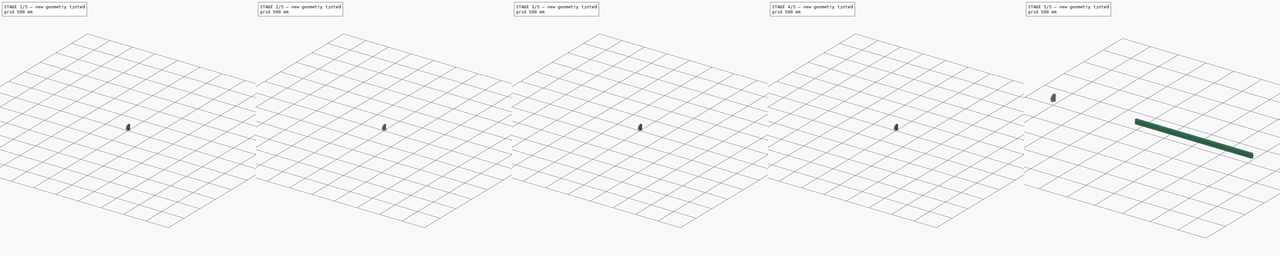
[diagram: build sequence overview — one tinted view per stage of 5, left to right]
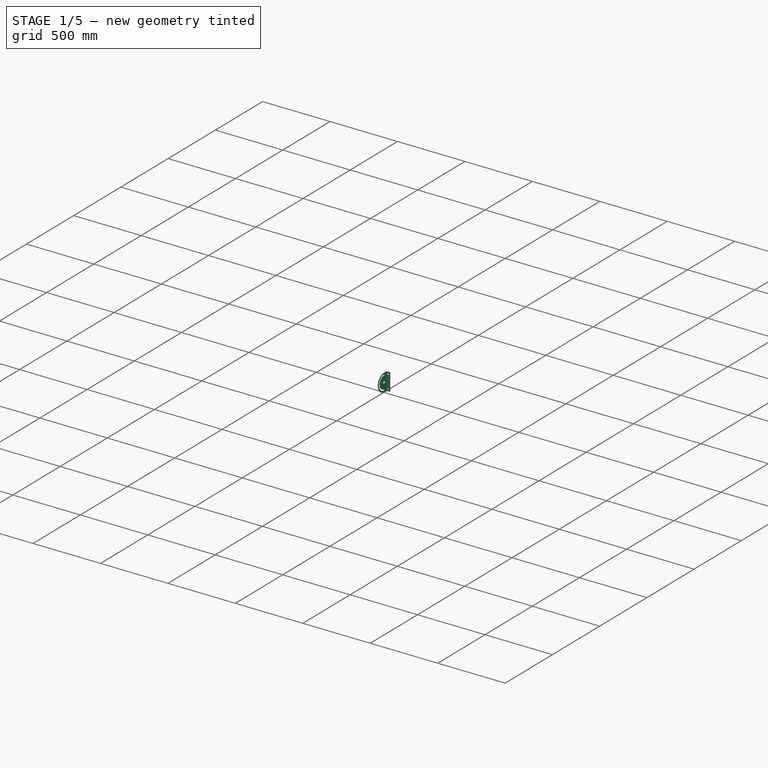
[diagram: stage 1 of 5 — iso view after this stage's code; geometry added in this stage tinted green]
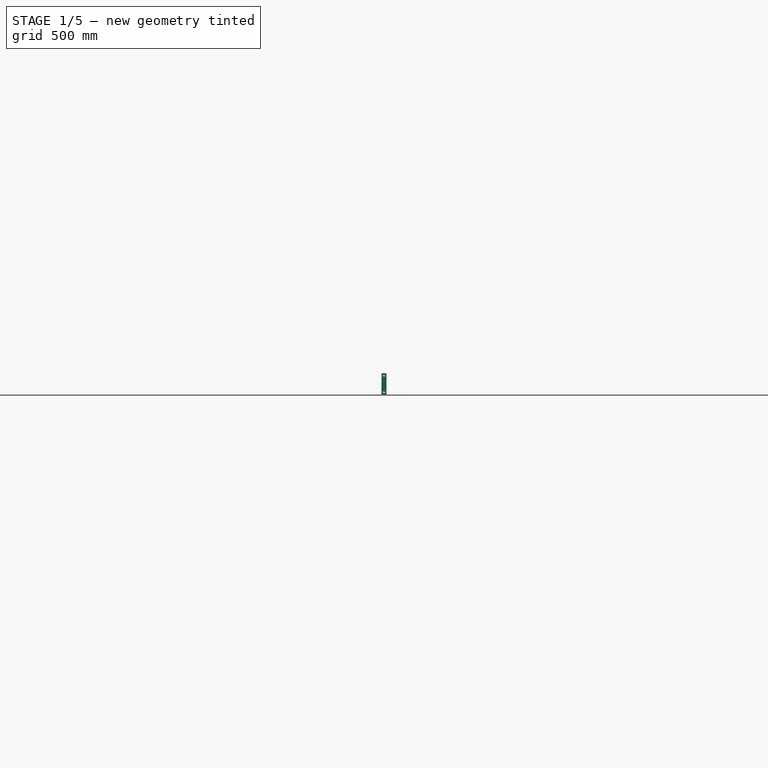
[diagram: stage 1 of 5 — front view after this stage's code; geometry added in this stage tinted green]
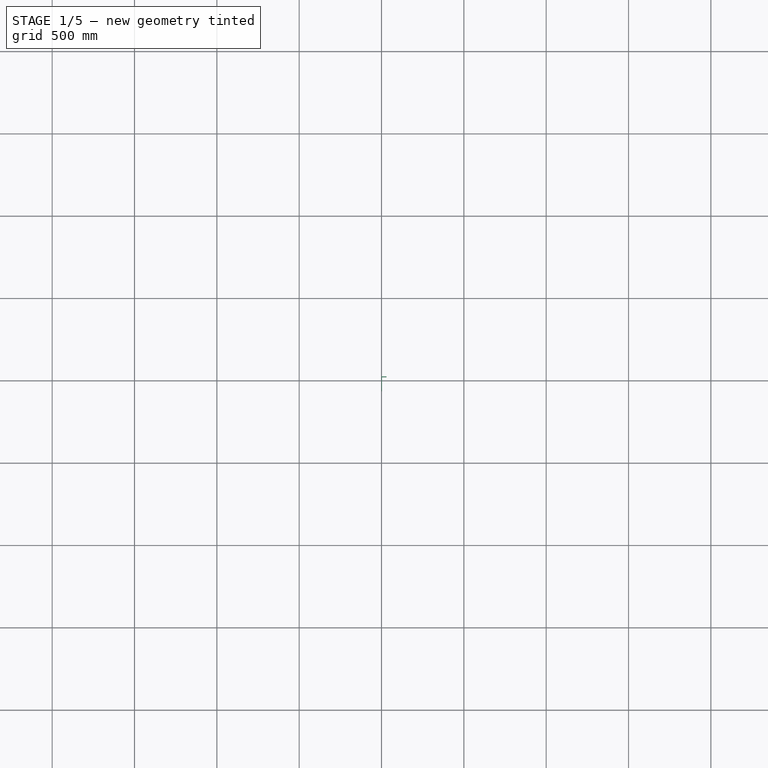
[diagram: stage 1 of 5 — top view after this stage's code; geometry added in this stage tinted green]
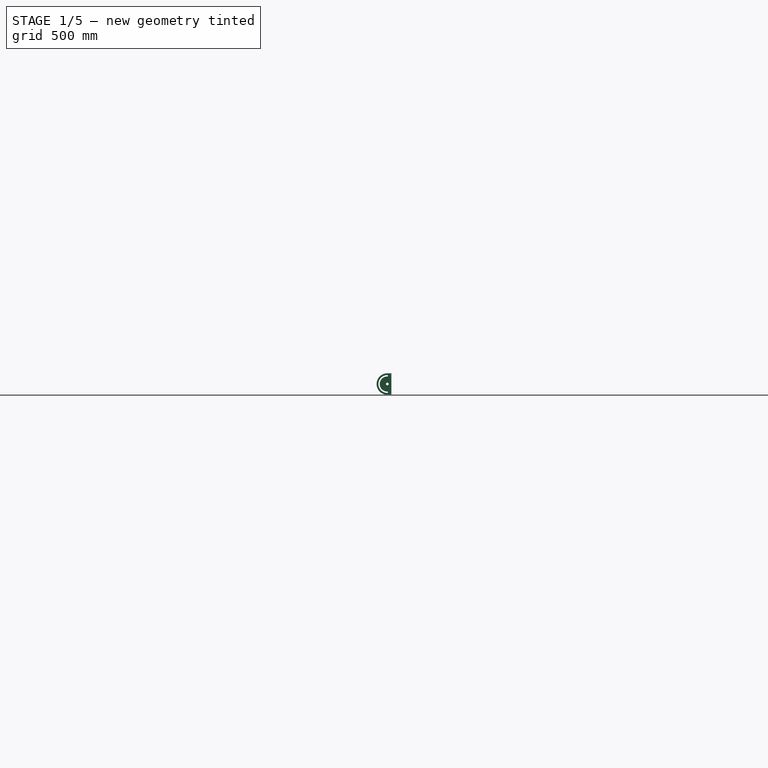
[diagram: stage 1 of 5 — right view after this stage's code; geometry added in this stage tinted green]
FCSTD DOCUMENT  (FreeCAD 0.19R24291 (Git))
Label: Stand-alone
License: All rights reserved
LicenseURL: http://en.wikipedia.org/wiki/All_rights_reserved
objects: Part::Feature×42, Sketcher::SketchObject×29, PartDesign::Fillet×24, PartDesign::Pad×15, PartDesign::Body×9, PartDesign::Pocket×8, App::Part×4, App::DocumentObjectGroup×3
note: 174 computed .brp shape members not serialized (recipe doc carries the construction recipe); baked Part::Feature solids carry a one-line shape summary decoded from their .brp

FEATURE [PartDesign::Body] Body010  label="Hinge-L"
  Group = -> [Sketch011,Sketch012,Sketch013,Pad010,Fillet,Sketch014,Pocket,Fillet001,Fillet002,Sketch015,Pad011,Sketch016,Pocket001,Fillet003,Fillet004,Fillet005,Fillet006,Fillet007,Fillet008,Sketch018,Pad,Fillet009,Fillet010,Sketch019,Pocket002,Sketch020,Sketch021,Pad013,Fillet011,Sketch022,Pocket003]
  Origin = -> Origin016
  Placement = pos=(-38.84,718.66,1023.83) rot=(0,0,1;3.14159rad)
  Tip = -> Pocket003
FEATURE [App::DocumentObjectGroup] Group  label="Left"
  Group = -> [Part__Feature,Part__Feature001,Accessories_for_aluminium_profiles098S080TD4045N,Accessories_for_aluminium_profiles098S080TD4045N001,Body001,Part__Feature010,Part__Feature012,Part__Feature011,Part__Feature015,Part__Feature016,Body002,Part__Feature017,Part__Feature018,Body011,Body010]
FEATURE [Sketcher::SketchObject] Sketch023
  FullyConstrained = true
  MapMode = 5
  Placement = pos=(0,0,0) rot=(0.57735,0.57735,0.57735;2.0944rad)
  Support = -> [YZ_Plane018]
  sketch-geometry (4):
    g0: LineSegment StartX=-2.49e-14 StartY=-65 StartZ=0 EndX=22.5 EndY=-65 EndZ=0
    g1: LineSegment StartX=22.5 StartY=-65 StartZ=0 EndX=22.5 EndY=65 EndZ=0
    g2: LineSegment StartX=22.5 StartY=65 StartZ=0 EndX=-2.49e-14 EndY=65 EndZ=0
    g3: LineSegment StartX=-2.49e-14 StartY=65 StartZ=0 EndX=-2.49e-14 EndY=-65 EndZ=0
  constraints (12):
    c: Coincident(g0,g1)
    c: Coincident(g1,g2)
    c: Coincident(g2,g3)
    c: Coincident(g3,g0)
    c: Horizontal(g0)
    c: Horizontal(g2)
    c: Vertical(g1)
    c: Vertical(g3)
    c: PointOnObject(g0,g-2)
    c: DistanceX(g2,g1) = 22.5
    c: DistanceY(g0,g-1) = 65
    c: DistanceY(g-1,g1) = 65
FEATURE [Sketcher::SketchObject] Sketch024
  FullyConstrained = true
  MapMode = 5
  Placement = pos=(0,0,0) rot=(0.57735,0.57735,0.57735;2.0944rad)
  Support = -> [YZ_Plane018]
  sketch-geometry (1):
    g0: ArcOfCircle CenterX=0 CenterY=0 CenterZ=0 NormalX=0 NormalY=0 NormalZ=1 AngleXU=0 Radius=65 StartAngle=1.5708 EndAngle=4.71239
  constraints (4):
    c: Coincident(g0,g-1)
    c: PointOnObject(g0,g-2)
    c: PointOnObject(g0,g-2)
    c: Radius(g0) = 65
FEATURE [Sketcher::SketchObject] Sketch025
  FullyConstrained = true
  Placement = pos=(0,0,0) rot=(0.57735,0.57735,0.57735;2.0944rad)
  sketch-geometry (5):
    g0: LineSegment StartX=-2.49e-14 StartY=-65 StartZ=0 EndX=22.5 EndY=-65 EndZ=0
    g1: LineSegment StartX=22.5 StartY=-65 StartZ=0 EndX=22.5 EndY=65 EndZ=0
    g2: LineSegment StartX=22.5 StartY=65 StartZ=0 EndX=-2.49e-14 EndY=65 EndZ=0
    g3: LineSegment StartX=-2.49e-14 StartY=65 StartZ=0 EndX=-2.49e-14 EndY=-65 EndZ=0
    g4: ArcOfCircle CenterX=0 CenterY=0 CenterZ=0 NormalX=0 NormalY=0 NormalZ=1 AngleXU=0 Radius=65 StartAngle=1.5708 EndAngle=4.71239
  constraints (16):
    c: Coincident(g0,g1)
    c: Coincident(g1,g2)
    c: Coincident(g2,g3)
    c: Coincident(g3,g0)
    c: Horizontal(g0)
    c: Horizontal(g2)
    c: Vertical(g1)
    c: Vertical(g3)
    c: PointOnObject(g0,g-2)
    c: DistanceX(g2,g1) = 22.5
    c: DistanceY(g0,g-1) = 65
    c: DistanceY(g-1,g1) = 65
    c: Coincident(g4,g-1)
    c: PointOnObject(g4,g-2)
    c: PointOnObject(g4,g-2)
    c: Radius(g4) = 65
FEATURE [PartDesign::Pad] Pad015
  Direction = (1,1,1)
  Length = 2.5
  Length2 = 100
  Placement = pos=(0,0,0) rot=(0.57735,0.57735,0.57735;2.0944rad)
  Profile = -> Sketch025
  Type = 0
FEATURE [PartDesign::Fillet] Fillet014
  Base = -> Pad015 [Face1]
  BaseFeature = -> Pad015
  Placement = pos=(0,0,0) rot=(0.57735,0.57735,0.57735;2.0944rad)
  Radius = 1
  SupportTransform = false
FEATURE [Sketcher::SketchObject] Sketch027
  FullyConstrained = true
  MapMode = 5
  Placement = pos=(2.5,-5e-16,5e-16) rot=(0.57735,0.57735,0.57735;2.0944rad)
  Support = -> [Fillet014]
  sketch-geometry (7):
    g0: Circle CenterX=0 CenterY=0 CenterZ=0 NormalX=0 NormalY=0 NormalZ=1 AngleXU=0 Radius=8.2
    g1: ArcOfCircle CenterX=0 CenterY=0 CenterZ=0 NormalX=0 NormalY=0 NormalZ=1 AngleXU=0 Radius=54.1 StartAngle=1.5708 EndAngle=4.71239
    g2: ArcOfCircle CenterX=0 CenterY=0 CenterZ=0 NormalX=0 NormalY=0 NormalZ=1 AngleXU=0 Radius=45.9 StartAngle=1.5708 EndAngle=4.71239
    g3: GeomPoint X=0 Y=50 Z=0
    g4: ArcOfCircle CenterX=0 CenterY=50 CenterZ=0 NormalX=0 NormalY=0 NormalZ=1 AngleXU=0 Radius=4.1 StartAngle=4.71239 EndAngle=7.85398
    g5: GeomPoint X=0 Y=-50 Z=0
    g6: ArcOfCircle CenterX=0 CenterY=-50 CenterZ=0 NormalX=0 NormalY=0 NormalZ=1 AngleXU=0 Radius=4.1 StartAngle=4.71239 EndAngle=7.85398
  constraints (18):
    c: Coincident(g0,g-1)
    c: Radius(g0) = 8.2
    c: Coincident(g1,g0)
    c: PointOnObject(g1,g-2)
    c: PointOnObject(g1,g-2)
    c: Radius(g1) = 54.1
    c: Coincident(g2,g0)
    c: PointOnObject(g2,g-2)
    c: PointOnObject(g2,g-2)
    c: Radius(g2) = 45.9
    c: PointOnObject(g3,g-2)
    c: Coincident(g4,g3)
    c: Coincident(g4,g1)
    c: Coincident(g4,g2)
    c: PointOnObject(g5,g-2)
    c: Coincident(g6,g5)
    c: Coincident(g6,g2)
    c: Coincident(g6,g1)
FEATURE [PartDesign::Pocket] Pocket004
  BaseFeature = -> Fillet014
  Length = 2.5
  Length2 = 100
  Placement = pos=(0,0,0) rot=(0.57735,0.57735,0.57735;2.0944rad)
  Profile = -> Sketch027
  Type = 0
FEATURE [PartDesign::Fillet] Fillet013
  Base = -> Pocket004 [Face15]
  BaseFeature = -> Pocket004
  Placement = pos=(0,0,0) rot=(0.57735,0.57735,0.57735;2.0944rad)
  Radius = 0.5
  SupportTransform = false
FEATURE [PartDesign::Fillet] Fillet015
  Base = -> Fillet013 [Face10]
  BaseFeature = -> Fillet013
  Placement = pos=(0,0,0) rot=(0.57735,0.57735,0.57735;2.0944rad)
  Radius = 0.5
  SupportTransform = false
FEATURE [Sketcher::SketchObject] Sketch026
  FullyConstrained = true
  MapMode = 5
  Placement = pos=(0,22.5,5e-15) rot=(-0.57735,-0.57735,-0.57735;2.0944rad)
  Support = -> [Fillet015]
  sketch-geometry (4):
    g0: LineSegment StartX=-65 StartY=0 StartZ=0 EndX=65 EndY=0 EndZ=0
    g1: LineSegment StartX=65 StartY=0 StartZ=0 EndX=65 EndY=30 EndZ=0
    g2: LineSegment StartX=65 StartY=30 StartZ=0 EndX=-65 EndY=30 EndZ=0
    g3: LineSegment StartX=-65 StartY=30 StartZ=0 EndX=-65 EndY=0 EndZ=0
  constraints (11):
    c: Coincident(g0,g1)
    c: Coincident(g1,g2)
    c: Coincident(g2,g3)
    c: Coincident(g3,g0)
    c: Horizontal(g0)
    c: Horizontal(g2)
    c: Vertical(g1)
    c: Vertical(g3)
    c: Symmetric(g0,g0,g-1)
    c: DistanceX(g0,g-1) = 65
    c: DistanceY(g0,g2) = 30
FEATURE [PartDesign::Pad] Pad016
  BaseFeature = -> Fillet015
  Direction = (1,1,1)
  Length = 2.5
  Length2 = 100
  Placement = pos=(0,0,0) rot=(0.57735,0.57735,0.57735;2.0944rad)
  Profile = -> Sketch026
  Type = 0
FEATURE [Sketcher::SketchObject] Sketch028
  FullyConstrained = true
  MapMode = 5
  Placement = pos=(6e-15,25,2.8e-15) rot=(0.57735,0.57735,0.57735;4.18879rad)
  Support = -> [Pad016]
  sketch-geometry (10):
    g0: GeomPoint X=-50 Y=11.85 Z=0
    g1: GeomPoint X=50 Y=11.85 Z=0
    g2: ArcOfCircle CenterX=-50 CenterY=11.85 CenterZ=0 NormalX=0 NormalY=0 NormalZ=1 AngleXU=0 Radius=3.15 StartAngle=3.14159 EndAngle=6.28319
    g3: ArcOfCircle CenterX=-50 CenterY=18.15 CenterZ=0 NormalX=0 NormalY=0 NormalZ=1 AngleXU=0 Radius=3.15 StartAngle=0 EndAngle=3.14159
    g4: LineSegment StartX=-46.85 StartY=11.85 StartZ=0 EndX=-46.85 EndY=18.15 EndZ=0
    g5: LineSegment StartX=-53.15 StartY=11.85 StartZ=0 EndX=-53.15 EndY=18.15 EndZ=0
    g6: ArcOfCircle CenterX=50 CenterY=11.85 CenterZ=0 NormalX=0 NormalY=0 NormalZ=1 AngleXU=0 Radius=3.15 StartAngle=3.14159 EndAngle=6.28319
    g7: ArcOfCircle CenterX=50 CenterY=18.15 CenterZ=0 NormalX=0 NormalY=0 NormalZ=1 AngleXU=0 Radius=3.15 StartAngle=4e-16 EndAngle=3.14159
    g8: LineSegment StartX=53.15 StartY=11.85 StartZ=0 EndX=53.15 EndY=18.15 EndZ=0
    g9: LineSegment StartX=46.85 StartY=11.85 StartZ=0 EndX=46.85 EndY=18.15 EndZ=0
  constraints (21):
    c: Symmetric(g0,g1,g-2)
    c: DistanceX(g0,g-1) = 50
    c: DistanceY(g-1,g0) = 11.85
    c: Tangent(g2,g5) = 1.5708
    c: Tangent(g2,g4) = -1.5708
    c: Tangent(g4,g3) = -1.5708
    c: Tangent(g5,g3) = 1.5708
    c: Vertical(g4)
    c: Equal(g2,g3)
    c: Coincident(g2,g0)
    c: Radius(g2) = 3.15
    c: DistanceY(g2,g3) = 6.3
    c: Tangent(g6,g9) = 1.5708
    c: Tangent(g6,g8) = -1.5708
    c: Tangent(g8,g7) = -1.5708
    c: Tangent(g9,g7) = 1.5708
    c: Vertical(g8)
    c: Equal(g6,g7)
    c: Coincident(g6,g1)
    c: Radius(g6) = 3.15
    c: DistanceY(g6,g7) = 6.3
FEATURE [PartDesign::Pocket] Pocket005
  BaseFeature = -> Pad016
  Length = 2.5
  Length2 = 100
  Placement = pos=(0,0,0) rot=(0.57735,0.57735,0.57735;2.0944rad)
  Profile = -> Sketch028
  Type = 0
FEATURE [PartDesign::Fillet] Fillet020
  Base = -> Pocket005 [Face23]
  BaseFeature = -> Pocket005
  Placement = pos=(0,0,0) rot=(0.57735,0.57735,0.57735;2.0944rad)
  Radius = 0.5
  SupportTransform = false
FEATURE [PartDesign::Fillet] Fillet021
  Base = -> Fillet020 [Face13]
  BaseFeature = -> Fillet020
  Placement = pos=(0,0,0) rot=(0.57735,0.57735,0.57735;2.0944rad)
  Radius = 0.5
  SupportTransform = false
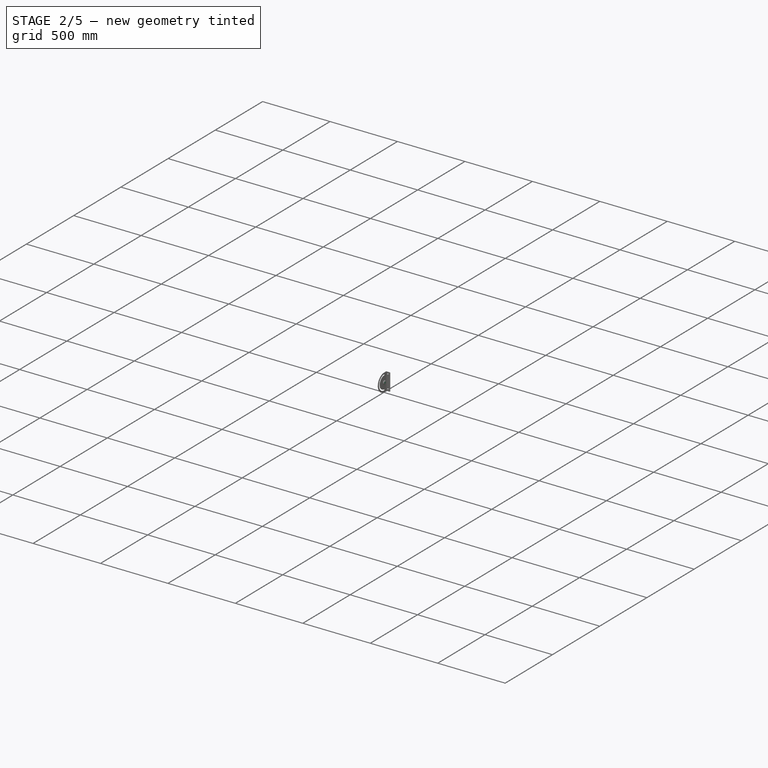
[diagram: stage 2 of 5 — iso view after this stage's code; geometry added in this stage tinted green]
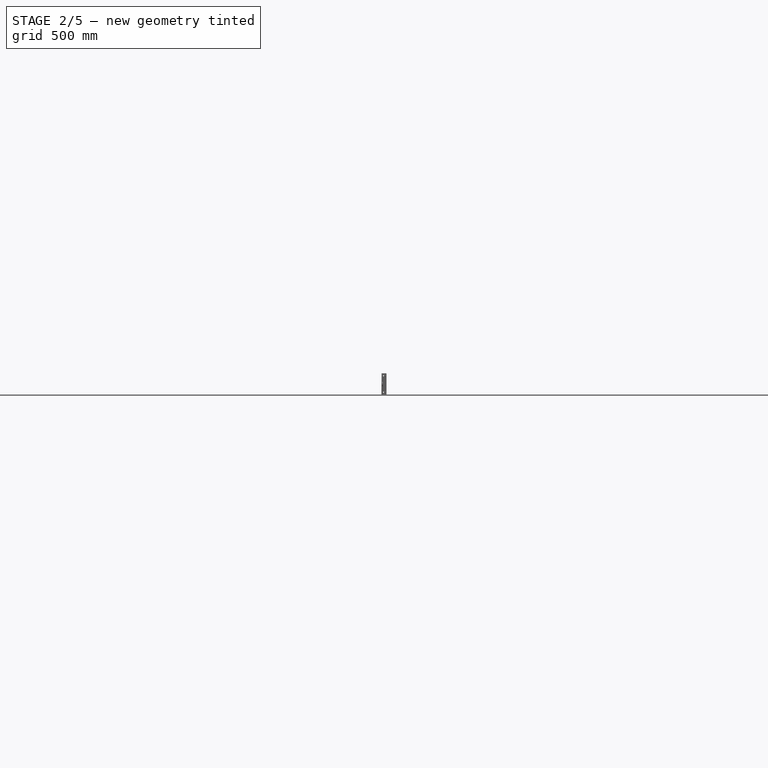
[diagram: stage 2 of 5 — front view after this stage's code; geometry added in this stage tinted green]
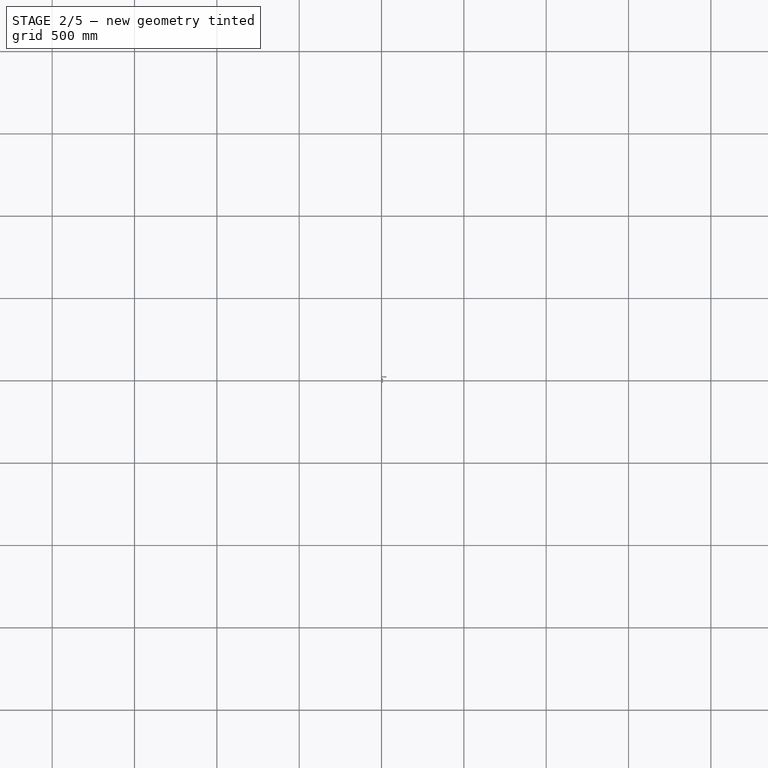
[diagram: stage 2 of 5 — top view after this stage's code; geometry added in this stage tinted green]
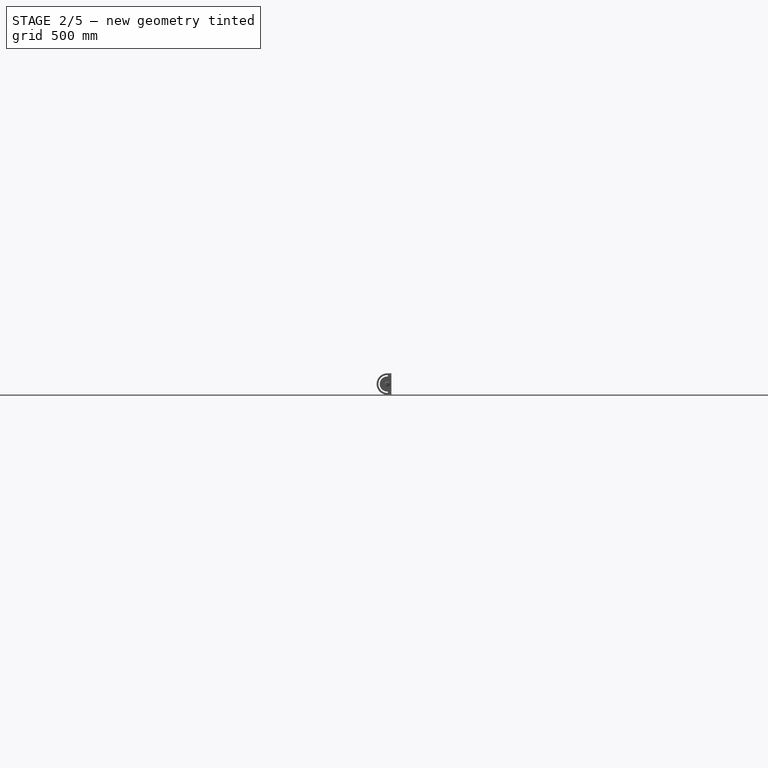
[diagram: stage 2 of 5 — right view after this stage's code; geometry added in this stage tinted green]
FEATURE [PartDesign::Fillet] Fillet012
  Base = -> Fillet021 [Edge38]
  BaseFeature = -> Fillet021
  Placement = pos=(0,0,0) rot=(0.57735,0.57735,0.57735;2.0944rad)
  Radius = 3
  SupportTransform = false
FEATURE [PartDesign::Fillet] Fillet016
  Base = -> Fillet012 [Edge26]
  BaseFeature = -> Fillet012
  Placement = pos=(0,0,0) rot=(0.57735,0.57735,0.57735;2.0944rad)
  Radius = 3
  SupportTransform = false
FEATURE [PartDesign::Fillet] Fillet022
  Base = -> Fillet016 [Face2]
  BaseFeature = -> Fillet016
  Placement = pos=(0,0,0) rot=(0.57735,0.57735,0.57735;2.0944rad)
  Radius = 1
  SupportTransform = false
FEATURE [PartDesign::Fillet] Fillet023
  Base = -> Fillet022 [Edge1]
  BaseFeature = -> Fillet022
  Placement = pos=(0,0,0) rot=(0.57735,0.57735,0.57735;2.0944rad)
  Radius = 1
  SupportTransform = false
FEATURE [Sketcher::SketchObject] Sketch030
  FullyConstrained = true
  MapMode = 5
  Placement = pos=(5.4e-15,22.5,2.5e-15) rot=(0.57735,0.57735,-0.57735;2.0944rad)
  Support = -> [Fillet023]
  sketch-geometry (2):
    g0: Circle CenterX=50 CenterY=20 CenterZ=0 NormalX=0 NormalY=0 NormalZ=1 AngleXU=0 Radius=5
    g1: Circle CenterX=-50 CenterY=20 CenterZ=0 NormalX=0 NormalY=0 NormalZ=1 AngleXU=0 Radius=5
  constraints (6):
    c: DistanceY(g-1,g0) = 20
    c: DistanceY(g-1,g1) = 20
    c: DistanceX(g-1,g0) = 50
    c: DistanceX(g1,g-1) = 50
    c: Radius(g1) = 5
    c: Radius(g0) = 5
FEATURE [PartDesign::Pad] Pad017
  BaseFeature = -> Fillet023
  Direction = (1,1,1)
  Length = 3
  Length2 = 100
  Placement = pos=(0,0,0) rot=(0.57735,0.57735,0.57735;2.0944rad)
  Profile = -> Sketch030
  Type = 0
FEATURE [PartDesign::Fillet] Fillet017
  Base = -> Pad017 [Edge164]
  BaseFeature = -> Pad017
  Placement = pos=(0,0,0) rot=(0.57735,0.57735,0.57735;2.0944rad)
  Radius = 2.5
  SupportTransform = false
FEATURE [PartDesign::Fillet] Fillet018
  Base = -> Fillet017 [Edge59]
  BaseFeature = -> Fillet017
  Placement = pos=(0,0,0) rot=(0.57735,0.57735,0.57735;2.0944rad)
  Radius = 2.5
  SupportTransform = false
FEATURE [Sketcher::SketchObject] Sketch029
  FullyConstrained = false
  MapMode = 5
  Placement = pos=(0,19.5,0) rot=(0.57735,0.57735,-0.57735;2.0944rad)
  Support = -> [Fillet018]
  sketch-geometry (14):
    g0: LineSegment StartX=51.6885 StartY=21.8518 StartZ=0 EndX=49.2423 EndY=22.3676 EndZ=0
    g1: LineSegment StartX=49.2423 StartY=22.3676 StartZ=0 EndX=47.5725 EndY=20.507 EndZ=0
    g2: LineSegment StartX=47.5725 StartY=20.507 StartZ=0 EndX=48.3489 EndY=18.1307 EndZ=0
    g3: LineSegment StartX=48.3489 StartY=18.1307 StartZ=0 EndX=50.7951 EndY=17.6149 EndZ=0
    g4: LineSegment StartX=50.7951 StartY=17.6149 StartZ=0 EndX=52.4649 EndY=19.4754 EndZ=0
    g5: LineSegment StartX=52.4649 StartY=19.4754 StartZ=0 EndX=51.6885 EndY=21.8518 EndZ=0
    g6: Circle CenterX=50.0187 CenterY=19.9912 CenterZ=0 NormalX=0 NormalY=0 NormalZ=1 AngleXU=0 Radius=2.5
    g7: LineSegment StartX=-48.0425 StartY=21.5264 StartZ=0 EndX=-50.368 EndY=22.444 EndZ=0
    g8: LineSegment StartX=-50.368 StartY=22.444 StartZ=0 EndX=-52.3254 EndY=20.8887 EndZ=0
    g9: LineSegment StartX=-52.3254 StartY=20.8887 StartZ=0 EndX=-51.9572 EndY=18.416 EndZ=0
    g10: LineSegment StartX=-51.9572 StartY=18.416 StartZ=0 EndX=-49.6317 EndY=17.4985 EndZ=0
    g11: LineSegment StartX=-49.6317 StartY=17.4985 StartZ=0 EndX=-47.6743 EndY=19.0537 EndZ=0
    g12: LineSegment StartX=-47.6743 StartY=19.0537 StartZ=0 EndX=-48.0425 EndY=21.5264 EndZ=0
    g13: Circle CenterX=-49.9998 CenterY=19.9712 CenterZ=0 NormalX=0 NormalY=0 NormalZ=1 AngleXU=0 Radius=2.5
  constraints (28):
    c: Coincident(g0,g1)
    c: Coincident(g1,g2)
    c: Coincident(g2,g3)
    c: Coincident(g3,g4)
    c: Coincident(g4,g5)
    c: Coincident(g5,g0)
    c: Equal(g0, g1-g5) x5
    c: PointOnObject(g0,g6)
    c: PointOnObject(g1,g6)
    c: PointOnObject(g2,g6)
    c: PointOnObject(g3,g6)
    c: PointOnObject(g4,g6)
    c: PointOnObject(g5,g6)
    c: Coincident(g7,g8)
    c: Coincident(g8,g9)
    c: Coincident(g9,g10)
    c: Coincident(g10,g11)
    c: Coincident(g11,g12)
    c: Coincident(g12,g7)
    c: Equal(g7, g8-g12) x5
    c: PointOnObject(g7,g13)
    c: PointOnObject(g8,g13)
    c: PointOnObject(g9,g13)
    c: PointOnObject(g10,g13)
    c: PointOnObject(g11,g13)
    c: PointOnObject(g12,g13)
    c: Radius(g6) = 2.5
    c: Radius(g13) = 2.5
FEATURE [PartDesign::Pocket] Pocket006
  BaseFeature = -> Fillet018
  Length = 2
  Length2 = 100
  Placement = pos=(0,0,0) rot=(0.57735,0.57735,0.57735;2.0944rad)
  Profile = -> Sketch029
  Type = 0
FEATURE [Sketcher::SketchObject] Sketch031
  FullyConstrained = true
  MapMode = 5
  Placement = pos=(2.5,-5e-16,5e-16) rot=(0.57735,0.57735,0.57735;2.0944rad)
  Support = -> [Pocket006]
  sketch-geometry (1):
    g0: Circle CenterX=0 CenterY=0 CenterZ=0 NormalX=0 NormalY=0 NormalZ=1 AngleXU=0 Radius=14
  constraints (2):
    c: Coincident(g0,g-1)
    c: Radius(g0) = 14
FEATURE [PartDesign::Pad] Pad014
  BaseFeature = -> Pocket006
  Direction = (1,1,1)
  Length = 6
  Length2 = 100
  Placement = pos=(0,0,0) rot=(0.57735,0.57735,0.57735;2.0944rad)
  Profile = -> Sketch031
  Type = 0
FEATURE [PartDesign::Fillet] Fillet019
  Base = -> Pad014 [Edge103]
  BaseFeature = -> Pad014
  Placement = pos=(0,0,0) rot=(0.57735,0.57735,0.57735;2.0944rad)
  Radius = 5.5
  SupportTransform = false
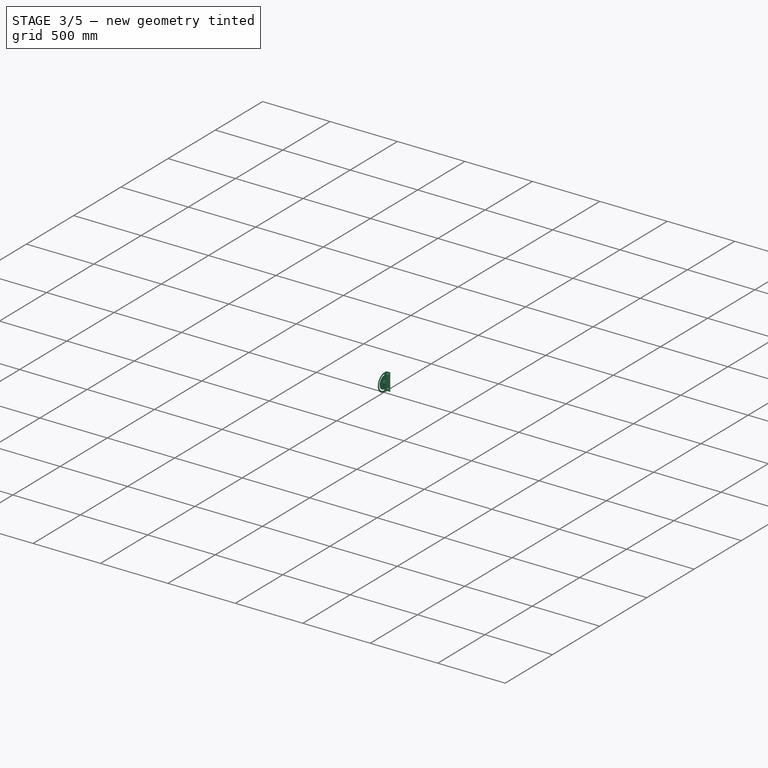
[diagram: stage 3 of 5 — iso view after this stage's code; geometry added in this stage tinted green]
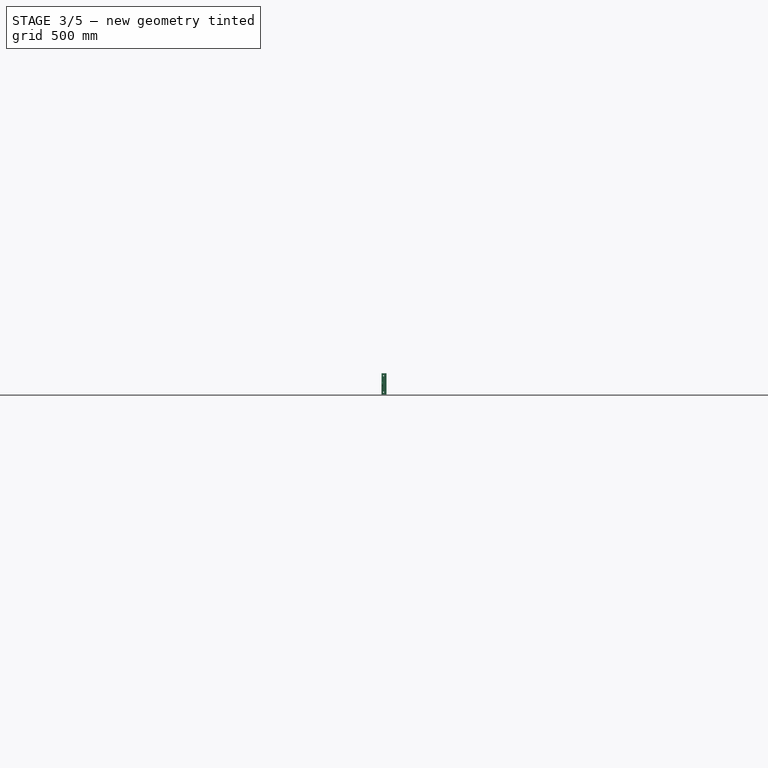
[diagram: stage 3 of 5 — front view after this stage's code; geometry added in this stage tinted green]
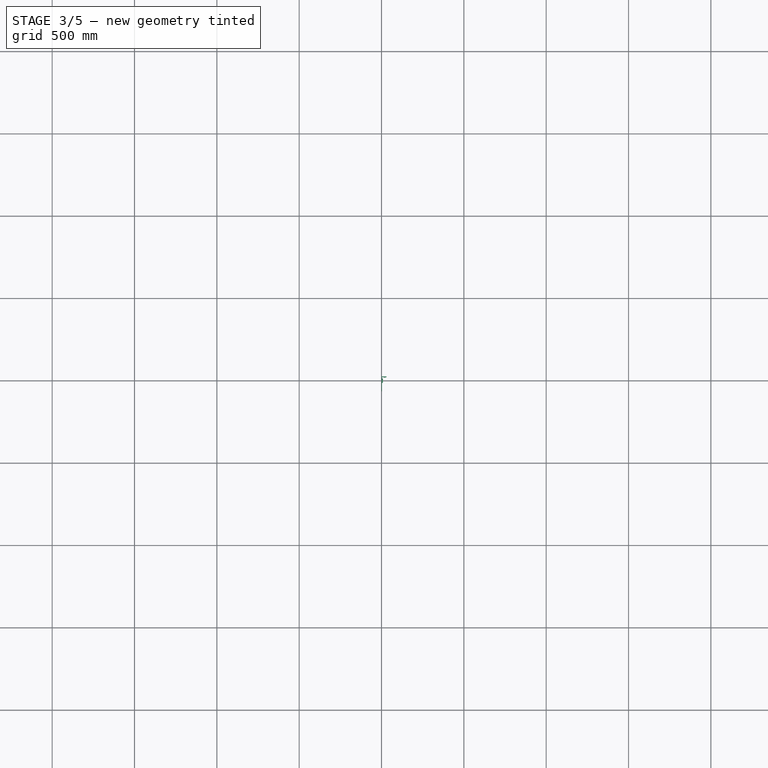
[diagram: stage 3 of 5 — top view after this stage's code; geometry added in this stage tinted green]
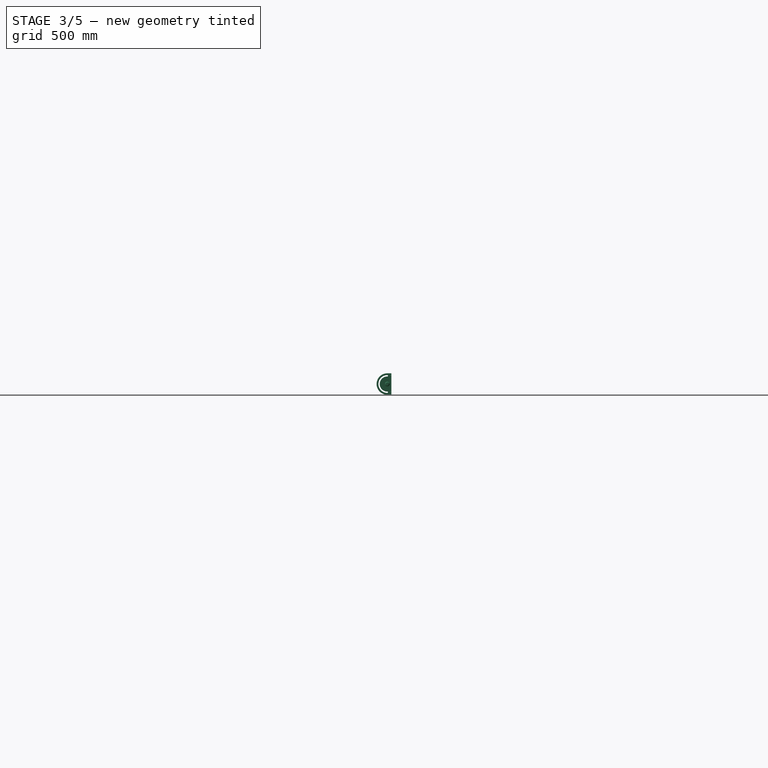
[diagram: stage 3 of 5 — right view after this stage's code; geometry added in this stage tinted green]
FEATURE [PartDesign::Body] Body009
  Group = -> [Sketch010,Pad009]
  Origin = -> Origin015
  Placement = pos=(-1539,634,450) rot=(0,0,1;0rad)
  Tip = -> Pad009
FEATURE [Part::Feature] Part__Feature036  label="093w404n014"
  Placement = pos=(-39,635,510) rot=(0.57735,0.57735,-0.57735;2.0944rad)
  shape: bbox 40.02 x 38 x 40.02 mm, 493 faces (baked)
FEATURE [Part::Feature] Part__Feature037  label="093w404n015"
  Placement = pos=(2048.7,635,510) rot=(1,0,0;1.5708rad)
  shape: bbox 40.02 x 38 x 40.02 mm, 493 faces (baked)
FEATURE [Sketcher::SketchObject] Sketch011
  FullyConstrained = true
  MapMode = 5
  Placement = pos=(0,0,0) rot=(0.57735,0.57735,0.57735;2.0944rad)
  Support = -> [YZ_Plane016]
  sketch-geometry (4):
    g0: LineSegment StartX=-2.49e-14 StartY=-65 StartZ=0 EndX=22.5 EndY=-65 EndZ=0
    g1: LineSegment StartX=22.5 StartY=-65 StartZ=0 EndX=22.5 EndY=65 EndZ=0
    g2: LineSegment StartX=22.5 StartY=65 StartZ=0 EndX=-2.49e-14 EndY=65 EndZ=0
    g3: LineSegment StartX=-2.49e-14 StartY=65 StartZ=0 EndX=-2.49e-14 EndY=-65 EndZ=0
  constraints (12):
    c: Coincident(g0,g1)
    c: Coincident(g1,g2)
    c: Coincident(g2,g3)
    c: Coincident(g3,g0)
    c: Horizontal(g0)
    c: Horizontal(g2)
    c: Vertical(g1)
    c: Vertical(g3)
    c: PointOnObject(g0,g-2)
    c: DistanceX(g2,g1) = 22.5
    c: DistanceY(g0,g-1) = 65
    c: DistanceY(g-1,g1) = 65
FEATURE [Sketcher::SketchObject] Sketch012
  FullyConstrained = true
  MapMode = 5
  Placement = pos=(0,0,0) rot=(0.57735,0.57735,0.57735;2.0944rad)
  Support = -> [YZ_Plane016]
  sketch-geometry (1):
    g0: ArcOfCircle CenterX=0 CenterY=0 CenterZ=0 NormalX=0 NormalY=0 NormalZ=1 AngleXU=0 Radius=65 StartAngle=1.5708 EndAngle=4.71239
  constraints (4):
    c: Coincident(g0,g-1)
    c: PointOnObject(g0,g-2)
    c: PointOnObject(g0,g-2)
    c: Radius(g0) = 65
FEATURE [Sketcher::SketchObject] Sketch013
  FullyConstrained = true
  Placement = pos=(0,0,0) rot=(0.57735,0.57735,0.57735;2.0944rad)
  sketch-geometry (5):
    g0: LineSegment StartX=-2.49e-14 StartY=-65 StartZ=0 EndX=22.5 EndY=-65 EndZ=0
    g1: LineSegment StartX=22.5 StartY=-65 StartZ=0 EndX=22.5 EndY=65 EndZ=0
    g2: LineSegment StartX=22.5 StartY=65 StartZ=0 EndX=-2.49e-14 EndY=65 EndZ=0
    g3: LineSegment StartX=-2.49e-14 StartY=65 StartZ=0 EndX=-2.49e-14 EndY=-65 EndZ=0
    g4: ArcOfCircle CenterX=0 CenterY=0 CenterZ=0 NormalX=0 NormalY=0 NormalZ=1 AngleXU=0 Radius=65 StartAngle=1.5708 EndAngle=4.71239
  constraints (16):
    c: Coincident(g0,g1)
    c: Coincident(g1,g2)
    c: Coincident(g2,g3)
    c: Coincident(g3,g0)
    c: Horizontal(g0)
    c: Horizontal(g2)
    c: Vertical(g1)
    c: Vertical(g3)
    c: PointOnObject(g0,g-2)
    c: DistanceX(g2,g1) = 22.5
    c: DistanceY(g0,g-1) = 65
    c: DistanceY(g-1,g1) = 65
    c: Coincident(g4,g-1)
    c: PointOnObject(g4,g-2)
    c: PointOnObject(g4,g-2)
    c: Radius(g4) = 65
FEATURE [PartDesign::Pad] Pad010
  Direction = (1,1,1)
  Length = 2.5
  Length2 = 100
  Placement = pos=(0,0,0) rot=(0.57735,0.57735,0.57735;2.0944rad)
  Profile = -> Sketch013
  Type = 0
FEATURE [PartDesign::Fillet] Fillet
  Base = -> Pad010 [Face1]
  BaseFeature = -> Pad010
  Placement = pos=(0,0,0) rot=(0.57735,0.57735,0.57735;2.0944rad)
  Radius = 1
  SupportTransform = false
FEATURE [Sketcher::SketchObject] Sketch014
  FullyConstrained = true
  MapMode = 5
  Placement = pos=(2.5,-6e-16,0) rot=(0.57735,0.57735,0.57735;2.0944rad)
  Support = -> [Fillet]
  sketch-geometry (7):
    g0: Circle CenterX=0 CenterY=0 CenterZ=0 NormalX=0 NormalY=0 NormalZ=1 AngleXU=0 Radius=8.2
    g1: ArcOfCircle CenterX=0 CenterY=0 CenterZ=0 NormalX=0 NormalY=0 NormalZ=1 AngleXU=0 Radius=54.1 StartAngle=1.5708 EndAngle=4.71239
    g2: ArcOfCircle CenterX=0 CenterY=0 CenterZ=0 NormalX=0 NormalY=0 NormalZ=1 AngleXU=0 Radius=45.9 StartAngle=1.5708 EndAngle=4.71239
    g3: GeomPoint X=0 Y=50 Z=0
    g4: ArcOfCircle CenterX=0 CenterY=50 CenterZ=0 NormalX=0 NormalY=0 NormalZ=1 AngleXU=0 Radius=4.1 StartAngle=4.71239 EndAngle=7.85398
    g5: GeomPoint X=0 Y=-50 Z=0
    g6: ArcOfCircle CenterX=0 CenterY=-50 CenterZ=0 NormalX=0 NormalY=0 NormalZ=1 AngleXU=0 Radius=4.1 StartAngle=4.71239 EndAngle=7.85398
  constraints (18):
    c: Coincident(g0,g-1)
    c: Radius(g0) = 8.2
    c: Coincident(g1,g0)
    c: PointOnObject(g1,g-2)
    c: PointOnObject(g1,g-2)
    c: Radius(g1) = 54.1
    c: Coincident(g2,g0)
    c: PointOnObject(g2,g-2)
    c: PointOnObject(g2,g-2)
    c: Radius(g2) = 45.9
    c: PointOnObject(g3,g-2)
    c: Coincident(g4,g3)
    c: Coincident(g4,g1)
    c: Coincident(g4,g2)
    c: PointOnObject(g5,g-2)
    c: Coincident(g6,g5)
    c: Coincident(g6,g2)
    c: Coincident(g6,g1)
FEATURE [PartDesign::Pocket] Pocket
  BaseFeature = -> Fillet
  Length = 2.5
  Length2 = 100
  Placement = pos=(0,0,0) rot=(0.57735,0.57735,0.57735;2.0944rad)
  Profile = -> Sketch014
  Type = 0
FEATURE [PartDesign::Fillet] Fillet001
  Base = -> Pocket [Face15]
  BaseFeature = -> Pocket
  Placement = pos=(0,0,0) rot=(0.57735,0.57735,0.57735;2.0944rad)
  Radius = 0.5
  SupportTransform = false
FEATURE [PartDesign::Fillet] Fillet002
  Base = -> Fillet001 [Face10]
  BaseFeature = -> Fillet001
  Placement = pos=(0,0,0) rot=(0.57735,0.57735,0.57735;2.0944rad)
  Radius = 0.5
  SupportTransform = false
FEATURE [Sketcher::SketchObject] Sketch015
  FullyConstrained = true
  MapMode = 5
  Placement = pos=(0,22.5,0) rot=(0.57735,0.57735,0.57735;4.18879rad)
  Support = -> [Fillet002]
  sketch-geometry (4):
    g0: LineSegment StartX=-65 StartY=0 StartZ=0 EndX=65 EndY=0 EndZ=0
    g1: LineSegment StartX=65 StartY=0 StartZ=0 EndX=65 EndY=30 EndZ=0
    g2: LineSegment StartX=65 StartY=30 StartZ=0 EndX=-65 EndY=30 EndZ=0
    g3: LineSegment StartX=-65 StartY=30 StartZ=0 EndX=-65 EndY=0 EndZ=0
  constraints (11):
    c: Coincident(g0,g1)
    c: Coincident(g1,g2)
    c: Coincident(g2,g3)
    c: Coincident(g3,g0)
    c: Horizontal(g0)
    c: Horizontal(g2)
    c: Vertical(g1)
    c: Vertical(g3)
    c: Symmetric(g0,g0,g-1)
    c: DistanceX(g0,g-1) = 65
    c: DistanceY(g0,g2) = 30
FEATURE [PartDesign::Pad] Pad011
  BaseFeature = -> Fillet002
  Direction = (1,1,1)
  Length = 2.5
  Length2 = 100
  Placement = pos=(0,0,0) rot=(0.57735,0.57735,0.57735;2.0944rad)
  Profile = -> Sketch015
  Type = 0
FEATURE [Sketcher::SketchObject] Sketch016
  FullyConstrained = true
  MapMode = 5
  Placement = pos=(4e-16,25,2.7e-15) rot=(0.57735,0.57735,0.57735;4.18879rad)
  Support = -> [Pad011]
  sketch-geometry (10):
    g0: GeomPoint X=-50 Y=11.85 Z=0
    g1: GeomPoint X=50 Y=11.85 Z=0
    g2: ArcOfCircle CenterX=-50 CenterY=11.85 CenterZ=0 NormalX=0 NormalY=0 NormalZ=1 AngleXU=0 Radius=3.15 StartAngle=3.14159 EndAngle=6.28319
    g3: ArcOfCircle CenterX=-50 CenterY=18.15 CenterZ=0 NormalX=0 NormalY=0 NormalZ=1 AngleXU=0 Radius=3.15 StartAngle=0 EndAngle=3.14159
    g4: LineSegment StartX=-46.85 StartY=11.85 StartZ=0 EndX=-46.85 EndY=18.15 EndZ=0
    g5: LineSegment StartX=-53.15 StartY=11.85 StartZ=0 EndX=-53.15 EndY=18.15 EndZ=0
    g6: ArcOfCircle CenterX=50 CenterY=11.85 CenterZ=0 NormalX=0 NormalY=0 NormalZ=1 AngleXU=0 Radius=3.15 StartAngle=3.14159 EndAngle=6.28319
    g7: ArcOfCircle CenterX=50 CenterY=18.15 CenterZ=0 NormalX=0 NormalY=0 NormalZ=1 AngleXU=0 Radius=3.15 StartAngle=4e-16 EndAngle=3.14159
    g8: LineSegment StartX=53.15 StartY=11.85 StartZ=0 EndX=53.15 EndY=18.15 EndZ=0
    g9: LineSegment StartX=46.85 StartY=11.85 StartZ=0 EndX=46.85 EndY=18.15 EndZ=0
  constraints (21):
    c: Symmetric(g0,g1,g-2)
    c: DistanceX(g0,g-1) = 50
    c: DistanceY(g-1,g0) = 11.85
    c: Tangent(g2,g5) = 1.5708
    c: Tangent(g2,g4) = -1.5708
    c: Tangent(g4,g3) = -1.5708
    c: Tangent(g5,g3) = 1.5708
    c: Vertical(g4)
    c: Equal(g2,g3)
    c: Coincident(g2,g0)
    c: Radius(g2) = 3.15
    c: DistanceY(g2,g3) = 6.3
    c: Tangent(g6,g9) = 1.5708
    c: Tangent(g6,g8) = -1.5708
    c: Tangent(g8,g7) = -1.5708
    c: Tangent(g9,g7) = 1.5708
    c: Vertical(g8)
    c: Equal(g6,g7)
    c: Coincident(g6,g1)
    c: Radius(g6) = 3.15
    c: DistanceY(g6,g7) = 6.3
FEATURE [PartDesign::Pocket] Pocket001
  BaseFeature = -> Pad011
  Length = 2.5
  Length2 = 100
  Placement = pos=(0,0,0) rot=(0.57735,0.57735,0.57735;2.0944rad)
  Profile = -> Sketch016
  Type = 0
FEATURE [PartDesign::Fillet] Fillet003
  Base = -> Pocket001 [Face23]
  BaseFeature = -> Pocket001
  Placement = pos=(0,0,0) rot=(0.57735,0.57735,0.57735;2.0944rad)
  Radius = 0.5
  SupportTransform = false
FEATURE [Sketcher::SketchObject] Sketch032
  FullyConstrained = true
  MapMode = 5
  Placement = pos=(0,0,0) rot=(0.57735,0.57735,0.57735;2.0944rad)
  Support = -> [YZ_Plane018]
FEATURE [Sketcher::SketchObject] Sketch033
  FullyConstrained = false
  MapMode = 5
  Placement = pos=(8.5,0,-8.4e-15) rot=(0.57735,0.57735,0.57735;2.0944rad)
  Support = -> [Fillet019]
  sketch-geometry (7):
    g0: LineSegment StartX=6.65766 StartY=4.43572 StartZ=0 EndX=-0.512616 EndY=7.98356 EndZ=0
    g1: LineSegment StartX=-0.512616 StartY=7.98356 StartZ=0 EndX=-7.17027 EndY=3.54784 EndZ=0
    g2: LineSegment StartX=-7.17027 StartY=3.54784 StartZ=0 EndX=-6.65766 EndY=-4.43572 EndZ=0
    g3: LineSegment StartX=-6.65766 StartY=-4.43572 StartZ=0 EndX=0.512616 EndY=-7.98356 EndZ=0
    g4: LineSegment StartX=0.512616 StartY=-7.98356 StartZ=0 EndX=7.17027 EndY=-3.54784 EndZ=0
    g5: LineSegment StartX=7.17027 StartY=-3.54784 StartZ=0 EndX=6.65766 EndY=4.43572 EndZ=0
    g6: Circle CenterX=0 CenterY=0 CenterZ=0 NormalX=0 NormalY=0 NormalZ=1 AngleXU=0 Radius=8
  constraints (15):
    c: Coincident(g0,g1)
    c: Coincident(g1,g2)
    c: Coincident(g2,g3)
    c: Coincident(g3,g4)
    c: Coincident(g4,g5)
    c: Coincident(g5,g0)
    c: Equal(g0, g1-g5) x5
    c: PointOnObject(g0,g6)
    c: PointOnObject(g1,g6)
    c: PointOnObject(g2,g6)
    c: PointOnObject(g3,g6)
    c: PointOnObject(g4,g6)
    c: PointOnObject(g5,g6)
    c: Coincident(g6,g-1)
    c: Radius(g6) = 8
FEATURE [PartDesign::Pocket] Pocket007
  BaseFeature = -> Fillet019
  Length = 5
  Length2 = 100
  Placement = pos=(0,0,0) rot=(0.57735,0.57735,0.57735;2.0944rad)
  Profile = -> Sketch033
  Type = 0
FEATURE [PartDesign::Body] Body012  label="Hinge-R"
  Group = -> [Sketch023,Sketch024,Sketch025,Pad015,Fillet014,Sketch027,Pocket004,Fillet013,Fillet015,Sketch026,Pad016,Sketch028,Pocket005,Fillet020,Fillet021,Fillet012,Fillet016,Fillet022,Fillet023,Sketch030,Pad017,Fillet017,Fillet018,Sketch029,Pocket006,Sketch032,Sketch031,Pad014,Fillet019,Sketch033,Pocket007]
  Origin = -> Origin018
  Placement = pos=(2049.5,719.3,1023.67) rot=(1,0,0;3.14159rad)
  Tip = -> Pocket007
FEATURE [App::DocumentObjectGroup] Group001  label="Right"
  Group = -> [Body003,Part__Feature019,Part__Feature020,Accessories_for_aluminium_profiles098S080TD4045N002,Accessories_for_aluminium_profiles098S080TD4045N003,Body004,Part__Feature029,Part__Feature031,Part__Feature030,Part__Feature032,Part__Feature033,Body005,Part__Feature034,Part__Feature035,Body012]
FEATURE [Part::Feature] Part__Feature038  label="093wa410"
  Placement = pos=(-18.241,635,530.772) rot=(0.384584,0.005365,0.923074;3.14603rad)
  shape: bbox 42.26 x 37 x 42.51 mm, 64 faces (baked)
FEATURE [Part::Feature] Part__Feature039  label="093wa411"
  Placement = pos=(2028.4,635,530.5) rot=(-0.38077,0.005361,0.924654;3.13714rad)
  shape: bbox 42.51 x 37 x 42.26 mm, 64 faces (baked)
FEATURE [Part::Feature] Part__Feature040  label="093w404n016"
  Placement = pos=(-38.9322,634.5,429.919) rot=(0,0.707107,-0.707107;3.14159rad)
  shape: bbox 40.02 x 38 x 40.02 mm, 493 faces (baked)
FEATURE [Part::Feature] Part__Feature041  label="093w404n017"
  Placement = pos=(2048.78,635,430.113) rot=(0.57735,-0.57735,0.57735;2.0944rad)
  shape: bbox 40.02 x 38 x 40.02 mm, 493 faces (baked)
FEATURE [Part::Feature] Part__Feature042  label="093wa412"
  Placement = pos=(2028,635,410) rot=(0.923085,-0.002217,-0.384589;3.15233rad)
  shape: bbox 42.26 x 37 x 42.51 mm, 64 faces (baked)
FEATURE [Part::Feature] Part__Feature043  label="093wa413"
  Placement = pos=(-18.2241,635,409.493) rot=(0.924661,0.003794,0.380773;3.14918rad)
  shape: bbox 42.57 x 37.24 x 42.12 mm, 64 faces (baked)
FEATURE [App::DocumentObjectGroup] Group002  label="Spar"
  Group = -> [Body009,Part__Feature037,Part__Feature036,Part__Feature038,Part__Feature039,Part__Feature040,Part__Feature041,Part__Feature042,Part__Feature043]
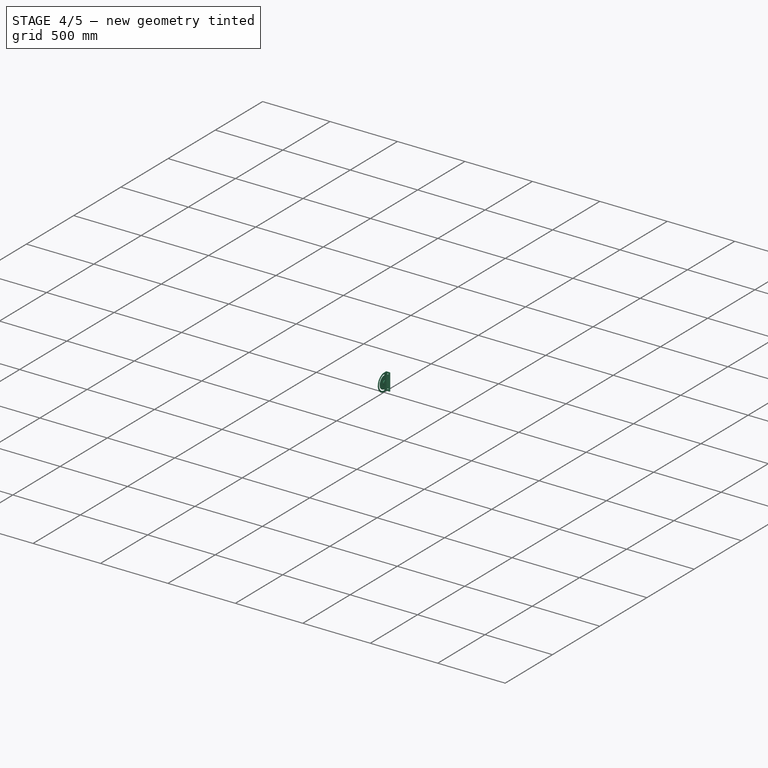
[diagram: stage 4 of 5 — iso view after this stage's code; geometry added in this stage tinted green]
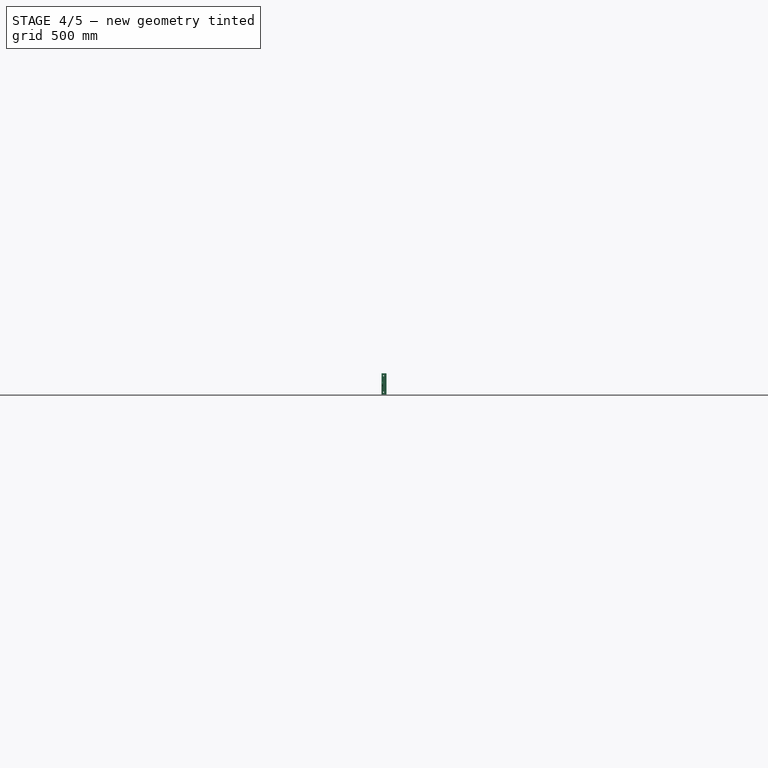
[diagram: stage 4 of 5 — front view after this stage's code; geometry added in this stage tinted green]
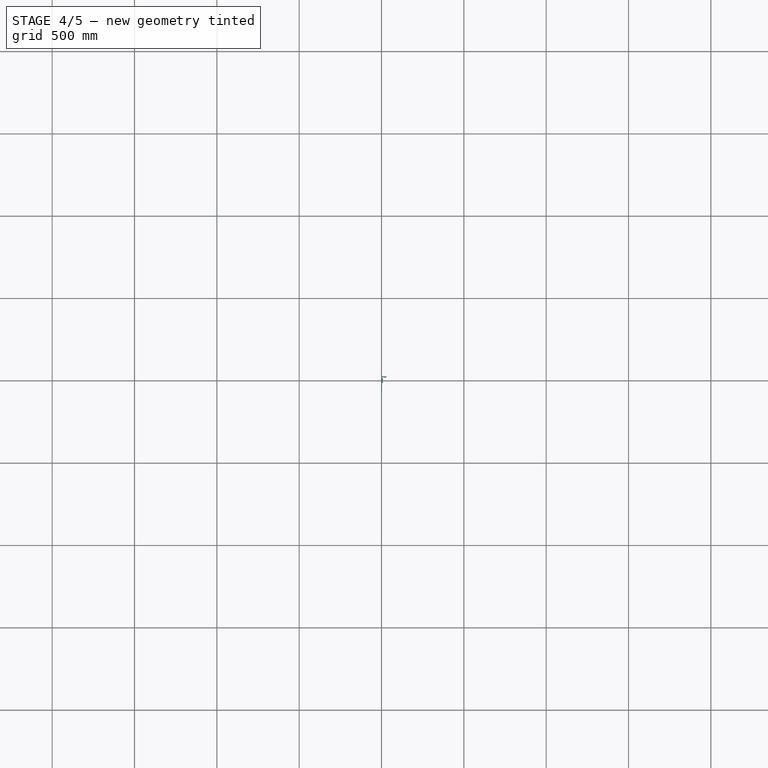
[diagram: stage 4 of 5 — top view after this stage's code; geometry added in this stage tinted green]
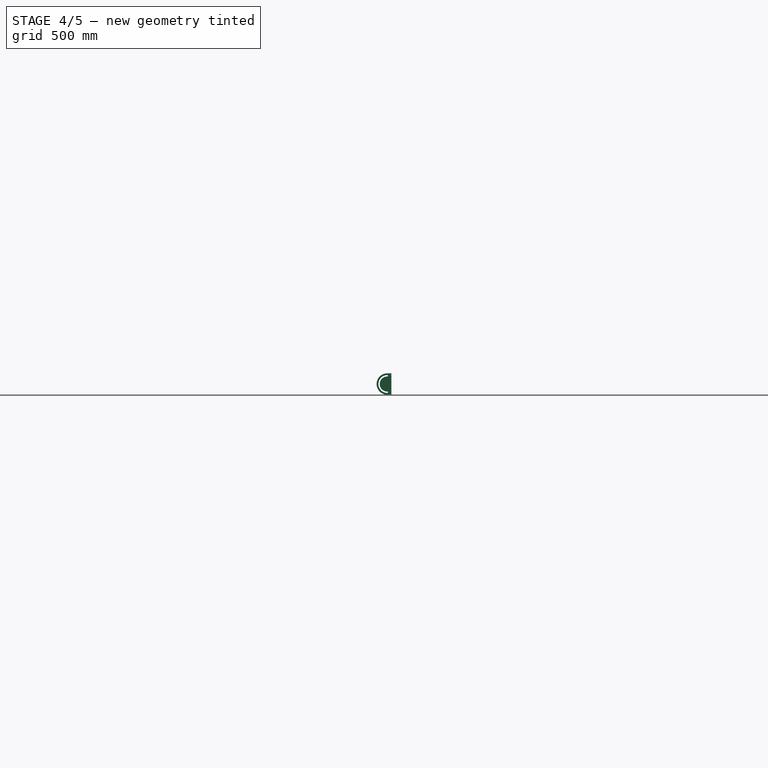
[diagram: stage 4 of 5 — right view after this stage's code; geometry added in this stage tinted green]
FEATURE [PartDesign::Fillet] Fillet004
  Base = -> Fillet003 [Face13]
  BaseFeature = -> Fillet003
  Placement = pos=(0,0,0) rot=(0.57735,0.57735,0.57735;2.0944rad)
  Radius = 0.5
  SupportTransform = false
FEATURE [PartDesign::Fillet] Fillet005
  Base = -> Fillet004 [Edge38]
  BaseFeature = -> Fillet004
  Placement = pos=(0,0,0) rot=(0.57735,0.57735,0.57735;2.0944rad)
  Radius = 3
  SupportTransform = false
FEATURE [PartDesign::Fillet] Fillet006
  Base = -> Fillet005 [Edge26]
  BaseFeature = -> Fillet005
  Placement = pos=(0,0,0) rot=(0.57735,0.57735,0.57735;2.0944rad)
  Radius = 3
  SupportTransform = false
FEATURE [PartDesign::Fillet] Fillet007
  Base = -> Fillet006 [Face2]
  BaseFeature = -> Fillet006
  Placement = pos=(0,0,0) rot=(0.57735,0.57735,0.57735;2.0944rad)
  Radius = 1
  SupportTransform = false
FEATURE [PartDesign::Fillet] Fillet008
  Base = -> Fillet007 [Edge1]
  BaseFeature = -> Fillet007
  Placement = pos=(0,0,0) rot=(0.57735,0.57735,0.57735;2.0944rad)
  Radius = 1
  SupportTransform = false
FEATURE [PartDesign::Body] Body011
  Group = -> [Sketch017,Pad012]
  Origin = -> Origin017
  Placement = pos=(-59,-1381,-56) rot=(0,0,1;1.5708rad)
  Tip = -> Pad012
FEATURE [Sketcher::SketchObject] Sketch018
  FullyConstrained = true
  MapMode = 5
  Placement = pos=(-4.7e-15,22.5,2.5e-15) rot=(0.57735,0.57735,-0.57735;2.0944rad)
  Support = -> [Fillet008]
  sketch-geometry (2):
    g0: Circle CenterX=50 CenterY=20 CenterZ=0 NormalX=0 NormalY=0 NormalZ=1 AngleXU=0 Radius=5
    g1: Circle CenterX=-50 CenterY=20 CenterZ=0 NormalX=0 NormalY=0 NormalZ=1 AngleXU=0 Radius=5
  constraints (6):
    c: DistanceY(g-1,g0) = 20
    c: DistanceY(g-1,g1) = 20
    c: DistanceX(g-1,g0) = 50
    c: DistanceX(g1,g-1) = 50
    c: Radius(g1) = 5
    c: Radius(g0) = 5
FEATURE [PartDesign::Pad] Pad
  BaseFeature = -> Fillet008
  Direction = (1,1,1)
  Length = 3
  Length2 = 100
  Placement = pos=(0,0,0) rot=(0.57735,0.57735,0.57735;2.0944rad)
  Profile = -> Sketch018
  Type = 0
FEATURE [PartDesign::Fillet] Fillet009
  Base = -> Pad [Edge164]
  BaseFeature = -> Pad
  Placement = pos=(0,0,0) rot=(0.57735,0.57735,0.57735;2.0944rad)
  Radius = 2.5
  SupportTransform = false
FEATURE [PartDesign::Fillet] Fillet010
  Base = -> Fillet009 [Edge59]
  BaseFeature = -> Fillet009
  Placement = pos=(0,0,0) rot=(0.57735,0.57735,0.57735;2.0944rad)
  Radius = 2.5
  SupportTransform = false
FEATURE [Sketcher::SketchObject] Sketch019
  FullyConstrained = false
  MapMode = 5
  Placement = pos=(-4.3e-15,19.5,0) rot=(0.57735,0.57735,-0.57735;2.0944rad)
  Support = -> [Fillet010]
  sketch-geometry (14):
    g0: LineSegment StartX=51.6885 StartY=21.8518 StartZ=0 EndX=49.2423 EndY=22.3676 EndZ=0
    g1: LineSegment StartX=49.2423 StartY=22.3676 StartZ=0 EndX=47.5725 EndY=20.507 EndZ=0
    g2: LineSegment StartX=47.5725 StartY=20.507 StartZ=0 EndX=48.3489 EndY=18.1307 EndZ=0
    g3: LineSegment StartX=48.3489 StartY=18.1307 StartZ=0 EndX=50.7951 EndY=17.6149 EndZ=0
    g4: LineSegment StartX=50.7951 StartY=17.6149 StartZ=0 EndX=52.4649 EndY=19.4754 EndZ=0
    g5: LineSegment StartX=52.4649 StartY=19.4754 StartZ=0 EndX=51.6885 EndY=21.8518 EndZ=0
    g6: Circle CenterX=50.0187 CenterY=19.9912 CenterZ=0 NormalX=0 NormalY=0 NormalZ=1 AngleXU=0 Radius=2.5
    g7: LineSegment StartX=-48.0425 StartY=21.5264 StartZ=0 EndX=-50.368 EndY=22.444 EndZ=0
    g8: LineSegment StartX=-50.368 StartY=22.444 StartZ=0 EndX=-52.3254 EndY=20.8887 EndZ=0
    g9: LineSegment StartX=-52.3254 StartY=20.8887 StartZ=0 EndX=-51.9572 EndY=18.416 EndZ=0
    g10: LineSegment StartX=-51.9572 StartY=18.416 StartZ=0 EndX=-49.6317 EndY=17.4985 EndZ=0
    g11: LineSegment StartX=-49.6317 StartY=17.4985 StartZ=0 EndX=-47.6743 EndY=19.0537 EndZ=0
    g12: LineSegment StartX=-47.6743 StartY=19.0537 StartZ=0 EndX=-48.0425 EndY=21.5264 EndZ=0
    g13: Circle CenterX=-49.9998 CenterY=19.9712 CenterZ=0 NormalX=0 NormalY=0 NormalZ=1 AngleXU=0 Radius=2.5
  constraints (28):
    c: Coincident(g0,g1)
    c: Coincident(g1,g2)
    c: Coincident(g2,g3)
    c: Coincident(g3,g4)
    c: Coincident(g4,g5)
    c: Coincident(g5,g0)
    c: Equal(g0, g1-g5) x5
    c: PointOnObject(g0,g6)
    c: PointOnObject(g1,g6)
    c: PointOnObject(g2,g6)
    c: PointOnObject(g3,g6)
    c: PointOnObject(g4,g6)
    c: PointOnObject(g5,g6)
    c: Coincident(g7,g8)
    c: Coincident(g8,g9)
    c: Coincident(g9,g10)
    c: Coincident(g10,g11)
    c: Coincident(g11,g12)
    c: Coincident(g12,g7)
    c: Equal(g7, g8-g12) x5
    c: PointOnObject(g7,g13)
    c: PointOnObject(g8,g13)
    c: PointOnObject(g9,g13)
    c: PointOnObject(g10,g13)
    c: PointOnObject(g11,g13)
    c: PointOnObject(g12,g13)
    c: Radius(g6) = 2.5
    c: Radius(g13) = 2.5
FEATURE [PartDesign::Pocket] Pocket002
  BaseFeature = -> Fillet010
  Length = 2
  Length2 = 100
  Placement = pos=(0,0,0) rot=(0.57735,0.57735,0.57735;2.0944rad)
  Profile = -> Sketch019
  Type = 0
FEATURE [Sketcher::SketchObject] Sketch020
  FullyConstrained = true
  MapMode = 5
  Placement = pos=(0,0,0) rot=(0.57735,0.57735,0.57735;2.0944rad)
  Support = -> [YZ_Plane016]
FEATURE [Sketcher::SketchObject] Sketch021
  FullyConstrained = true
  MapMode = 5
  Placement = pos=(2.5,-6e-16,-2.8e-15) rot=(0.57735,0.57735,0.57735;2.0944rad)
  Support = -> [Pocket002]
  sketch-geometry (1):
    g0: Circle CenterX=0 CenterY=0 CenterZ=0 NormalX=0 NormalY=0 NormalZ=1 AngleXU=0 Radius=14
  constraints (2):
    c: Coincident(g0,g-1)
    c: Radius(g0) = 14
FEATURE [PartDesign::Pad] Pad013
  BaseFeature = -> Pocket002
  Direction = (1,1,1)
  Length = 6
  Length2 = 100
  Placement = pos=(0,0,0) rot=(0.57735,0.57735,0.57735;2.0944rad)
  Profile = -> Sketch021
  Type = 0
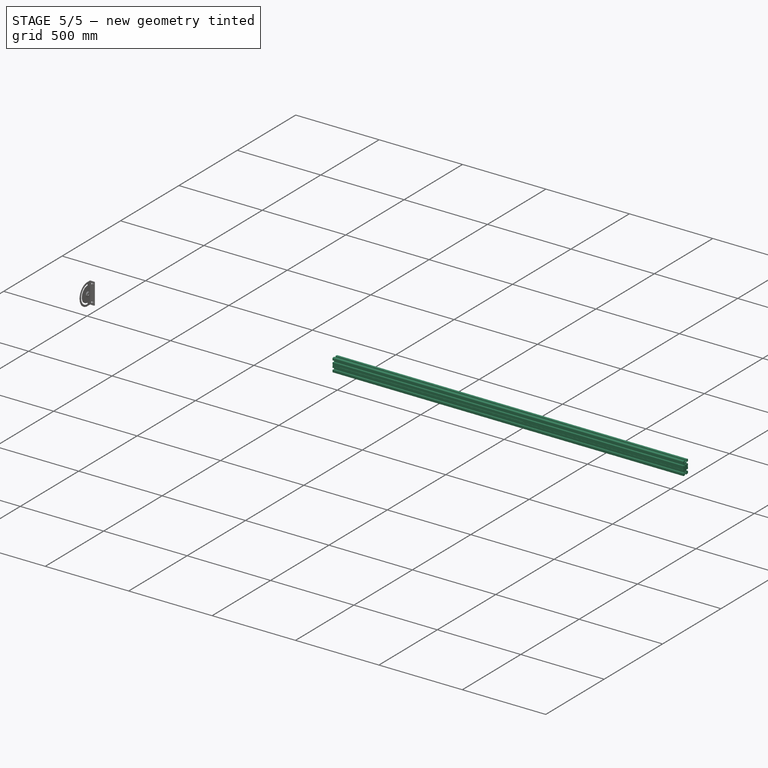
[diagram: stage 5 of 5 — iso view after this stage's code; geometry added in this stage tinted green]
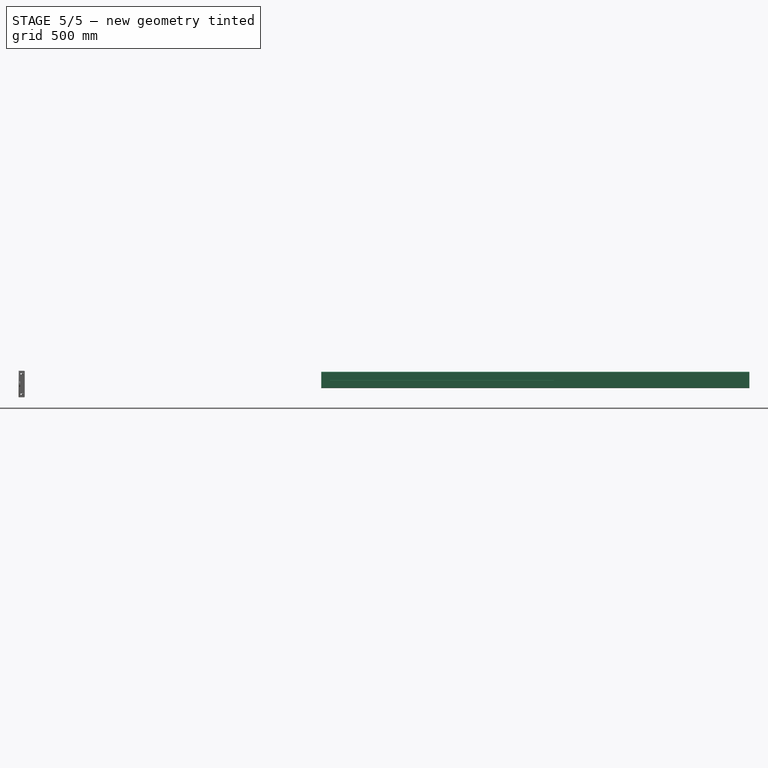
[diagram: stage 5 of 5 — front view after this stage's code; geometry added in this stage tinted green]
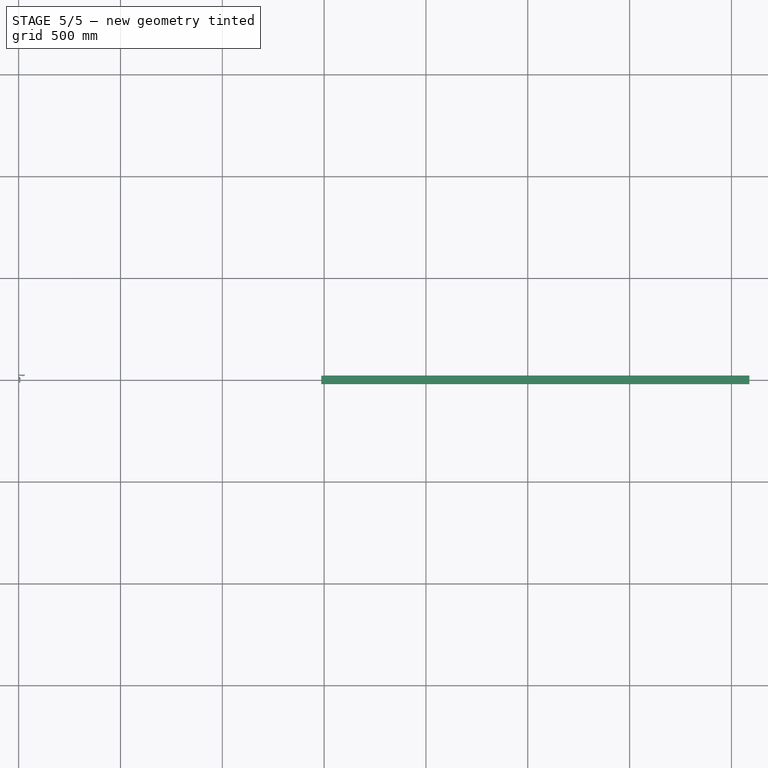
[diagram: stage 5 of 5 — top view after this stage's code; geometry added in this stage tinted green]
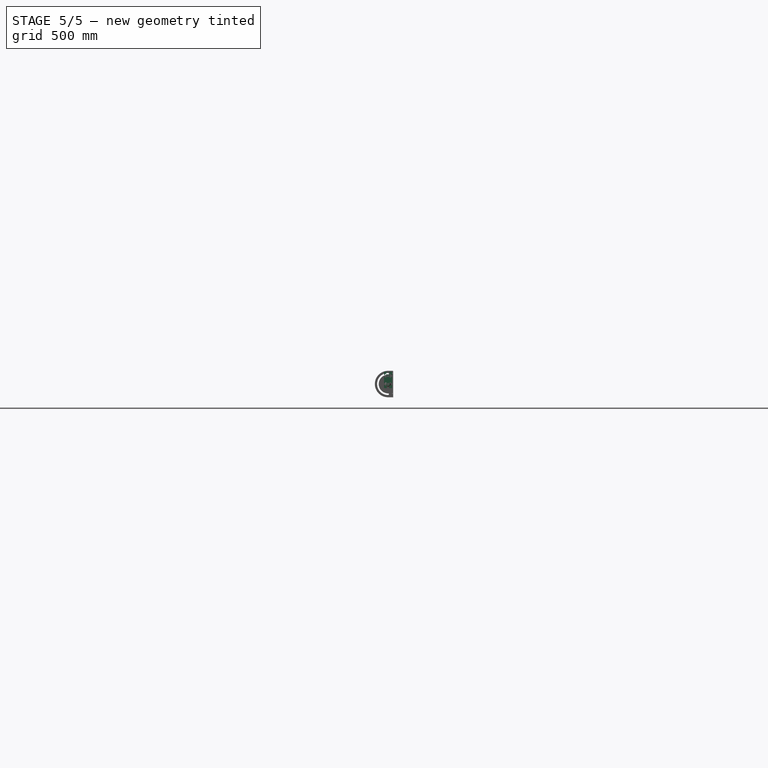
[diagram: stage 5 of 5 — right view after this stage's code; geometry added in this stage tinted green]
FEATURE [Part::Feature] Part__Feature  label="091137"
  Placement = pos=(-58.87,101.76,-36.23) rot=(-0.57735,0.57735,0.57735;2.09003rad)
  shape: bbox 40.19 x 12.7 x 80.09 mm, 80 faces (baked)
FEATURE [Part::Feature] Part__Feature001  label="091137001"
  Placement = pos=(-58.7686,1208.86,-36.23) rot=(-0.576379,-0.576379,0.579287;4.18733rad)
  shape: bbox 40.19 x 12.7 x 80.09 mm, 80 faces (baked)
FEATURE [Part::Feature] Part__Feature002  label="098S4045R.u.Tab_098S080D4045"
  Placement = pos=(0,-6e-15,-90.029) rot=(0,0,1;0rad)
  shape: bbox 61.71 x 85.05 x 166.1 mm, 1409 faces, 4 solids (baked)
FEATURE [Part::Feature] Part__Feature003  label="4DIN934M08M"
  Placement = pos=(-6.346e-12,-68.1,6.6e-14) rot=(0,0,1;0rad)
  shape: bbox 6.401 x 15.01 x 15.01 mm, 24 faces (baked)
FEATURE [Part::Feature] Part__Feature004  label="4DIN931M08048MS01"
  Placement = pos=(2.2878e-11,-68.1,0) rot=(0,0,1;0rad)
  shape: bbox 53.8 x 15.01 x 15.01 mm, 28 faces (baked)
FEATURE [Part::Feature] Part__Feature005  label="TPA_80_8K-FK_574186-214_selction no pls"
  Placement = pos=(0,-68.1,0) rot=(0,0,1;0rad)
  shape: bbox 35.6 x 162.1 x 162.9 mm, 532 faces, 2 solids (baked)
FEATURE [App::Part] Accessories_for_aluminium_profiles098S080TD4045N  label="Accessories for aluminium profiles098S080TD4045N"
  Group = -> [Part__Feature002,Part__Feature003,Part__Feature004,Part__Feature005]
  Origin = -> Origin001
  Placement = pos=(-67.5,130.22,-78.78) rot=(1,0,0;1.5708rad)
FEATURE [Part::Feature] Part__Feature006  label="098S4045R.u.Tab_098S080D4046"
  Placement = pos=(0,-6e-15,-90.029) rot=(0,0,1;0rad)
  shape: bbox 61.71 x 85.05 x 166.1 mm, 1409 faces, 4 solids (baked)
FEATURE [Part::Feature] Part__Feature007  label="4DIN934M08M001"
  Placement = pos=(-6.346e-12,-68.1,6.6e-14) rot=(0,0,1;0rad)
  shape: bbox 6.401 x 15.01 x 15.01 mm, 24 faces (baked)
FEATURE [Part::Feature] Part__Feature008  label="4DIN931M08048MS002"
  Placement = pos=(2.2878e-11,-68.1,0) rot=(0,0,1;0rad)
  shape: bbox 53.8 x 15.01 x 15.01 mm, 28 faces (baked)
FEATURE [Part::Feature] Part__Feature009  label="TPA_80_8K-FK_574186-214_selction no pls001"
  Placement = pos=(0,-68.1,0) rot=(0,0,1;0rad)
  shape: bbox 35.6 x 162.1 x 162.9 mm, 532 faces, 2 solids (baked)
FEATURE [App::Part] Accessories_for_aluminium_profiles098S080TD4045N001  label="Accessories for aluminium profiles098S080TD4045N001"
  Group = -> [Part__Feature006,Part__Feature007,Part__Feature008,Part__Feature009]
  Origin = -> Origin002
  Placement = pos=(-67.5,1100,-78.78) rot=(1,0,0;1.5708rad)
FEATURE [Sketcher::SketchObject] Sketch003
  FullyConstrained = false
  Placement = pos=(1485.6,-0.219498,5.28259e-08) rot=(0.707107,0,0.707107;3.14159rad)
  sketch-geometry (142):
    g0: LineSegment StartX=-14 StartY=5 StartZ=0 EndX=-18.5 EndY=5 EndZ=0
    g1: LineSegment StartX=-18.5 StartY=5 StartZ=0 EndX=-18.5 EndY=5.8 EndZ=0
    g2: LineSegment StartX=-18.5 StartY=5.8 StartZ=0 EndX=-20 EndY=5.8 EndZ=0
    g3: LineSegment StartX=-20 StartY=5.8 StartZ=0 EndX=-20 EndY=17 EndZ=0
    g4: ArcOfCircle CenterX=-17 CenterY=17 CenterZ=0 NormalX=-1e-16 NormalY=0 NormalZ=1 AngleXU=0 Radius=3 StartAngle=1.5708 EndAngle=3.14159
    g5: LineSegment StartX=-17 StartY=20 StartZ=0 EndX=-5.8 EndY=20 EndZ=0
    g6: LineSegment StartX=-5.8 StartY=20 StartZ=0 EndX=-5.8 EndY=18.5 EndZ=0
    g7: LineSegment StartX=-5.8 StartY=18.5 StartZ=0 EndX=-5 EndY=18.5 EndZ=0
    g8: LineSegment StartX=-5 StartY=18.5 StartZ=0 EndX=-5 EndY=14 EndZ=0
    g9: LineSegment StartX=-5 StartY=14 StartZ=0 EndX=-10.05 EndY=14 EndZ=0
    g10: LineSegment StartX=-10.05 StartY=14 StartZ=0 EndX=-10.05 EndY=11.4642 EndZ=0
    g11: LineSegment StartX=-10.05 StartY=11.4642 StartZ=0 EndX=-6.08579 EndY=7.5 EndZ=0
    g12: LineSegment StartX=-6.08579 StartY=7.5 StartZ=0 EndX=6.08579 EndY=7.5 EndZ=0
    g13: LineSegment StartX=6.08579 StartY=7.5 StartZ=0 EndX=10.05 EndY=11.4642 EndZ=0
    g14: LineSegment StartX=10.05 StartY=11.4642 StartZ=0 EndX=10.05 EndY=14 EndZ=0
    g15: LineSegment StartX=10.05 StartY=14 StartZ=0 EndX=5 EndY=14 EndZ=0
    g16: LineSegment StartX=5 StartY=14 StartZ=0 EndX=5 EndY=18.5 EndZ=0
    g17: LineSegment StartX=5 StartY=18.5 StartZ=0 EndX=5.8 EndY=18.5 EndZ=0
    g18: LineSegment StartX=5.8 StartY=18.5 StartZ=0 EndX=5.8 EndY=20 EndZ=0
    g19: LineSegment StartX=5.8 StartY=20 StartZ=0 EndX=14 EndY=20 EndZ=0
    g20: LineSegment StartX=14 StartY=20 StartZ=0 EndX=14 EndY=19 EndZ=0
    g21: LineSegment StartX=14 StartY=19 StartZ=0 EndX=26 EndY=19 EndZ=0
    g22: LineSegment StartX=26 StartY=19 StartZ=0 EndX=26 EndY=20 EndZ=0
    g23: LineSegment StartX=26 StartY=20 StartZ=0 EndX=34.2 EndY=20 EndZ=0
    g24: LineSegment StartX=34.2 StartY=20 StartZ=0 EndX=34.2 EndY=18.5 EndZ=0
    g25: LineSegment StartX=34.2 StartY=18.5 StartZ=0 EndX=35 EndY=18.5 EndZ=0
    g26: LineSegment StartX=35 StartY=18.5 StartZ=0 EndX=35 EndY=14 EndZ=0
    g27: LineSegment StartX=35 StartY=14 StartZ=0 EndX=29.95 EndY=14 EndZ=0
    g28: LineSegment StartX=29.95 StartY=14 StartZ=0 EndX=29.95 EndY=11.4642 EndZ=0
    g29: LineSegment StartX=29.95 StartY=11.4642 StartZ=0 EndX=33.9142 EndY=7.5 EndZ=0
    g30: LineSegment StartX=33.9142 StartY=7.5 StartZ=0 EndX=46.0858 EndY=7.5 EndZ=0
    g31: LineSegment StartX=46.0858 StartY=7.5 StartZ=0 EndX=50.05 EndY=11.4642 EndZ=0
    g32: LineSegment StartX=50.05 StartY=11.4642 StartZ=0 EndX=50.05 EndY=14 EndZ=0
    g33: LineSegment StartX=50.05 StartY=14 StartZ=0 EndX=45 EndY=14 EndZ=0
    g34: LineSegment StartX=45 StartY=14 StartZ=0 EndX=45 EndY=18.5 EndZ=0
    g35: LineSegment StartX=45 StartY=18.5 StartZ=0 EndX=45.8 EndY=18.5 EndZ=0
    g36: LineSegment StartX=45.8 StartY=18.5 StartZ=0 EndX=45.8 EndY=20 EndZ=0
    g37: LineSegment StartX=45.8 StartY=20 StartZ=0 EndX=57 EndY=20 EndZ=0
    g38: ArcOfCircle CenterX=57 CenterY=17 CenterZ=0 NormalX=-1e-16 NormalY=0 NormalZ=1 AngleXU=0 Radius=3 StartAngle=0 EndAngle=1.5708
    g39: LineSegment StartX=60 StartY=17 StartZ=0 EndX=60 EndY=5.8 EndZ=0
    g40: LineSegment StartX=60 StartY=5.8 StartZ=0 EndX=58.5 EndY=5.8 EndZ=0
    g41: LineSegment StartX=58.5 StartY=5.8 StartZ=0 EndX=58.5 EndY=5 EndZ=0
    g42: LineSegment StartX=58.5 StartY=5 StartZ=0 EndX=54 EndY=5 EndZ=0
    g43: LineSegment StartX=54 StartY=5 StartZ=0 EndX=54 EndY=10.05 EndZ=0
    g44: LineSegment StartX=54 StartY=10.05 StartZ=0 EndX=51.4642 EndY=10.05 EndZ=0
    g45: LineSegment StartX=51.4642 StartY=10.05 StartZ=0 EndX=47.5 EndY=6.08579 EndZ=0
    g46: LineSegment StartX=47.5 StartY=6.08579 StartZ=0 EndX=47.5 EndY=-6.08579 EndZ=0
    g47: LineSegment StartX=47.5 StartY=-6.08579 StartZ=0 EndX=51.4642 EndY=-10.05 EndZ=0
    g48: LineSegment StartX=51.4642 StartY=-10.05 StartZ=0 EndX=54 EndY=-10.05 EndZ=0
    g49: LineSegment StartX=54 StartY=-10.05 StartZ=0 EndX=54 EndY=-5 EndZ=0
    g50: LineSegment StartX=54 StartY=-5 StartZ=0 EndX=58.5 EndY=-5 EndZ=0
    g51: LineSegment StartX=58.5 StartY=-5 StartZ=0 EndX=58.5 EndY=-5.8 EndZ=0
    g52: LineSegment StartX=58.5 StartY=-5.8 StartZ=0 EndX=60 EndY=-5.8 EndZ=0
    g53: LineSegment StartX=60 StartY=-5.8 StartZ=0 EndX=60 EndY=-17 EndZ=0
    g54: ArcOfCircle CenterX=57 CenterY=-17 CenterZ=0 NormalX=-1e-16 NormalY=0 NormalZ=1 AngleXU=0 Radius=3 StartAngle=4.71239 EndAngle=6.28319
    g55: LineSegment StartX=57 StartY=-20 StartZ=0 EndX=45.8 EndY=-20 EndZ=0
    g56: LineSegment StartX=45.8 StartY=-20 StartZ=0 EndX=45.8 EndY=-18.5 EndZ=0
    g57: LineSegment StartX=45.8 StartY=-18.5 StartZ=0 EndX=45 EndY=-18.5 EndZ=0
    g58: LineSegment StartX=45 StartY=-18.5 StartZ=0 EndX=45 EndY=-14 EndZ=0
    g59: LineSegment StartX=45 StartY=-14 StartZ=0 EndX=50.05 EndY=-14 EndZ=0
    g60: LineSegment StartX=50.05 StartY=-14 StartZ=0 EndX=50.05 EndY=-11.4642 EndZ=0
    g61: LineSegment StartX=50.05 StartY=-11.4642 StartZ=0 EndX=46.0858 EndY=-7.5 EndZ=0
    g62: LineSegment StartX=46.0858 StartY=-7.5 StartZ=0 EndX=33.9142 EndY=-7.5 EndZ=0
    g63: LineSegment StartX=33.9142 StartY=-7.5 StartZ=0 EndX=29.95 EndY=-11.4642 EndZ=0
    g64: LineSegment StartX=29.95 StartY=-11.4642 StartZ=0 EndX=29.95 EndY=-14 EndZ=0
    g65: LineSegment StartX=29.95 StartY=-14 StartZ=0 EndX=35 EndY=-14 EndZ=0
    g66: LineSegment StartX=35 StartY=-14 StartZ=0 EndX=35 EndY=-18.5 EndZ=0
    g67: LineSegment StartX=35 StartY=-18.5 StartZ=0 EndX=34.2 EndY=-18.5 EndZ=0
    g68: LineSegment StartX=34.2 StartY=-18.5 StartZ=0 EndX=34.2 EndY=-20 EndZ=0
    g69: LineSegment StartX=34.2 StartY=-20 StartZ=0 EndX=26 EndY=-20 EndZ=0
    g70: LineSegment StartX=26 StartY=-20 StartZ=0 EndX=26 EndY=-19 EndZ=0
    g71: LineSegment StartX=26 StartY=-19 StartZ=0 EndX=14 EndY=-19 EndZ=0
    g72: LineSegment StartX=14 StartY=-19 StartZ=0 EndX=14 EndY=-20 EndZ=0
    g73: LineSegment StartX=14 StartY=-20 StartZ=0 EndX=5.8 EndY=-20 EndZ=0
    g74: LineSegment StartX=5.8 StartY=-20 StartZ=0 EndX=5.8 EndY=-18.5 EndZ=0
    g75: LineSegment StartX=5.8 StartY=-18.5 StartZ=0 EndX=5 EndY=-18.5 EndZ=0
    g76: LineSegment StartX=5 StartY=-18.5 StartZ=0 EndX=5 EndY=-14 EndZ=0
    g77: LineSegment StartX=5 StartY=-14 StartZ=0 EndX=10.05 EndY=-14 EndZ=0
    g78: LineSegment StartX=10.05 StartY=-14 StartZ=0 EndX=10.05 EndY=-11.4642 EndZ=0
    g79: LineSegment StartX=10.05 StartY=-11.4642 StartZ=0 EndX=6.08579 EndY=-7.5 EndZ=0
    g80: LineSegment StartX=6.08579 StartY=-7.5 StartZ=0 EndX=-6.08579 EndY=-7.5 EndZ=0
    g81: LineSegment StartX=-6.08579 StartY=-7.5 StartZ=0 EndX=-10.05 EndY=-11.4642 EndZ=0
    g82: LineSegment StartX=-10.05 StartY=-11.4642 StartZ=0 EndX=-10.05 EndY=-14 EndZ=0
    g83: LineSegment StartX=-10.05 StartY=-14 StartZ=0 EndX=-5 EndY=-14 EndZ=0
    g84: LineSegment StartX=-5 StartY=-14 StartZ=0 EndX=-5 EndY=-18.5 EndZ=0
    g85: LineSegment StartX=-5 StartY=-18.5 StartZ=0 EndX=-5.8 EndY=-18.5 EndZ=0
    g86: LineSegment StartX=-5.8 StartY=-18.5 StartZ=0 EndX=-5.8 EndY=-20 EndZ=0
    g87: LineSegment StartX=-5.8 StartY=-20 StartZ=0 EndX=-17 EndY=-20 EndZ=0
    g88: ArcOfCircle CenterX=-17 CenterY=-17 CenterZ=0 NormalX=-1e-16 NormalY=0 NormalZ=1 AngleXU=0 Radius=3 StartAngle=3.14159 EndAngle=4.71239
    g89: LineSegment StartX=-20 StartY=-17 StartZ=0 EndX=-20 EndY=-5.8 EndZ=0
    g90: LineSegment StartX=-20 StartY=-5.8 StartZ=0 EndX=-18.5 EndY=-5.8 EndZ=0
    g91: LineSegment StartX=-18.5 StartY=-5.8 StartZ=0 EndX=-18.5 EndY=-5 EndZ=0
    g92: LineSegment StartX=-18.5 StartY=-5 StartZ=0 EndX=-14 EndY=-5 EndZ=0
    g93: LineSegment StartX=-14 StartY=-5 StartZ=0 EndX=-14 EndY=-10.05 EndZ=0
    g94: LineSegment StartX=-14 StartY=-10.05 StartZ=0 EndX=-11.4642 EndY=-10.05 EndZ=0
    g95: LineSegment StartX=-11.4642 StartY=-10.05 StartZ=0 EndX=-7.5 EndY=-6.08579 EndZ=0
    g96: LineSegment StartX=-7.5 StartY=-6.08579 StartZ=0 EndX=-7.5 EndY=6.08579 EndZ=0
    g97: LineSegment StartX=-7.5 StartY=6.08579 StartZ=0 EndX=-11.4642 EndY=10.05 EndZ=0
    g98: LineSegment StartX=-11.4642 StartY=10.05 StartZ=0 EndX=-14 EndY=10.05 EndZ=0
    g99: LineSegment StartX=-14 StartY=10.05 StartZ=0 EndX=-14 EndY=5 EndZ=0
    g100: ArcOfCircle CenterX=1.649e-13 CenterY=0 CenterZ=0 NormalX=-1e-16 NormalY=0 NormalZ=1 AngleXU=0 Radius=5 StartAngle=5.87205 EndAngle=6.28319
    g101: ArcOfCircle CenterX=1.649e-13 CenterY=0 CenterZ=0 NormalX=-1e-16 NormalY=0 NormalZ=1 AngleXU=0 Radius=5 StartAngle=0 EndAngle=0.411138
    g102: LineSegment StartX=5.5 StartY=2.39792 StartZ=0 EndX=4.58333 EndY=1.99826 EndZ=0
    g103: LineSegment StartX=5.5 StartY=5.5 StartZ=0 EndX=5.5 EndY=2.39792 EndZ=0
    g104: LineSegment StartX=2.39792 StartY=5.5 StartZ=0 EndX=5.5 EndY=5.5 EndZ=0
    g105: LineSegment StartX=1.99826 StartY=4.58333 StartZ=0 EndX=2.39792 EndY=5.5 EndZ=0
    g106: ArcOfCircle CenterX=1.649e-13 CenterY=0 CenterZ=0 NormalX=-1e-16 NormalY=0 NormalZ=1 AngleXU=0 Radius=5 StartAngle=1.15966 EndAngle=1.98193
    g107: LineSegment StartX=-2.39792 StartY=5.5 StartZ=0 EndX=-1.99826 EndY=4.58333 EndZ=0
    g108: LineSegment StartX=-5.5 StartY=5.5 StartZ=0 EndX=-2.39792 EndY=5.5 EndZ=0
    g109: LineSegment StartX=-5.5 StartY=2.39792 StartZ=0 EndX=-5.5 EndY=5.5 EndZ=0
    g110: LineSegment StartX=-4.58333 StartY=1.99826 StartZ=0 EndX=-5.5 EndY=2.39792 EndZ=0
    g111: ArcOfCircle CenterX=1.649e-13 CenterY=0 CenterZ=0 NormalX=-1e-16 NormalY=0 NormalZ=1 AngleXU=0 Radius=5 StartAngle=2.73045 EndAngle=3.55273
    g112: LineSegment StartX=-5.5 StartY=-2.39792 StartZ=0 EndX=-4.58333 EndY=-1.99826 EndZ=0
    g113: LineSegment StartX=-5.5 StartY=-5.5 StartZ=0 EndX=-5.5 EndY=-2.39792 EndZ=0
    g114: LineSegment StartX=-2.39792 StartY=-5.5 StartZ=0 EndX=-5.5 EndY=-5.5 EndZ=0
    g115: LineSegment StartX=-1.99826 StartY=-4.58333 StartZ=0 EndX=-2.39792 EndY=-5.5 EndZ=0
    g116: ArcOfCircle CenterX=1.649e-13 CenterY=0 CenterZ=0 NormalX=-1e-16 NormalY=0 NormalZ=1 AngleXU=0 Radius=5 StartAngle=4.30125 EndAngle=5.12353
    g117: LineSegment StartX=2.39792 StartY=-5.5 StartZ=0 EndX=1.99826 EndY=-4.58333 EndZ=0
    g118: LineSegment StartX=5.5 StartY=-5.5 StartZ=0 EndX=2.39792 EndY=-5.5 EndZ=0
    g119: LineSegment StartX=5.5 StartY=-2.39792 StartZ=0 EndX=5.5 EndY=-5.5 EndZ=0
    g120: LineSegment StartX=4.58333 StartY=-1.99826 StartZ=0 EndX=5.5 EndY=-2.39792 EndZ=0
    g121: ArcOfCircle CenterX=40 CenterY=2.7409e-12 CenterZ=0 NormalX=-1e-16 NormalY=0 NormalZ=1 AngleXU=0 Radius=5 StartAngle=5.87205 EndAngle=6.28319
    g122: ArcOfCircle CenterX=40 CenterY=2.7409e-12 CenterZ=0 NormalX=-1e-16 NormalY=0 NormalZ=1 AngleXU=0 Radius=5 StartAngle=0 EndAngle=0.411138
    g123: LineSegment StartX=45.5 StartY=2.39792 StartZ=0 EndX=44.5833 EndY=1.99826 EndZ=0
    g124: LineSegment StartX=45.5 StartY=5.5 StartZ=0 EndX=45.5 EndY=2.39792 EndZ=0
    g125: LineSegment StartX=42.3979 StartY=5.5 StartZ=0 EndX=45.5 EndY=5.5 EndZ=0
    g126: LineSegment StartX=41.9983 StartY=4.58333 StartZ=0 EndX=42.3979 EndY=5.5 EndZ=0
    g127: ArcOfCircle CenterX=40 CenterY=2.7409e-12 CenterZ=0 NormalX=-1e-16 NormalY=0 NormalZ=1 AngleXU=0 Radius=5 StartAngle=1.15966 EndAngle=1.98193
    g128: LineSegment StartX=37.6021 StartY=5.5 StartZ=0 EndX=38.0017 EndY=4.58333 EndZ=0
    g129: LineSegment StartX=34.5 StartY=5.5 StartZ=0 EndX=37.6021 EndY=5.5 EndZ=0
    g130: LineSegment StartX=34.5 StartY=2.39792 StartZ=0 EndX=34.5 EndY=5.5 EndZ=0
    g131: LineSegment StartX=35.4167 StartY=1.99826 StartZ=0 EndX=34.5 EndY=2.39792 EndZ=0
    g132: ArcOfCircle CenterX=40 CenterY=2.7409e-12 CenterZ=0 NormalX=-1e-16 NormalY=0 NormalZ=1 AngleXU=0 Radius=5 StartAngle=2.73045 EndAngle=3.55273
    g133: LineSegment StartX=34.5 StartY=-2.39792 StartZ=0 EndX=35.4167 EndY=-1.99826 EndZ=0
    g134: LineSegment StartX=34.5 StartY=-5.5 StartZ=0 EndX=34.5 EndY=-2.39792 EndZ=0
    g135: LineSegment StartX=37.6021 StartY=-5.5 StartZ=0 EndX=34.5 EndY=-5.5 EndZ=0
    g136: LineSegment StartX=38.0017 StartY=-4.58333 StartZ=0 EndX=37.6021 EndY=-5.5 EndZ=0
    g137: ArcOfCircle CenterX=40 CenterY=2.7409e-12 CenterZ=0 NormalX=-1e-16 NormalY=0 NormalZ=1 AngleXU=0 Radius=5 StartAngle=4.30125 EndAngle=5.12353
    g138: LineSegment StartX=42.3979 StartY=-5.5 StartZ=0 EndX=41.9983 EndY=-4.58333 EndZ=0
    g139: LineSegment StartX=45.5 StartY=-5.5 StartZ=0 EndX=42.3979 EndY=-5.5 EndZ=0
    g140: LineSegment StartX=45.5 StartY=-2.39792 StartZ=0 EndX=45.5 EndY=-5.5 EndZ=0
    g141: LineSegment StartX=44.5833 StartY=-1.99826 StartZ=0 EndX=45.5 EndY=-2.39792 EndZ=0
  constraints (242):
    c: Horizontal(g0)
    c: Coincident(g0,g1)
    c: Vertical(g1)
    c: Coincident(g1,g2)
    c: Horizontal(g2)
    c: Coincident(g2,g3)
    c: Vertical(g3)
    c: Coincident(g3,g4)
    c: Coincident(g4,g5)
    c: Horizontal(g5)
    c: Coincident(g5,g6)
    c: Vertical(g6)
    c: Coincident(g6,g7)
    c: Horizontal(g7)
    c: Coincident(g7,g8)
    c: Vertical(g8)
    c: Coincident(g8,g9)
    c: Horizontal(g9)
    c: Coincident(g9,g10)
    c: Vertical(g10)
    c: Coincident(g10,g11)
    c: Coincident(g11,g12)
    c: Horizontal(g12)
    c: Coincident(g12,g13)
    c: Coincident(g13,g14)
    c: Vertical(g14)
    c: Coincident(g14,g15)
    c: Horizontal(g15)
    c: Coincident(g15,g16)
    c: Vertical(g16)
    c: Coincident(g16,g17)
    c: Horizontal(g17)
    c: Coincident(g17,g18)
    c: Vertical(g18)
    c: Coincident(g18,g19)
    c: Horizontal(g19)
    c: Coincident(g19,g20)
    c: Vertical(g20)
    c: Coincident(g20,g21)
    c: Horizontal(g21)
    c: Coincident(g21,g22)
    c: Vertical(g22)
    c: Coincident(g22,g23)
    c: Horizontal(g23)
    c: Coincident(g23,g24)
    c: Vertical(g24)
    c: Coincident(g24,g25)
    c: Horizontal(g25)
    c: Coincident(g25,g26)
    c: Vertical(g26)
    c: Coincident(g26,g27)
    c: Horizontal(g27)
    c: Coincident(g27,g28)
    c: Vertical(g28)
    c: Coincident(g28,g29)
    c: Coincident(g29,g30)
    c: Horizontal(g30)
    c: Coincident(g30,g31)
    c: Coincident(g31,g32)
    c: Vertical(g32)
    c: Coincident(g32,g33)
    c: Horizontal(g33)
    c: Coincident(g33,g34)
    c: Vertical(g34)
    c: Coincident(g34,g35)
    c: Horizontal(g35)
    c: Coincident(g35,g36)
    c: Vertical(g36)
    c: Coincident(g36,g37)
    c: Horizontal(g37)
    c: Coincident(g37,g38)
    c: Coincident(g38,g39)
    c: Vertical(g39)
    c: Coincident(g39,g40)
    c: Horizontal(g40)
    c: Coincident(g40,g41)
    c: Vertical(g41)
    c: Coincident(g41,g42)
    c: Horizontal(g42)
    c: Coincident(g42,g43)
    c: Vertical(g43)
    c: Coincident(g43,g44)
    c: Horizontal(g44)
    c: Coincident(g44,g45)
    c: Coincident(g45,g46)
    c: Vertical(g46)
    c: Coincident(g46,g47)
    c: Coincident(g47,g48)
    c: Horizontal(g48)
    c: Coincident(g48,g49)
    c: Vertical(g49)
    c: Coincident(g49,g50)
    c: Horizontal(g50)
    c: Coincident(g50,g51)
    c: Vertical(g51)
    c: Coincident(g51,g52)
    c: Horizontal(g52)
    c: Coincident(g52,g53)
    c: Vertical(g53)
    c: Coincident(g53,g54)
    c: Coincident(g54,g55)
    c: Horizontal(g55)
    c: Coincident(g55,g56)
    c: Vertical(g56)
    c: Coincident(g56,g57)
    c: Horizontal(g57)
    c: Coincident(g57,g58)
    c: Vertical(g58)
    c: Coincident(g58,g59)
    c: Horizontal(g59)
    c: Coincident(g59,g60)
    c: Vertical(g60)
    c: Coincident(g60,g61)
    c: Coincident(g61,g62)
    c: Horizontal(g62)
    c: Coincident(g62,g63)
    c: Coincident(g63,g64)
    c: Vertical(g64)
    c: Coincident(g64,g65)
    c: Horizontal(g65)
    c: Coincident(g65,g66)
    c: Vertical(g66)
    c: Coincident(g66,g67)
    c: Horizontal(g67)
    c: Coincident(g67,g68)
    c: Vertical(g68)
    c: Coincident(g68,g69)
    c: Horizontal(g69)
    c: Coincident(g69,g70)
    c: Vertical(g70)
    c: Coincident(g70,g71)
    c: Horizontal(g71)
    c: Coincident(g71,g72)
    c: Vertical(g72)
    c: Coincident(g72,g73)
    c: Horizontal(g73)
    c: Coincident(g73,g74)
    c: Vertical(g74)
    c: Coincident(g74,g75)
    c: Horizontal(g75)
    c: Coincident(g75,g76)
    c: Vertical(g76)
    c: Coincident(g76,g77)
    c: Horizontal(g77)
    c: Coincident(g77,g78)
    c: Vertical(g78)
    c: Coincident(g78,g79)
    c: Coincident(g79,g80)
    c: Horizontal(g80)
    c: Coincident(g80,g81)
    c: Coincident(g81,g82)
    c: Vertical(g82)
    c: Coincident(g82,g83)
    c: Horizontal(g83)
    c: Coincident(g83,g84)
    c: Vertical(g84)
    c: Coincident(g84,g85)
    c: Horizontal(g85)
    c: Coincident(g85,g86)
    c: Vertical(g86)
    c: Coincident(g86,g87)
    c: Horizontal(g87)
    c: Coincident(g87,g88)
    c: Coincident(g88,g89)
    c: Vertical(g89)
    c: Coincident(g89,g90)
    c: Horizontal(g90)
    c: Coincident(g90,g91)
    c: Vertical(g91)
    c: Coincident(g91,g92)
    c: Horizontal(g92)
    c: Coincident(g92,g93)
    c: Vertical(g93)
    c: Coincident(g93,g94)
    c: Horizontal(g94)
    c: Coincident(g94,g95)
    c: Coincident(g95,g96)
    c: Vertical(g96)
    c: Coincident(g96,g97)
    c: Coincident(g97,g98)
    c: Horizontal(g98)
    c: Coincident(g98,g99)
    c: Vertical(g99)
    c: Coincident(g99,g0)
    c: Coincident(g100,g101)
    c: Coincident(g101,g102)
    c: Coincident(g102,g103)
    c: Vertical(g103)
    c: Coincident(g103,g104)
    c: Horizontal(g104)
    c: Coincident(g104,g105)
    c: Coincident(g105,g106)
    c: Coincident(g106,g107)
    c: Coincident(g107,g108)
    c: Horizontal(g108)
    c: Coincident(g108,g109)
    c: Vertical(g109)
    c: Coincident(g109,g110)
    c: Coincident(g110,g111)
    c: Coincident(g111,g112)
    c: Coincident(g112,g113)
    c: Vertical(g113)
    c: Coincident(g113,g114)
    c: Horizontal(g114)
    c: Coincident(g114,g115)
    c: Coincident(g115,g116)
    c: Coincident(g116,g117)
    c: Coincident(g117,g118)
    c: Horizontal(g118)
    c: Coincident(g118,g119)
    c: Vertical(g119)
    c: Coincident(g119,g120)
    c: Coincident(g120,g100)
    c: Coincident(g121,g122)
    c: Coincident(g122,g123)
    c: Coincident(g123,g124)
    c: Vertical(g124)
    c: Coincident(g124,g125)
    c: Horizontal(g125)
    c: Coincident(g125,g126)
    c: Coincident(g126,g127)
    c: Coincident(g127,g128)
    c: Coincident(g128,g129)
    c: Horizontal(g129)
    c: Coincident(g129,g130)
    c: Vertical(g130)
    c: Coincident(g130,g131)
    c: Coincident(g131,g132)
    c: Coincident(g132,g133)
    c: Coincident(g133,g134)
    c: Vertical(g134)
    c: Coincident(g134,g135)
    c: Horizontal(g135)
    c: Coincident(g135,g136)
    c: Coincident(g136,g137)
    c: Coincident(g137,g138)
    c: Coincident(g138,g139)
    c: Horizontal(g139)
    c: Coincident(g139,g140)
    c: Vertical(g140)
    c: Coincident(g140,g141)
    c: Coincident(g141,g121)
FEATURE [PartDesign::Pad] Pad001
  Direction = (1,0,1.74846e-07)
  Length = 1500
  Length2 = 10
  Placement = pos=(1485.6,-0.219498,5.28259e-08) rot=(0.707107,0,0.707107;3.14159rad)
  Profile = -> Sketch003
  Type = 0
FEATURE [PartDesign::Body] Body001
  Group = -> [Sketch003,Pad001]
  Origin = -> Origin003
  Placement = pos=(-59.11,674,-1481) rot=(0.57735,-0.57735,0.57735;2.0944rad)
  Tip = -> Pad001
FEATURE [Part::Feature] Part__Feature010  label="091137002"
  Placement = pos=(-58.87,654.08,1508.89) rot=(0.707107,-0.707107,0;3.14159rad)
  shape: bbox 40 x 80 x 12.5 mm, 80 faces (baked)
FEATURE [Part::Feature] Part__Feature011  label="093w404n10"
  Placement = pos=(-59,614,4) rot=(0.57735,0.57735,0.57735;2.0944rad)
  shape: bbox 38 x 40.02 x 40.02 mm, 493 faces (baked)
FEATURE [Part::Feature] Part__Feature012  label="093w404n011"
  Placement = pos=(-58.72,693.5,4) rot=(0.57735,-0.57735,-0.57735;2.0944rad)
  shape: bbox 38 x 40.02 x 40.02 mm, 493 faces (baked)
FEATURE [Part::Feature] Part__Feature015  label="093wa406"
  Placement = pos=(-58.7,714.05,24.6) rot=(-0.351462,0.361503,0.863591;1.71217rad)
  shape: bbox 37 x 42.51 x 42.26 mm, 64 faces (baked)
FEATURE [Part::Feature] Part__Feature016  label="093wa407"
  Placement = pos=(-58.8741,593.706,24.6) rot=(0.360207,0.350201,-0.864644;1.72048rad)
  shape: bbox 37 x 42.51 x 42.26 mm, 64 faces (baked)
FEATURE [Sketcher::SketchObject] Sketch
  FullyConstrained = false
  Placement = pos=(1528,0,0) rot=(0,1,0;1.5708rad)
  sketch-geometry (135):
    g0: LineSegment StartX=18.5029 StartY=-5.0114 StartZ=0 EndX=14.0029 EndY=-5.0114 EndZ=0
    g1: LineSegment StartX=14.0029 StartY=-5.0114 StartZ=0 EndX=14.0029 EndY=-10.0614 EndZ=0
    g2: LineSegment StartX=14.0029 StartY=-10.0614 StartZ=0 EndX=11.4671 EndY=-10.0614 EndZ=0
    g3: LineSegment StartX=11.4671 StartY=-10.0614 StartZ=0 EndX=7.50293 EndY=-6.09719 EndZ=0
    g4: LineSegment StartX=7.50293 StartY=-6.09719 StartZ=0 EndX=7.50293 EndY=6.07439 EndZ=0
    g5: LineSegment StartX=7.50293 StartY=6.07439 StartZ=0 EndX=11.4671 EndY=10.0386 EndZ=0
    g6: LineSegment StartX=11.4671 StartY=10.0386 StartZ=0 EndX=14.0029 EndY=10.0386 EndZ=0
    g7: LineSegment StartX=14.0029 StartY=10.0386 StartZ=0 EndX=14.0029 EndY=4.9886 EndZ=0
    g8: LineSegment StartX=14.0029 StartY=4.9886 StartZ=0 EndX=18.5029 EndY=4.9886 EndZ=0
    g9: LineSegment StartX=18.5029 StartY=4.9886 StartZ=0 EndX=18.5029 EndY=5.7886 EndZ=0
    g10: LineSegment StartX=18.5029 StartY=5.7886 StartZ=0 EndX=20.0029 EndY=5.7886 EndZ=0
    g11: LineSegment StartX=20.0029 StartY=5.7886 StartZ=0 EndX=20.0029 EndY=16.9886 EndZ=0
    g12: ArcOfCircle CenterX=17.0029 CenterY=16.9886 CenterZ=0 NormalX=1e-16 NormalY=0 NormalZ=1 AngleXU=-3.14159 Radius=3 StartAngle=3.14159 EndAngle=4.71239
    g13: LineSegment StartX=17.0029 StartY=19.9886 StartZ=0 EndX=5.80293 EndY=19.9886 EndZ=0
    g14: LineSegment StartX=5.80293 StartY=19.9886 StartZ=0 EndX=5.80293 EndY=18.4886 EndZ=0
    g15: LineSegment StartX=5.80293 StartY=18.4886 StartZ=0 EndX=5.00293 EndY=18.4886 EndZ=0
    g16: LineSegment StartX=5.00293 StartY=18.4886 StartZ=0 EndX=5.00293 EndY=13.9886 EndZ=0
    g17: LineSegment StartX=5.00293 StartY=13.9886 StartZ=0 EndX=10.0529 EndY=13.9886 EndZ=0
    g18: LineSegment StartX=10.0529 StartY=13.9886 StartZ=0 EndX=10.0529 EndY=11.4528 EndZ=0
    g19: LineSegment StartX=10.0529 StartY=11.4528 StartZ=0 EndX=6.08871 EndY=7.4886 EndZ=0
    g20: LineSegment StartX=6.08871 StartY=7.4886 StartZ=0 EndX=-6.08286 EndY=7.4886 EndZ=0
    g21: LineSegment StartX=-6.08286 StartY=7.4886 StartZ=0 EndX=-10.0471 EndY=11.4528 EndZ=0
    g22: LineSegment StartX=-10.0471 StartY=11.4528 StartZ=0 EndX=-10.0471 EndY=13.9886 EndZ=0
    g23: LineSegment StartX=-10.0471 StartY=13.9886 StartZ=0 EndX=-4.99707 EndY=13.9886 EndZ=0
    g24: LineSegment StartX=-4.99707 StartY=13.9886 StartZ=0 EndX=-4.99707 EndY=18.4886 EndZ=0
    g25: LineSegment StartX=-4.99707 StartY=18.4886 StartZ=0 EndX=-5.79707 EndY=18.4886 EndZ=0
    g26: LineSegment StartX=-5.79707 StartY=18.4886 StartZ=0 EndX=-5.79707 EndY=19.9886 EndZ=0
    g27: LineSegment StartX=-5.79707 StartY=19.9886 StartZ=0 EndX=-16.9971 EndY=19.9886 EndZ=0
    g28: ArcOfCircle CenterX=-16.9971 CenterY=16.9886 CenterZ=0 NormalX=1e-16 NormalY=0 NormalZ=1 AngleXU=-3.14159 Radius=3 StartAngle=4.71239 EndAngle=6.28319
    g29: LineSegment StartX=-19.9971 StartY=16.9886 StartZ=0 EndX=-19.9971 EndY=5.7886 EndZ=0
    g30: LineSegment StartX=-19.9971 StartY=5.7886 StartZ=0 EndX=-18.4971 EndY=5.7886 EndZ=0
    g31: LineSegment StartX=-18.4971 StartY=5.7886 StartZ=0 EndX=-18.4971 EndY=4.9886 EndZ=0
    g32: LineSegment StartX=-18.4971 StartY=4.9886 StartZ=0 EndX=-13.9971 EndY=4.9886 EndZ=0
    g33: LineSegment StartX=-13.9971 StartY=4.9886 StartZ=0 EndX=-13.9971 EndY=10.0386 EndZ=0
    g34: LineSegment StartX=-13.9971 StartY=10.0386 StartZ=0 EndX=-11.4613 EndY=10.0386 EndZ=0
    g35: LineSegment StartX=-11.4613 StartY=10.0386 StartZ=0 EndX=-7.49707 EndY=6.07439 EndZ=0
    g36: LineSegment StartX=-7.49707 StartY=6.07439 StartZ=0 EndX=-7.49707 EndY=-6.09719 EndZ=0
    g37: LineSegment StartX=-7.49707 StartY=-6.09719 StartZ=0 EndX=-11.4613 EndY=-10.0614 EndZ=0
    g38: LineSegment StartX=-11.4613 StartY=-10.0614 StartZ=0 EndX=-13.9971 EndY=-10.0614 EndZ=0
    g39: LineSegment StartX=-13.9971 StartY=-10.0614 StartZ=0 EndX=-13.9971 EndY=-5.0114 EndZ=0
    g40: LineSegment StartX=-13.9971 StartY=-5.0114 StartZ=0 EndX=-18.4971 EndY=-5.0114 EndZ=0
    g41: LineSegment StartX=-18.4971 StartY=-5.0114 StartZ=0 EndX=-18.4971 EndY=-5.8114 EndZ=0
    g42: LineSegment StartX=-18.4971 StartY=-5.8114 StartZ=0 EndX=-19.9971 EndY=-5.8114 EndZ=0
    g43: LineSegment StartX=-19.9971 StartY=-5.8114 StartZ=0 EndX=-19.9971 EndY=-17.0114 EndZ=0
    g44: ArcOfCircle CenterX=-16.9971 CenterY=-17.0114 CenterZ=0 NormalX=1e-16 NormalY=0 NormalZ=1 AngleXU=-3.14159 Radius=3 StartAngle=0 EndAngle=1.5708
    g45: LineSegment StartX=-16.9971 StartY=-20.0114 StartZ=0 EndX=-5.79707 EndY=-20.0114 EndZ=0
    g46: LineSegment StartX=-5.79707 StartY=-20.0114 StartZ=0 EndX=-5.79707 EndY=-18.5114 EndZ=0
    g47: LineSegment StartX=-5.79707 StartY=-18.5114 StartZ=0 EndX=-4.99707 EndY=-18.5114 EndZ=0
    g48: LineSegment StartX=-4.99707 StartY=-18.5114 StartZ=0 EndX=-4.99707 EndY=-14.0114 EndZ=0
    g49: LineSegment StartX=-4.99707 StartY=-14.0114 StartZ=0 EndX=-10.0471 EndY=-14.0114 EndZ=0
    g50: LineSegment StartX=-10.0471 StartY=-14.0114 StartZ=0 EndX=-10.0471 EndY=-11.4756 EndZ=0
    g51: LineSegment StartX=-10.0471 StartY=-11.4756 StartZ=0 EndX=-6.08286 EndY=-7.5114 EndZ=0
    g52: LineSegment StartX=-6.08286 StartY=-7.5114 StartZ=0 EndX=6.08871 EndY=-7.5114 EndZ=0
    g53: LineSegment StartX=6.08871 StartY=-7.5114 StartZ=0 EndX=10.0529 EndY=-11.4756 EndZ=0
    g54: LineSegment StartX=10.0529 StartY=-11.4756 StartZ=0 EndX=10.0529 EndY=-14.0114 EndZ=0
    g55: LineSegment StartX=10.0529 StartY=-14.0114 StartZ=0 EndX=5.00293 EndY=-14.0114 EndZ=0
    g56: LineSegment StartX=5.00293 StartY=-14.0114 StartZ=0 EndX=5.00293 EndY=-18.5114 EndZ=0
    g57: LineSegment StartX=5.00293 StartY=-18.5114 StartZ=0 EndX=5.80293 EndY=-18.5114 EndZ=0
    g58: LineSegment StartX=5.80293 StartY=-18.5114 StartZ=0 EndX=5.80293 EndY=-20.0114 EndZ=0
    g59: LineSegment StartX=5.80293 StartY=-20.0114 StartZ=0 EndX=17.0029 EndY=-20.0114 EndZ=0
    g60: ArcOfCircle CenterX=17.0029 CenterY=-17.0114 CenterZ=0 NormalX=1e-16 NormalY=0 NormalZ=1 AngleXU=-3.14159 Radius=3 StartAngle=1.5708 EndAngle=3.14159
    g61: LineSegment StartX=20.0029 StartY=-17.0114 StartZ=0 EndX=20.0029 EndY=-5.8114 EndZ=0
    g62: LineSegment StartX=20.0029 StartY=-5.8114 StartZ=0 EndX=18.5029 EndY=-5.8114 EndZ=0
    g63: LineSegment StartX=18.5029 StartY=-5.8114 StartZ=0 EndX=18.5029 EndY=-5.0114 EndZ=0
    g64: ArcOfCircle CenterX=9.50293 CenterY=16.9886 CenterZ=0 NormalX=1e-16 NormalY=0 NormalZ=1 AngleXU=-3.14159 Radius=1.5 StartAngle=0 EndAngle=1.5708
    g65: ArcOfCircle CenterX=9.50293 CenterY=16.9886 CenterZ=0 NormalX=1e-16 NormalY=0 NormalZ=1 AngleXU=-3.14159 Radius=1.5 StartAngle=4.71239 EndAngle=6.28319
    g66: LineSegment StartX=14.5029 StartY=18.4886 StartZ=0 EndX=9.50293 EndY=18.4886 EndZ=0
    g67: LineSegment StartX=14.5029 StartY=17.2386 StartZ=0 EndX=14.5029 EndY=18.4886 EndZ=0
    g68: ArcOfCircle CenterX=14.5029 CenterY=14.4886 CenterZ=0 NormalX=1e-16 NormalY=0 NormalZ=1 AngleXU=-3.14159 Radius=2.75 StartAngle=3.14159 EndAngle=4.71239
    g69: LineSegment StartX=18.5029 StartY=14.4886 StartZ=0 EndX=17.2529 EndY=14.4886 EndZ=0
    g70: LineSegment StartX=18.5029 StartY=9.4886 StartZ=0 EndX=18.5029 EndY=14.4886 EndZ=0
    g71: ArcOfCircle CenterX=17.0029 CenterY=9.4886 CenterZ=0 NormalX=1e-16 NormalY=0 NormalZ=1 AngleXU=-3.14159 Radius=1.5 StartAngle=0 EndAngle=3.14159
    g72: LineSegment StartX=15.5029 StartY=11.7386 StartZ=0 EndX=15.5029 EndY=9.4886 EndZ=0
    g73: LineSegment StartX=14.5029 StartY=11.7386 StartZ=0 EndX=15.5029 EndY=11.7386 EndZ=0
    g74: ArcOfCircle CenterX=14.5029 CenterY=14.4886 CenterZ=0 NormalX=1e-16 NormalY=0 NormalZ=1 AngleXU=-3.14159 Radius=2.75 StartAngle=0 EndAngle=1.5708
    g75: LineSegment StartX=11.7529 StartY=15.4886 StartZ=0 EndX=11.7529 EndY=14.4886 EndZ=0
    g76: LineSegment StartX=9.50293 StartY=15.4886 StartZ=0 EndX=11.7529 EndY=15.4886 EndZ=0
    g77: LineSegment StartX=-9.49707 StartY=18.4886 StartZ=0 EndX=-14.4971 EndY=18.4886 EndZ=0
    g78: ArcOfCircle CenterX=-9.49707 CenterY=16.9886 CenterZ=0 NormalX=1e-16 NormalY=0 NormalZ=1 AngleXU=-3.14159 Radius=1.5 StartAngle=1.5708 EndAngle=4.71239
    g79: LineSegment StartX=-11.7471 StartY=15.4886 StartZ=0 EndX=-9.49707 EndY=15.4886 EndZ=0
    g80: LineSegment StartX=-11.7471 StartY=14.4886 StartZ=0 EndX=-11.7471 EndY=15.4886 EndZ=0
    g81: ArcOfCircle CenterX=-14.4971 CenterY=14.4886 CenterZ=0 NormalX=1e-16 NormalY=0 NormalZ=1 AngleXU=-3.14159 Radius=2.75 StartAngle=1.5708 EndAngle=3.14159
    g82: LineSegment StartX=-15.4971 StartY=11.7386 StartZ=0 EndX=-14.4971 EndY=11.7386 EndZ=0
    g83: LineSegment StartX=-15.4971 StartY=9.4886 StartZ=0 EndX=-15.4971 EndY=11.7386 EndZ=0
    g84: ArcOfCircle CenterX=-16.9971 CenterY=9.4886 CenterZ=0 NormalX=1e-16 NormalY=0 NormalZ=1 AngleXU=-3.14159 Radius=1.5 StartAngle=0 EndAngle=3.14159
    g85: LineSegment StartX=-18.4971 StartY=14.4886 StartZ=0 EndX=-18.4971 EndY=9.4886 EndZ=0
    g86: LineSegment StartX=-17.2471 StartY=14.4886 StartZ=0 EndX=-18.4971 EndY=14.4886 EndZ=0
    g87: ArcOfCircle CenterX=-14.4971 CenterY=14.4886 CenterZ=0 NormalX=1e-16 NormalY=0 NormalZ=1 AngleXU=-3.14159 Radius=2.75 StartAngle=4.71239 EndAngle=6.28319
    g88: LineSegment StartX=-14.4971 StartY=18.4886 StartZ=0 EndX=-14.4971 EndY=17.2386 EndZ=0
    g89: ArcOfCircle CenterX=0.00292562 CenterY=-0.0114 CenterZ=0 NormalX=1e-16 NormalY=0 NormalZ=1 AngleXU=-3.14159 Radius=5 StartAngle=0 EndAngle=0.411138
    g90: ArcOfCircle CenterX=0.00292562 CenterY=-0.0114 CenterZ=0 NormalX=1e-16 NormalY=0 NormalZ=1 AngleXU=-3.14159 Radius=5 StartAngle=5.87205 EndAngle=6.28319
    g91: LineSegment StartX=-5.49707 StartY=2.38652 StartZ=0 EndX=-4.58041 EndY=1.98686 EndZ=0
    g92: LineSegment StartX=-5.49707 StartY=5.4886 StartZ=0 EndX=-5.49707 EndY=2.38652 EndZ=0
    g93: LineSegment StartX=-2.39499 StartY=5.4886 StartZ=0 EndX=-5.49707 EndY=5.4886 EndZ=0
    g94: LineSegment StartX=-1.99534 StartY=4.57193 StartZ=0 EndX=-2.39499 EndY=5.4886 EndZ=0
    g95: ArcOfCircle CenterX=0.00292562 CenterY=-0.0114 CenterZ=0 NormalX=1e-16 NormalY=0 NormalZ=1 AngleXU=-3.14159 Radius=5 StartAngle=4.30125 EndAngle=5.12353
    g96: LineSegment StartX=2.40084 StartY=5.4886 StartZ=0 EndX=2.00119 EndY=4.57193 EndZ=0
    g97: LineSegment StartX=5.50293 StartY=5.4886 StartZ=0 EndX=2.40084 EndY=5.4886 EndZ=0
    g98: LineSegment StartX=5.50293 StartY=2.38652 StartZ=0 EndX=5.50293 EndY=5.4886 EndZ=0
    g99: LineSegment StartX=4.58626 StartY=1.98686 StartZ=0 EndX=5.50293 EndY=2.38652 EndZ=0
    g100: ArcOfCircle CenterX=0.00292562 CenterY=-0.0114 CenterZ=0 NormalX=1e-16 NormalY=0 NormalZ=1 AngleXU=-3.14159 Radius=5 StartAngle=2.73045 EndAngle=3.55273
    g101: LineSegment StartX=5.50293 StartY=-2.40932 StartZ=0 EndX=4.58626 EndY=-2.00966 EndZ=0
    g102: LineSegment StartX=5.50293 StartY=-5.5114 StartZ=0 EndX=5.50293 EndY=-2.40932 EndZ=0
    g103: LineSegment StartX=2.40084 StartY=-5.5114 StartZ=0 EndX=5.50293 EndY=-5.5114 EndZ=0
    g104: LineSegment StartX=2.00119 StartY=-4.59473 StartZ=0 EndX=2.40084 EndY=-5.5114 EndZ=0
    g105: ArcOfCircle CenterX=0.00292562 CenterY=-0.0114 CenterZ=0 NormalX=1e-16 NormalY=0 NormalZ=1 AngleXU=-3.14159 Radius=5 StartAngle=1.15966 EndAngle=1.98193
    g106: LineSegment StartX=-2.39499 StartY=-5.5114 StartZ=0 EndX=-1.99534 EndY=-4.59473 EndZ=0
    g107: LineSegment StartX=-5.49707 StartY=-5.5114 StartZ=0 EndX=-2.39499 EndY=-5.5114 EndZ=0
    g108: LineSegment StartX=-5.49707 StartY=-2.40932 StartZ=0 EndX=-5.49707 EndY=-5.5114 EndZ=0
    g109: LineSegment StartX=-4.58041 StartY=-2.00966 StartZ=0 EndX=-5.49707 EndY=-2.40932 EndZ=0
    g110: ArcOfCircle CenterX=9.50293 CenterY=-17.0114 CenterZ=0 NormalX=1e-16 NormalY=0 NormalZ=1 AngleXU=-3.14159 Radius=1.5 StartAngle=0 EndAngle=1.5708
    g111: ArcOfCircle CenterX=9.50293 CenterY=-17.0114 CenterZ=0 NormalX=1e-16 NormalY=0 NormalZ=1 AngleXU=-3.14159 Radius=1.5 StartAngle=4.71239 EndAngle=6.28319
    g112: LineSegment StartX=11.7529 StartY=-15.5114 StartZ=0 EndX=9.50293 EndY=-15.5114 EndZ=0
    g113: LineSegment StartX=11.7529 StartY=-14.5114 StartZ=0 EndX=11.7529 EndY=-15.5114 EndZ=0
    g114: ArcOfCircle CenterX=14.5029 CenterY=-14.5114 CenterZ=0 NormalX=1e-16 NormalY=0 NormalZ=1 AngleXU=-3.14159 Radius=2.75 StartAngle=4.71239 EndAngle=6.28319
    g115: LineSegment StartX=15.5029 StartY=-11.7614 StartZ=0 EndX=14.5029 EndY=-11.7614 EndZ=0
    g116: LineSegment StartX=15.5029 StartY=-9.5114 StartZ=0 EndX=15.5029 EndY=-11.7614 EndZ=0
    g117: ArcOfCircle CenterX=17.0029 CenterY=-9.5114 CenterZ=0 NormalX=1e-16 NormalY=0 NormalZ=1 AngleXU=-3.14159 Radius=1.5 StartAngle=3.14159 EndAngle=6.28319
    g118: LineSegment StartX=18.5029 StartY=-14.5114 StartZ=0 EndX=18.5029 EndY=-9.5114 EndZ=0
    g119: LineSegment StartX=17.2529 StartY=-14.5114 StartZ=0 EndX=18.5029 EndY=-14.5114 EndZ=0
    g120: ArcOfCircle CenterX=14.5029 CenterY=-14.5114 CenterZ=0 NormalX=1e-16 NormalY=0 NormalZ=1 AngleXU=-3.14159 Radius=2.75 StartAngle=1.5708 EndAngle=3.14159
    g121: LineSegment StartX=14.5029 StartY=-18.5114 StartZ=0 EndX=14.5029 EndY=-17.2614 EndZ=0
    g122: LineSegment StartX=9.50293 StartY=-18.5114 StartZ=0 EndX=14.5029 EndY=-18.5114 EndZ=0
    g123: LineSegment StartX=-9.49707 StartY=-15.5114 StartZ=0 EndX=-11.7471 EndY=-15.5114 EndZ=0
    g124: ArcOfCircle CenterX=-9.49707 CenterY=-17.0114 CenterZ=0 NormalX=1e-16 NormalY=0 NormalZ=1 AngleXU=-3.14159 Radius=1.5 StartAngle=1.5708 EndAngle=4.71239
    g125: LineSegment StartX=-14.4971 StartY=-18.5114 StartZ=0 EndX=-9.49707 EndY=-18.5114 EndZ=0
    g126: LineSegment StartX=-14.4971 StartY=-17.2614 StartZ=0 EndX=-14.4971 EndY=-18.5114 EndZ=0
    g127: ArcOfCircle CenterX=-14.4971 CenterY=-14.5114 CenterZ=0 NormalX=1e-16 NormalY=0 NormalZ=1 AngleXU=-3.14159 Radius=2.75 StartAngle=0 EndAngle=1.5708
    g128: LineSegment StartX=-18.4971 StartY=-14.5114 StartZ=0 EndX=-17.2471 EndY=-14.5114 EndZ=0
    g129: LineSegment StartX=-18.4971 StartY=-9.5114 StartZ=0 EndX=-18.4971 EndY=-14.5114 EndZ=0
    g130: ArcOfCircle CenterX=-16.9971 CenterY=-9.5114 CenterZ=0 NormalX=1e-16 NormalY=0 NormalZ=1 AngleXU=-3.14159 Radius=1.5 StartAngle=3.14159 EndAngle=6.28319
    g131: LineSegment StartX=-15.4971 StartY=-11.7614 StartZ=0 EndX=-15.4971 EndY=-9.5114 EndZ=0
    g132: LineSegment StartX=-14.4971 StartY=-11.7614 StartZ=0 EndX=-15.4971 EndY=-11.7614 EndZ=0
    g133: ArcOfCircle CenterX=-14.4971 CenterY=-14.5114 CenterZ=0 NormalX=1e-16 NormalY=0 NormalZ=1 AngleXU=-3.14159 Radius=2.75 StartAngle=3.14159 EndAngle=4.71239
    g134: LineSegment StartX=-11.7471 StartY=-15.5114 StartZ=0 EndX=-11.7471 EndY=-14.5114 EndZ=0
  constraints (227):
    c: Horizontal(g0)
    c: Coincident(g0,g1)
    c: Vertical(g1)
    c: Coincident(g1,g2)
    c: Horizontal(g2)
    c: Coincident(g2,g3)
    c: Coincident(g3,g4)
    c: Vertical(g4)
    c: Coincident(g4,g5)
    c: Coincident(g5,g6)
    c: Horizontal(g6)
    c: Coincident(g6,g7)
    c: Vertical(g7)
    c: Coincident(g7,g8)
    c: Horizontal(g8)
    c: Coincident(g8,g9)
    c: Vertical(g9)
    c: Coincident(g9,g10)
    c: Horizontal(g10)
    c: Coincident(g10,g11)
    c: Vertical(g11)
    c: Coincident(g11,g12)
    c: Coincident(g12,g13)
    c: Horizontal(g13)
    c: Coincident(g13,g14)
    c: Vertical(g14)
    c: Coincident(g14,g15)
    c: Horizontal(g15)
    c: Coincident(g15,g16)
    c: Vertical(g16)
    c: Coincident(g16,g17)
    c: Horizontal(g17)
    c: Coincident(g17,g18)
    c: Vertical(g18)
    c: Coincident(g18,g19)
    c: Coincident(g19,g20)
    c: Horizontal(g20)
    c: Coincident(g20,g21)
    c: Coincident(g21,g22)
    c: Vertical(g22)
    c: Coincident(g22,g23)
    c: Horizontal(g23)
    c: Coincident(g23,g24)
    c: Vertical(g24)
    c: Coincident(g24,g25)
    c: Horizontal(g25)
    c: Coincident(g25,g26)
    c: Vertical(g26)
    c: Coincident(g26,g27)
    c: Horizontal(g27)
    c: Coincident(g27,g28)
    c: Coincident(g28,g29)
    c: Vertical(g29)
    c: Coincident(g29,g30)
    c: Horizontal(g30)
    c: Coincident(g30,g31)
    c: Vertical(g31)
    c: Coincident(g31,g32)
    c: Horizontal(g32)
    c: Coincident(g32,g33)
    c: Vertical(g33)
    c: Coincident(g33,g34)
    c: Horizontal(g34)
    c: Coincident(g34,g35)
    c: Coincident(g35,g36)
    c: Vertical(g36)
    c: Coincident(g36,g37)
    c: Coincident(g37,g38)
    c: Horizontal(g38)
    c: Coincident(g38,g39)
    c: Vertical(g39)
    c: Coincident(g39,g40)
    c: Horizontal(g40)
    c: Coincident(g40,g41)
    c: Vertical(g41)
    c: Coincident(g41,g42)
    c: Horizontal(g42)
    c: Coincident(g42,g43)
    c: Vertical(g43)
    c: Coincident(g43,g44)
    c: Coincident(g44,g45)
    c: Horizontal(g45)
    c: Coincident(g45,g46)
    c: Vertical(g46)
    c: Coincident(g46,g47)
    c: Horizontal(g47)
    c: Coincident(g47,g48)
    c: Vertical(g48)
    c: Coincident(g48,g49)
    c: Horizontal(g49)
    c: Coincident(g49,g50)
    c: Vertical(g50)
    c: Coincident(g50,g51)
    c: Coincident(g51,g52)
    c: Horizontal(g52)
    c: Coincident(g52,g53)
    c: Coincident(g53,g54)
    c: Vertical(g54)
    c: Coincident(g54,g55)
    c: Horizontal(g55)
    c: Coincident(g55,g56)
    c: Vertical(g56)
    c: Coincident(g56,g57)
    c: Horizontal(g57)
    c: Coincident(g57,g58)
    c: Vertical(g58)
    c: Coincident(g58,g59)
    c: Horizontal(g59)
    c: Coincident(g59,g60)
    c: Coincident(g60,g61)
    c: Vertical(g61)
    c: Coincident(g61,g62)
    c: Horizontal(g62)
    c: Coincident(g62,g63)
    c: Vertical(g63)
    c: Coincident(g63,g0)
    c: Coincident(g64,g65)
    c: Coincident(g65,g66)
    c: Horizontal(g66)
    c: Coincident(g66,g67)
    c: Vertical(g67)
    c: Coincident(g67,g68)
    c: Coincident(g68,g69)
    c: Horizontal(g69)
    c: Coincident(g69,g70)
    c: Vertical(g70)
    c: Coincident(g70,g71)
    c: Coincident(g71,g72)
    c: Vertical(g72)
    c: Coincident(g72,g73)
    c: Horizontal(g73)
    c: Coincident(g73,g74)
    c: Coincident(g74,g75)
    c: Vertical(g75)
    c: Coincident(g75,g76)
    c: Horizontal(g76)
    c: Coincident(g76,g64)
    c: Horizontal(g77)
    c: Coincident(g77,g78)
    c: Coincident(g78,g79)
    c: Horizontal(g79)
    c: Coincident(g79,g80)
    c: Vertical(g80)
    c: Coincident(g80,g81)
    c: Coincident(g81,g82)
    c: Horizontal(g82)
    c: Coincident(g82,g83)
    c: Vertical(g83)
    c: Coincident(g83,g84)
    c: Coincident(g84,g85)
    c: Vertical(g85)
    c: Coincident(g85,g86)
    c: Horizontal(g86)
    c: Coincident(g86,g87)
    c: Coincident(g87,g88)
    c: Vertical(g88)
    c: Coincident(g88,g77)
    c: Coincident(g89,g90)
    c: Coincident(g90,g91)
    c: Coincident(g91,g92)
    c: Vertical(g92)
    c: Coincident(g92,g93)
    c: Horizontal(g93)
    c: Coincident(g93,g94)
    c: Coincident(g94,g95)
    c: Coincident(g95,g96)
    c: Coincident(g96,g97)
    c: Horizontal(g97)
    c: Coincident(g97,g98)
    c: Vertical(g98)
    c: Coincident(g98,g99)
    c: Coincident(g99,g100)
    c: Coincident(g100,g101)
    c: Coincident(g101,g102)
    c: Vertical(g102)
    c: Coincident(g102,g103)
    c: Horizontal(g103)
    c: Coincident(g103,g104)
    c: Coincident(g104,g105)
    c: Coincident(g105,g106)
    c: Coincident(g106,g107)
    c: Horizontal(g107)
    c: Coincident(g107,g108)
    c: Vertical(g108)
    c: Coincident(g108,g109)
    c: Coincident(g109,g89)
    c: Coincident(g110,g111)
    c: Coincident(g111,g112)
    c: Horizontal(g112)
    c: Coincident(g112,g113)
    c: Vertical(g113)
    c: Coincident(g113,g114)
    c: Coincident(g114,g115)
    c: Horizontal(g115)
    c: Coincident(g115,g116)
    c: Vertical(g116)
    c: Coincident(g116,g117)
    c: Coincident(g117,g118)
    c: Vertical(g118)
    c: Coincident(g118,g119)
    c: Horizontal(g119)
    c: Coincident(g119,g120)
    c: Coincident(g120,g121)
    c: Vertical(g121)
    c: Coincident(g121,g122)
    c: Horizontal(g122)
    c: Coincident(g122,g110)
    c: Horizontal(g123)
    c: Coincident(g123,g124)
    c: Coincident(g124,g125)
    c: Horizontal(g125)
    c: Coincident(g125,g126)
    c: Vertical(g126)
    c: Coincident(g126,g127)
    c: Coincident(g127,g128)
    c: Horizontal(g128)
    c: Coincident(g128,g129)
    c: Vertical(g129)
    c: Coincident(g129,g130)
    c: Coincident(g130,g131)
    c: Vertical(g131)
    c: Coincident(g131,g132)
    c: Horizontal(g132)
    c: Coincident(g132,g133)
    c: Coincident(g133,g134)
    c: Vertical(g134)
    c: Coincident(g134,g123)
FEATURE [PartDesign::Pad] Pad002
  Direction = (1,0,0)
  Length = 1100
  Length2 = 10
  Placement = pos=(1528,0,0) rot=(0,1,0;1.5708rad)
  Profile = -> Sketch
  Type = 0
FEATURE [PartDesign::Body] Body002
  Group = -> [Sketch,Pad002]
  Origin = -> Origin004
  Placement = pos=(-18,-1423.5,1024) rot=(0,0,1;1.5708rad)
  Tip = -> Pad002
FEATURE [Part::Feature] Part__Feature017  label="091046"
  Placement = pos=(-18,101.5,1024.08) rot=(-1,0,0;1.5708rad)
  shape: bbox 40 x 12.5 x 40 mm, 298 faces (baked)
FEATURE [Part::Feature] Part__Feature018  label="091046001"
  Placement = pos=(-18.08,1208.5,1024.08) rot=(0,0.707107,-0.707107;3.14159rad)
  shape: bbox 40 x 12.5 x 40 mm, 298 faces (baked)
FEATURE [Part::Feature] Part__Feature019  label="091137003"
  Placement = pos=(2069,101.76,-36.23) rot=(-0.57735,0.57735,0.57735;2.09003rad)
  shape: bbox 40.19 x 12.7 x 80.09 mm, 80 faces (baked)
FEATURE [Part::Feature] Part__Feature020  label="091137001001"
  Placement = pos=(2069,1208.86,-36.23) rot=(0.57735,0.57735,-0.57735;2.09579rad)
  shape: bbox 40.06 x 12.56 x 80.03 mm, 80 faces (baked)
FEATURE [Part::Feature] Part__Feature021  label="098S4045R.u.Tab_098S080D4047"
  Placement = pos=(0,-6e-15,-90.029) rot=(0,0,1;0rad)
  shape: bbox 61.71 x 85.05 x 166.1 mm, 1409 faces, 4 solids (baked)
FEATURE [Part::Feature] Part__Feature022  label="4DIN934M08M002"
  Placement = pos=(-6.346e-12,-68.1,6.6e-14) rot=(0,0,1;0rad)
  shape: bbox 6.401 x 15.01 x 15.01 mm, 24 faces (baked)
FEATURE [Part::Feature] Part__Feature023  label="4DIN931M08048MS003"
  Placement = pos=(2.2878e-11,-68.1,0) rot=(0,0,1;0rad)
  shape: bbox 53.8 x 15.01 x 15.01 mm, 28 faces (baked)
FEATURE [Part::Feature] Part__Feature024  label="TPA_80_8K-FK_574186-214_selction no pls002"
  Placement = pos=(0,-68.1,0) rot=(0,0,1;0rad)
  shape: bbox 35.6 x 162.1 x 162.9 mm, 532 faces, 2 solids (baked)
FEATURE [App::Part] Accessories_for_aluminium_profiles098S080TD4045N002  label="Accessories for aluminium profiles098S080TD4045N002"
  Group = -> [Part__Feature021,Part__Feature022,Part__Feature023,Part__Feature024]
  Origin = -> Origin006
  Placement = pos=(2060.5,130.22,-78.78) rot=(1,0,0;1.5708rad)
FEATURE [Part::Feature] Part__Feature025  label="098S4045R.u.Tab_098S080D4048"
  Placement = pos=(0,-6e-15,-90.029) rot=(0,0,1;0rad)
  shape: bbox 61.71 x 85.05 x 166.1 mm, 1409 faces, 4 solids (baked)
FEATURE [Part::Feature] Part__Feature026  label="4DIN934M08M003"
  Placement = pos=(-6.346e-12,-68.1,6.6e-14) rot=(0,0,1;0rad)
  shape: bbox 6.401 x 15.01 x 15.01 mm, 24 faces (baked)
FEATURE [Part::Feature] Part__Feature027  label="4DIN931M08048MS004"
  Placement = pos=(2.2878e-11,-68.1,0) rot=(0,0,1;0rad)
  shape: bbox 53.8 x 15.01 x 15.01 mm, 28 faces (baked)
FEATURE [Part::Feature] Part__Feature028  label="TPA_80_8K-FK_574186-214_selction no pls003"
  Placement = pos=(0,-68.1,0) rot=(0,0,1;0rad)
  shape: bbox 35.6 x 162.1 x 162.9 mm, 532 faces, 2 solids (baked)
FEATURE [App::Part] Accessories_for_aluminium_profiles098S080TD4045N003  label="Accessories for aluminium profiles098S080TD4045N003"
  Group = -> [Part__Feature025,Part__Feature026,Part__Feature027,Part__Feature028]
  Origin = -> Origin007
  Placement = pos=(2060.5,1100,-78.78) rot=(1,0,0;1.5708rad)
FEATURE [Part::Feature] Part__Feature029  label="091137002001"
  Placement = pos=(2069.13,654.08,1508.89) rot=(0.707107,-0.707107,0;3.14159rad)
  shape: bbox 40 x 80 x 12.5 mm, 80 faces (baked)
FEATURE [Part::Feature] Part__Feature030  label="093w404n012"
  Placement = pos=(2069,614,4) rot=(0.57735,0.57735,0.57735;2.0944rad)
  shape: bbox 38 x 40.02 x 40.02 mm, 493 faces (baked)
FEATURE [Part::Feature] Part__Feature031  label="093w404n013"
  Placement = pos=(2069.88,693.5,4) rot=(0.57735,-0.57735,-0.57735;2.0944rad)
  shape: bbox 38 x 40.02 x 40.02 mm, 493 faces (baked)
FEATURE [Part::Feature] Part__Feature032  label="093wa408"
  Placement = pos=(2069,714.05,24.6) rot=(-0.351462,0.361503,0.863591;1.71217rad)
  shape: bbox 37 x 42.51 x 42.26 mm, 64 faces (baked)
FEATURE [Part::Feature] Part__Feature033  label="093wa409"
  Placement = pos=(2069,593.71,24.6) rot=(0.361503,0.351462,-0.863591;1.72055rad)
  shape: bbox 37.06 x 42.38 x 42.36 mm, 64 faces (baked)
FEATURE [Part::Feature] Part__Feature035  label="091046001001"
  Placement = pos=(2029,1208.5,1024.08) rot=(0,0.707107,-0.707107;3.14159rad)
  shape: bbox 40 x 12.5 x 40 mm, 298 faces (baked)
FEATURE [Sketcher::SketchObject] Sketch004
  FullyConstrained = false
  Placement = pos=(1528,0,0) rot=(0,1,0;1.5708rad)
  sketch-geometry (135):
    g0: LineSegment StartX=18.5029 StartY=-5.0114 StartZ=0 EndX=14.0029 EndY=-5.0114 EndZ=0
    g1: LineSegment StartX=14.0029 StartY=-5.0114 StartZ=0 EndX=14.0029 EndY=-10.0614 EndZ=0
    g2: LineSegment StartX=14.0029 StartY=-10.0614 StartZ=0 EndX=11.4671 EndY=-10.0614 EndZ=0
    g3: LineSegment StartX=11.4671 StartY=-10.0614 StartZ=0 EndX=7.50293 EndY=-6.09719 EndZ=0
    g4: LineSegment StartX=7.50293 StartY=-6.09719 StartZ=0 EndX=7.50293 EndY=6.07439 EndZ=0
    g5: LineSegment StartX=7.50293 StartY=6.07439 StartZ=0 EndX=11.4671 EndY=10.0386 EndZ=0
    g6: LineSegment StartX=11.4671 StartY=10.0386 StartZ=0 EndX=14.0029 EndY=10.0386 EndZ=0
    g7: LineSegment StartX=14.0029 StartY=10.0386 StartZ=0 EndX=14.0029 EndY=4.9886 EndZ=0
    g8: LineSegment StartX=14.0029 StartY=4.9886 StartZ=0 EndX=18.5029 EndY=4.9886 EndZ=0
    g9: LineSegment StartX=18.5029 StartY=4.9886 StartZ=0 EndX=18.5029 EndY=5.7886 EndZ=0
    g10: LineSegment StartX=18.5029 StartY=5.7886 StartZ=0 EndX=20.0029 EndY=5.7886 EndZ=0
    g11: LineSegment StartX=20.0029 StartY=5.7886 StartZ=0 EndX=20.0029 EndY=16.9886 EndZ=0
    g12: ArcOfCircle CenterX=17.0029 CenterY=16.9886 CenterZ=0 NormalX=1e-16 NormalY=0 NormalZ=1 AngleXU=-3.14159 Radius=3 StartAngle=3.14159 EndAngle=4.71239
    g13: LineSegment StartX=17.0029 StartY=19.9886 StartZ=0 EndX=5.80293 EndY=19.9886 EndZ=0
    g14: LineSegment StartX=5.80293 StartY=19.9886 StartZ=0 EndX=5.80293 EndY=18.4886 EndZ=0
    g15: LineSegment StartX=5.80293 StartY=18.4886 StartZ=0 EndX=5.00293 EndY=18.4886 EndZ=0
    g16: LineSegment StartX=5.00293 StartY=18.4886 StartZ=0 EndX=5.00293 EndY=13.9886 EndZ=0
    g17: LineSegment StartX=5.00293 StartY=13.9886 StartZ=0 EndX=10.0529 EndY=13.9886 EndZ=0
    g18: LineSegment StartX=10.0529 StartY=13.9886 StartZ=0 EndX=10.0529 EndY=11.4528 EndZ=0
    g19: LineSegment StartX=10.0529 StartY=11.4528 StartZ=0 EndX=6.08871 EndY=7.4886 EndZ=0
    g20: LineSegment StartX=6.08871 StartY=7.4886 StartZ=0 EndX=-6.08286 EndY=7.4886 EndZ=0
    g21: LineSegment StartX=-6.08286 StartY=7.4886 StartZ=0 EndX=-10.0471 EndY=11.4528 EndZ=0
    g22: LineSegment StartX=-10.0471 StartY=11.4528 StartZ=0 EndX=-10.0471 EndY=13.9886 EndZ=0
    g23: LineSegment StartX=-10.0471 StartY=13.9886 StartZ=0 EndX=-4.99707 EndY=13.9886 EndZ=0
    g24: LineSegment StartX=-4.99707 StartY=13.9886 StartZ=0 EndX=-4.99707 EndY=18.4886 EndZ=0
    g25: LineSegment StartX=-4.99707 StartY=18.4886 StartZ=0 EndX=-5.79707 EndY=18.4886 EndZ=0
    g26: LineSegment StartX=-5.79707 StartY=18.4886 StartZ=0 EndX=-5.79707 EndY=19.9886 EndZ=0
    g27: LineSegment StartX=-5.79707 StartY=19.9886 StartZ=0 EndX=-16.9971 EndY=19.9886 EndZ=0
    g28: ArcOfCircle CenterX=-16.9971 CenterY=16.9886 CenterZ=0 NormalX=1e-16 NormalY=0 NormalZ=1 AngleXU=-3.14159 Radius=3 StartAngle=4.71239 EndAngle=6.28319
    g29: LineSegment StartX=-19.9971 StartY=16.9886 StartZ=0 EndX=-19.9971 EndY=5.7886 EndZ=0
    g30: LineSegment StartX=-19.9971 StartY=5.7886 StartZ=0 EndX=-18.4971 EndY=5.7886 EndZ=0
    g31: LineSegment StartX=-18.4971 StartY=5.7886 StartZ=0 EndX=-18.4971 EndY=4.9886 EndZ=0
    g32: LineSegment StartX=-18.4971 StartY=4.9886 StartZ=0 EndX=-13.9971 EndY=4.9886 EndZ=0
    g33: LineSegment StartX=-13.9971 StartY=4.9886 StartZ=0 EndX=-13.9971 EndY=10.0386 EndZ=0
    g34: LineSegment StartX=-13.9971 StartY=10.0386 StartZ=0 EndX=-11.4613 EndY=10.0386 EndZ=0
    g35: LineSegment StartX=-11.4613 StartY=10.0386 StartZ=0 EndX=-7.49707 EndY=6.07439 EndZ=0
    g36: LineSegment StartX=-7.49707 StartY=6.07439 StartZ=0 EndX=-7.49707 EndY=-6.09719 EndZ=0
    g37: LineSegment StartX=-7.49707 StartY=-6.09719 StartZ=0 EndX=-11.4613 EndY=-10.0614 EndZ=0
    g38: LineSegment StartX=-11.4613 StartY=-10.0614 StartZ=0 EndX=-13.9971 EndY=-10.0614 EndZ=0
    g39: LineSegment StartX=-13.9971 StartY=-10.0614 StartZ=0 EndX=-13.9971 EndY=-5.0114 EndZ=0
    g40: LineSegment StartX=-13.9971 StartY=-5.0114 StartZ=0 EndX=-18.4971 EndY=-5.0114 EndZ=0
    g41: LineSegment StartX=-18.4971 StartY=-5.0114 StartZ=0 EndX=-18.4971 EndY=-5.8114 EndZ=0
    g42: LineSegment StartX=-18.4971 StartY=-5.8114 StartZ=0 EndX=-19.9971 EndY=-5.8114 EndZ=0
    g43: LineSegment StartX=-19.9971 StartY=-5.8114 StartZ=0 EndX=-19.9971 EndY=-17.0114 EndZ=0
    g44: ArcOfCircle CenterX=-16.9971 CenterY=-17.0114 CenterZ=0 NormalX=1e-16 NormalY=0 NormalZ=1 AngleXU=-3.14159 Radius=3 StartAngle=0 EndAngle=1.5708
    g45: LineSegment StartX=-16.9971 StartY=-20.0114 StartZ=0 EndX=-5.79707 EndY=-20.0114 EndZ=0
    g46: LineSegment StartX=-5.79707 StartY=-20.0114 StartZ=0 EndX=-5.79707 EndY=-18.5114 EndZ=0
    g47: LineSegment StartX=-5.79707 StartY=-18.5114 StartZ=0 EndX=-4.99707 EndY=-18.5114 EndZ=0
    g48: LineSegment StartX=-4.99707 StartY=-18.5114 StartZ=0 EndX=-4.99707 EndY=-14.0114 EndZ=0
    g49: LineSegment StartX=-4.99707 StartY=-14.0114 StartZ=0 EndX=-10.0471 EndY=-14.0114 EndZ=0
    g50: LineSegment StartX=-10.0471 StartY=-14.0114 StartZ=0 EndX=-10.0471 EndY=-11.4756 EndZ=0
    g51: LineSegment StartX=-10.0471 StartY=-11.4756 StartZ=0 EndX=-6.08286 EndY=-7.5114 EndZ=0
    g52: LineSegment StartX=-6.08286 StartY=-7.5114 StartZ=0 EndX=6.08871 EndY=-7.5114 EndZ=0
    g53: LineSegment StartX=6.08871 StartY=-7.5114 StartZ=0 EndX=10.0529 EndY=-11.4756 EndZ=0
    g54: LineSegment StartX=10.0529 StartY=-11.4756 StartZ=0 EndX=10.0529 EndY=-14.0114 EndZ=0
    g55: LineSegment StartX=10.0529 StartY=-14.0114 StartZ=0 EndX=5.00293 EndY=-14.0114 EndZ=0
    g56: LineSegment StartX=5.00293 StartY=-14.0114 StartZ=0 EndX=5.00293 EndY=-18.5114 EndZ=0
    g57: LineSegment StartX=5.00293 StartY=-18.5114 StartZ=0 EndX=5.80293 EndY=-18.5114 EndZ=0
    g58: LineSegment StartX=5.80293 StartY=-18.5114 StartZ=0 EndX=5.80293 EndY=-20.0114 EndZ=0
    g59: LineSegment StartX=5.80293 StartY=-20.0114 StartZ=0 EndX=17.0029 EndY=-20.0114 EndZ=0
    g60: ArcOfCircle CenterX=17.0029 CenterY=-17.0114 CenterZ=0 NormalX=1e-16 NormalY=0 NormalZ=1 AngleXU=-3.14159 Radius=3 StartAngle=1.5708 EndAngle=3.14159
    g61: LineSegment StartX=20.0029 StartY=-17.0114 StartZ=0 EndX=20.0029 EndY=-5.8114 EndZ=0
    g62: LineSegment StartX=20.0029 StartY=-5.8114 StartZ=0 EndX=18.5029 EndY=-5.8114 EndZ=0
    g63: LineSegment StartX=18.5029 StartY=-5.8114 StartZ=0 EndX=18.5029 EndY=-5.0114 EndZ=0
    g64: ArcOfCircle CenterX=9.50293 CenterY=16.9886 CenterZ=0 NormalX=1e-16 NormalY=0 NormalZ=1 AngleXU=-3.14159 Radius=1.5 StartAngle=0 EndAngle=1.5708
    g65: ArcOfCircle CenterX=9.50293 CenterY=16.9886 CenterZ=0 NormalX=1e-16 NormalY=0 NormalZ=1 AngleXU=-3.14159 Radius=1.5 StartAngle=4.71239 EndAngle=6.28319
    g66: LineSegment StartX=14.5029 StartY=18.4886 StartZ=0 EndX=9.50293 EndY=18.4886 EndZ=0
    g67: LineSegment StartX=14.5029 StartY=17.2386 StartZ=0 EndX=14.5029 EndY=18.4886 EndZ=0
    g68: ArcOfCircle CenterX=14.5029 CenterY=14.4886 CenterZ=0 NormalX=1e-16 NormalY=0 NormalZ=1 AngleXU=-3.14159 Radius=2.75 StartAngle=3.14159 EndAngle=4.71239
    g69: LineSegment StartX=18.5029 StartY=14.4886 StartZ=0 EndX=17.2529 EndY=14.4886 EndZ=0
    g70: LineSegment StartX=18.5029 StartY=9.4886 StartZ=0 EndX=18.5029 EndY=14.4886 EndZ=0
    g71: ArcOfCircle CenterX=17.0029 CenterY=9.4886 CenterZ=0 NormalX=1e-16 NormalY=0 NormalZ=1 AngleXU=-3.14159 Radius=1.5 StartAngle=0 EndAngle=3.14159
    g72: LineSegment StartX=15.5029 StartY=11.7386 StartZ=0 EndX=15.5029 EndY=9.4886 EndZ=0
    g73: LineSegment StartX=14.5029 StartY=11.7386 StartZ=0 EndX=15.5029 EndY=11.7386 EndZ=0
    g74: ArcOfCircle CenterX=14.5029 CenterY=14.4886 CenterZ=0 NormalX=1e-16 NormalY=0 NormalZ=1 AngleXU=-3.14159 Radius=2.75 StartAngle=0 EndAngle=1.5708
    g75: LineSegment StartX=11.7529 StartY=15.4886 StartZ=0 EndX=11.7529 EndY=14.4886 EndZ=0
    g76: LineSegment StartX=9.50293 StartY=15.4886 StartZ=0 EndX=11.7529 EndY=15.4886 EndZ=0
    g77: LineSegment StartX=-9.49707 StartY=18.4886 StartZ=0 EndX=-14.4971 EndY=18.4886 EndZ=0
    g78: ArcOfCircle CenterX=-9.49707 CenterY=16.9886 CenterZ=0 NormalX=1e-16 NormalY=0 NormalZ=1 AngleXU=-3.14159 Radius=1.5 StartAngle=1.5708 EndAngle=4.71239
    g79: LineSegment StartX=-11.7471 StartY=15.4886 StartZ=0 EndX=-9.49707 EndY=15.4886 EndZ=0
    g80: LineSegment StartX=-11.7471 StartY=14.4886 StartZ=0 EndX=-11.7471 EndY=15.4886 EndZ=0
    g81: ArcOfCircle CenterX=-14.4971 CenterY=14.4886 CenterZ=0 NormalX=1e-16 NormalY=0 NormalZ=1 AngleXU=-3.14159 Radius=2.75 StartAngle=1.5708 EndAngle=3.14159
    g82: LineSegment StartX=-15.4971 StartY=11.7386 StartZ=0 EndX=-14.4971 EndY=11.7386 EndZ=0
    g83: LineSegment StartX=-15.4971 StartY=9.4886 StartZ=0 EndX=-15.4971 EndY=11.7386 EndZ=0
    g84: ArcOfCircle CenterX=-16.9971 CenterY=9.4886 CenterZ=0 NormalX=1e-16 NormalY=0 NormalZ=1 AngleXU=-3.14159 Radius=1.5 StartAngle=0 EndAngle=3.14159
    g85: LineSegment StartX=-18.4971 StartY=14.4886 StartZ=0 EndX=-18.4971 EndY=9.4886 EndZ=0
    g86: LineSegment StartX=-17.2471 StartY=14.4886 StartZ=0 EndX=-18.4971 EndY=14.4886 EndZ=0
    g87: ArcOfCircle CenterX=-14.4971 CenterY=14.4886 CenterZ=0 NormalX=1e-16 NormalY=0 NormalZ=1 AngleXU=-3.14159 Radius=2.75 StartAngle=4.71239 EndAngle=6.28319
    g88: LineSegment StartX=-14.4971 StartY=18.4886 StartZ=0 EndX=-14.4971 EndY=17.2386 EndZ=0
    g89: ArcOfCircle CenterX=0.00292562 CenterY=-0.0114 CenterZ=0 NormalX=1e-16 NormalY=0 NormalZ=1 AngleXU=-3.14159 Radius=5 StartAngle=0 EndAngle=0.411138
    g90: ArcOfCircle CenterX=0.00292562 CenterY=-0.0114 CenterZ=0 NormalX=1e-16 NormalY=0 NormalZ=1 AngleXU=-3.14159 Radius=5 StartAngle=5.87205 EndAngle=6.28319
    g91: LineSegment StartX=-5.49707 StartY=2.38652 StartZ=0 EndX=-4.58041 EndY=1.98686 EndZ=0
    g92: LineSegment StartX=-5.49707 StartY=5.4886 StartZ=0 EndX=-5.49707 EndY=2.38652 EndZ=0
    g93: LineSegment StartX=-2.39499 StartY=5.4886 StartZ=0 EndX=-5.49707 EndY=5.4886 EndZ=0
    g94: LineSegment StartX=-1.99534 StartY=4.57193 StartZ=0 EndX=-2.39499 EndY=5.4886 EndZ=0
    g95: ArcOfCircle CenterX=0.00292562 CenterY=-0.0114 CenterZ=0 NormalX=1e-16 NormalY=0 NormalZ=1 AngleXU=-3.14159 Radius=5 StartAngle=4.30125 EndAngle=5.12353
    g96: LineSegment StartX=2.40084 StartY=5.4886 StartZ=0 EndX=2.00119 EndY=4.57193 EndZ=0
    g97: LineSegment StartX=5.50293 StartY=5.4886 StartZ=0 EndX=2.40084 EndY=5.4886 EndZ=0
    g98: LineSegment StartX=5.50293 StartY=2.38652 StartZ=0 EndX=5.50293 EndY=5.4886 EndZ=0
    g99: LineSegment StartX=4.58626 StartY=1.98686 StartZ=0 EndX=5.50293 EndY=2.38652 EndZ=0
    g100: ArcOfCircle CenterX=0.00292562 CenterY=-0.0114 CenterZ=0 NormalX=1e-16 NormalY=0 NormalZ=1 AngleXU=-3.14159 Radius=5 StartAngle=2.73045 EndAngle=3.55273
    g101: LineSegment StartX=5.50293 StartY=-2.40932 StartZ=0 EndX=4.58626 EndY=-2.00966 EndZ=0
    g102: LineSegment StartX=5.50293 StartY=-5.5114 StartZ=0 EndX=5.50293 EndY=-2.40932 EndZ=0
    g103: LineSegment StartX=2.40084 StartY=-5.5114 StartZ=0 EndX=5.50293 EndY=-5.5114 EndZ=0
    g104: LineSegment StartX=2.00119 StartY=-4.59473 StartZ=0 EndX=2.40084 EndY=-5.5114 EndZ=0
    g105: ArcOfCircle CenterX=0.00292562 CenterY=-0.0114 CenterZ=0 NormalX=1e-16 NormalY=0 NormalZ=1 AngleXU=-3.14159 Radius=5 StartAngle=1.15966 EndAngle=1.98193
    g106: LineSegment StartX=-2.39499 StartY=-5.5114 StartZ=0 EndX=-1.99534 EndY=-4.59473 EndZ=0
    g107: LineSegment StartX=-5.49707 StartY=-5.5114 StartZ=0 EndX=-2.39499 EndY=-5.5114 EndZ=0
    g108: LineSegment StartX=-5.49707 StartY=-2.40932 StartZ=0 EndX=-5.49707 EndY=-5.5114 EndZ=0
    g109: LineSegment StartX=-4.58041 StartY=-2.00966 StartZ=0 EndX=-5.49707 EndY=-2.40932 EndZ=0
    g110: ArcOfCircle CenterX=9.50293 CenterY=-17.0114 CenterZ=0 NormalX=1e-16 NormalY=0 NormalZ=1 AngleXU=-3.14159 Radius=1.5 StartAngle=0 EndAngle=1.5708
    g111: ArcOfCircle CenterX=9.50293 CenterY=-17.0114 CenterZ=0 NormalX=1e-16 NormalY=0 NormalZ=1 AngleXU=-3.14159 Radius=1.5 StartAngle=4.71239 EndAngle=6.28319
    g112: LineSegment StartX=11.7529 StartY=-15.5114 StartZ=0 EndX=9.50293 EndY=-15.5114 EndZ=0
    g113: LineSegment StartX=11.7529 StartY=-14.5114 StartZ=0 EndX=11.7529 EndY=-15.5114 EndZ=0
    g114: ArcOfCircle CenterX=14.5029 CenterY=-14.5114 CenterZ=0 NormalX=1e-16 NormalY=0 NormalZ=1 AngleXU=-3.14159 Radius=2.75 StartAngle=4.71239 EndAngle=6.28319
    g115: LineSegment StartX=15.5029 StartY=-11.7614 StartZ=0 EndX=14.5029 EndY=-11.7614 EndZ=0
    g116: LineSegment StartX=15.5029 StartY=-9.5114 StartZ=0 EndX=15.5029 EndY=-11.7614 EndZ=0
    g117: ArcOfCircle CenterX=17.0029 CenterY=-9.5114 CenterZ=0 NormalX=1e-16 NormalY=0 NormalZ=1 AngleXU=-3.14159 Radius=1.5 StartAngle=3.14159 EndAngle=6.28319
    g118: LineSegment StartX=18.5029 StartY=-14.5114 StartZ=0 EndX=18.5029 EndY=-9.5114 EndZ=0
    g119: LineSegment StartX=17.2529 StartY=-14.5114 StartZ=0 EndX=18.5029 EndY=-14.5114 EndZ=0
    g120: ArcOfCircle CenterX=14.5029 CenterY=-14.5114 CenterZ=0 NormalX=1e-16 NormalY=0 NormalZ=1 AngleXU=-3.14159 Radius=2.75 StartAngle=1.5708 EndAngle=3.14159
    g121: LineSegment StartX=14.5029 StartY=-18.5114 StartZ=0 EndX=14.5029 EndY=-17.2614 EndZ=0
    g122: LineSegment StartX=9.50293 StartY=-18.5114 StartZ=0 EndX=14.5029 EndY=-18.5114 EndZ=0
    g123: LineSegment StartX=-9.49707 StartY=-15.5114 StartZ=0 EndX=-11.7471 EndY=-15.5114 EndZ=0
    g124: ArcOfCircle CenterX=-9.49707 CenterY=-17.0114 CenterZ=0 NormalX=1e-16 NormalY=0 NormalZ=1 AngleXU=-3.14159 Radius=1.5 StartAngle=1.5708 EndAngle=4.71239
    g125: LineSegment StartX=-14.4971 StartY=-18.5114 StartZ=0 EndX=-9.49707 EndY=-18.5114 EndZ=0
    g126: LineSegment StartX=-14.4971 StartY=-17.2614 StartZ=0 EndX=-14.4971 EndY=-18.5114 EndZ=0
    g127: ArcOfCircle CenterX=-14.4971 CenterY=-14.5114 CenterZ=0 NormalX=1e-16 NormalY=0 NormalZ=1 AngleXU=-3.14159 Radius=2.75 StartAngle=0 EndAngle=1.5708
    g128: LineSegment StartX=-18.4971 StartY=-14.5114 StartZ=0 EndX=-17.2471 EndY=-14.5114 EndZ=0
    g129: LineSegment StartX=-18.4971 StartY=-9.5114 StartZ=0 EndX=-18.4971 EndY=-14.5114 EndZ=0
    g130: ArcOfCircle CenterX=-16.9971 CenterY=-9.5114 CenterZ=0 NormalX=1e-16 NormalY=0 NormalZ=1 AngleXU=-3.14159 Radius=1.5 StartAngle=3.14159 EndAngle=6.28319
    g131: LineSegment StartX=-15.4971 StartY=-11.7614 StartZ=0 EndX=-15.4971 EndY=-9.5114 EndZ=0
    g132: LineSegment StartX=-14.4971 StartY=-11.7614 StartZ=0 EndX=-15.4971 EndY=-11.7614 EndZ=0
    g133: ArcOfCircle CenterX=-14.4971 CenterY=-14.5114 CenterZ=0 NormalX=1e-16 NormalY=0 NormalZ=1 AngleXU=-3.14159 Radius=2.75 StartAngle=3.14159 EndAngle=4.71239
    g134: LineSegment StartX=-11.7471 StartY=-15.5114 StartZ=0 EndX=-11.7471 EndY=-14.5114 EndZ=0
  constraints (227):
    c: Horizontal(g0)
    c: Coincident(g0,g1)
    c: Vertical(g1)
    c: Coincident(g1,g2)
    c: Horizontal(g2)
    c: Coincident(g2,g3)
    c: Coincident(g3,g4)
    c: Vertical(g4)
    c: Coincident(g4,g5)
    c: Coincident(g5,g6)
    c: Horizontal(g6)
    c: Coincident(g6,g7)
    c: Vertical(g7)
    c: Coincident(g7,g8)
    c: Horizontal(g8)
    c: Coincident(g8,g9)
    c: Vertical(g9)
    c: Coincident(g9,g10)
    c: Horizontal(g10)
    c: Coincident(g10,g11)
    c: Vertical(g11)
    c: Coincident(g11,g12)
    c: Coincident(g12,g13)
    c: Horizontal(g13)
    c: Coincident(g13,g14)
    c: Vertical(g14)
    c: Coincident(g14,g15)
    c: Horizontal(g15)
    c: Coincident(g15,g16)
    c: Vertical(g16)
    c: Coincident(g16,g17)
    c: Horizontal(g17)
    c: Coincident(g17,g18)
    c: Vertical(g18)
    c: Coincident(g18,g19)
    c: Coincident(g19,g20)
    c: Horizontal(g20)
    c: Coincident(g20,g21)
    c: Coincident(g21,g22)
    c: Vertical(g22)
    c: Coincident(g22,g23)
    c: Horizontal(g23)
    c: Coincident(g23,g24)
    c: Vertical(g24)
    c: Coincident(g24,g25)
    c: Horizontal(g25)
    c: Coincident(g25,g26)
    c: Vertical(g26)
    c: Coincident(g26,g27)
    c: Horizontal(g27)
    c: Coincident(g27,g28)
    c: Coincident(g28,g29)
    c: Vertical(g29)
    c: Coincident(g29,g30)
    c: Horizontal(g30)
    c: Coincident(g30,g31)
    c: Vertical(g31)
    c: Coincident(g31,g32)
    c: Horizontal(g32)
    c: Coincident(g32,g33)
    c: Vertical(g33)
    c: Coincident(g33,g34)
    c: Horizontal(g34)
    c: Coincident(g34,g35)
    c: Coincident(g35,g36)
    c: Vertical(g36)
    c: Coincident(g36,g37)
    c: Coincident(g37,g38)
    c: Horizontal(g38)
    c: Coincident(g38,g39)
    c: Vertical(g39)
    c: Coincident(g39,g40)
    c: Horizontal(g40)
    c: Coincident(g40,g41)
    c: Vertical(g41)
    c: Coincident(g41,g42)
    c: Horizontal(g42)
    c: Coincident(g42,g43)
    c: Vertical(g43)
    c: Coincident(g43,g44)
    c: Coincident(g44,g45)
    c: Horizontal(g45)
    c: Coincident(g45,g46)
    c: Vertical(g46)
    c: Coincident(g46,g47)
    c: Horizontal(g47)
    c: Coincident(g47,g48)
    c: Vertical(g48)
    c: Coincident(g48,g49)
    c: Horizontal(g49)
    c: Coincident(g49,g50)
    c: Vertical(g50)
    c: Coincident(g50,g51)
    c: Coincident(g51,g52)
    c: Horizontal(g52)
    c: Coincident(g52,g53)
    c: Coincident(g53,g54)
    c: Vertical(g54)
    c: Coincident(g54,g55)
    c: Horizontal(g55)
    c: Coincident(g55,g56)
    c: Vertical(g56)
    c: Coincident(g56,g57)
    c: Horizontal(g57)
    c: Coincident(g57,g58)
    c: Vertical(g58)
    c: Coincident(g58,g59)
    c: Horizontal(g59)
    c: Coincident(g59,g60)
    c: Coincident(g60,g61)
    c: Vertical(g61)
    c: Coincident(g61,g62)
    c: Horizontal(g62)
    c: Coincident(g62,g63)
    c: Vertical(g63)
    c: Coincident(g63,g0)
    c: Coincident(g64,g65)
    c: Coincident(g65,g66)
    c: Horizontal(g66)
    c: Coincident(g66,g67)
    c: Vertical(g67)
    c: Coincident(g67,g68)
    c: Coincident(g68,g69)
    c: Horizontal(g69)
    c: Coincident(g69,g70)
    c: Vertical(g70)
    c: Coincident(g70,g71)
    c: Coincident(g71,g72)
    c: Vertical(g72)
    c: Coincident(g72,g73)
    c: Horizontal(g73)
    c: Coincident(g73,g74)
    c: Coincident(g74,g75)
    c: Vertical(g75)
    c: Coincident(g75,g76)
    c: Horizontal(g76)
    c: Coincident(g76,g64)
    c: Horizontal(g77)
    c: Coincident(g77,g78)
    c: Coincident(g78,g79)
    c: Horizontal(g79)
    c: Coincident(g79,g80)
    c: Vertical(g80)
    c: Coincident(g80,g81)
    c: Coincident(g81,g82)
    c: Horizontal(g82)
    c: Coincident(g82,g83)
    c: Vertical(g83)
    c: Coincident(g83,g84)
    c: Coincident(g84,g85)
    c: Vertical(g85)
    c: Coincident(g85,g86)
    c: Horizontal(g86)
    c: Coincident(g86,g87)
    c: Coincident(g87,g88)
    c: Vertical(g88)
    c: Coincident(g88,g77)
    c: Coincident(g89,g90)
    c: Coincident(g90,g91)
    c: Coincident(g91,g92)
    c: Vertical(g92)
    c: Coincident(g92,g93)
    c: Horizontal(g93)
    c: Coincident(g93,g94)
    c: Coincident(g94,g95)
    c: Coincident(g95,g96)
    c: Coincident(g96,g97)
    c: Horizontal(g97)
    c: Coincident(g97,g98)
    c: Vertical(g98)
    c: Coincident(g98,g99)
    c: Coincident(g99,g100)
    c: Coincident(g100,g101)
    c: Coincident(g101,g102)
    c: Vertical(g102)
    c: Coincident(g102,g103)
    c: Horizontal(g103)
    c: Coincident(g103,g104)
    c: Coincident(g104,g105)
    c: Coincident(g105,g106)
    c: Coincident(g106,g107)
    c: Horizontal(g107)
    c: Coincident(g107,g108)
    c: Vertical(g108)
    c: Coincident(g108,g109)
    c: Coincident(g109,g89)
    c: Coincident(g110,g111)
    c: Coincident(g111,g112)
    c: Horizontal(g112)
    c: Coincident(g112,g113)
    c: Vertical(g113)
    c: Coincident(g113,g114)
    c: Coincident(g114,g115)
    c: Horizontal(g115)
    c: Coincident(g115,g116)
    c: Vertical(g116)
    c: Coincident(g116,g117)
    c: Coincident(g117,g118)
    c: Vertical(g118)
    c: Coincident(g118,g119)
    c: Horizontal(g119)
    c: Coincident(g119,g120)
    c: Coincident(g120,g121)
    c: Vertical(g121)
    c: Coincident(g121,g122)
    c: Horizontal(g122)
    c: Coincident(g122,g110)
    c: Horizontal(g123)
    c: Coincident(g123,g124)
    c: Coincident(g124,g125)
    c: Horizontal(g125)
    c: Coincident(g125,g126)
    c: Vertical(g126)
    c: Coincident(g126,g127)
    c: Coincident(g127,g128)
    c: Horizontal(g128)
    c: Coincident(g128,g129)
    c: Vertical(g129)
    c: Coincident(g129,g130)
    c: Coincident(g130,g131)
    c: Vertical(g131)
    c: Coincident(g131,g132)
    c: Horizontal(g132)
    c: Coincident(g132,g133)
    c: Coincident(g133,g134)
    c: Vertical(g134)
    c: Coincident(g134,g123)
FEATURE [PartDesign::Pad] Pad005
  Direction = (1,0,2e-16)
  Length = 1100
  Length2 = 10
  Placement = pos=(1528,0,0) rot=(0,1,0;1.5708rad)
  Profile = -> Sketch004
  Type = 0
FEATURE [PartDesign::Body] Body005
  Group = -> [Sketch004,Pad005]
  Origin = -> Origin009
  Placement = pos=(2029,-1423.5,1024) rot=(0,0,1;1.5708rad)
  Tip = -> Pad005
FEATURE [Sketcher::SketchObject] Sketch005
  FullyConstrained = false
  Placement = pos=(1485.6,-0.219498,5.28259e-08) rot=(0.707107,0,0.707107;3.14159rad)
  sketch-geometry (142):
    g0: LineSegment StartX=-14 StartY=5 StartZ=0 EndX=-18.5 EndY=5 EndZ=0
    g1: LineSegment StartX=-18.5 StartY=5 StartZ=0 EndX=-18.5 EndY=5.8 EndZ=0
    g2: LineSegment StartX=-18.5 StartY=5.8 StartZ=0 EndX=-20 EndY=5.8 EndZ=0
    g3: LineSegment StartX=-20 StartY=5.8 StartZ=0 EndX=-20 EndY=17 EndZ=0
    g4: ArcOfCircle CenterX=-17 CenterY=17 CenterZ=0 NormalX=-1e-16 NormalY=0 NormalZ=1 AngleXU=0 Radius=3 StartAngle=1.5708 EndAngle=3.14159
    g5: LineSegment StartX=-17 StartY=20 StartZ=0 EndX=-5.8 EndY=20 EndZ=0
    g6: LineSegment StartX=-5.8 StartY=20 StartZ=0 EndX=-5.8 EndY=18.5 EndZ=0
    g7: LineSegment StartX=-5.8 StartY=18.5 StartZ=0 EndX=-5 EndY=18.5 EndZ=0
    g8: LineSegment StartX=-5 StartY=18.5 StartZ=0 EndX=-5 EndY=14 EndZ=0
    g9: LineSegment StartX=-5 StartY=14 StartZ=0 EndX=-10.05 EndY=14 EndZ=0
    g10: LineSegment StartX=-10.05 StartY=14 StartZ=0 EndX=-10.05 EndY=11.4642 EndZ=0
    g11: LineSegment StartX=-10.05 StartY=11.4642 StartZ=0 EndX=-6.08579 EndY=7.5 EndZ=0
    g12: LineSegment StartX=-6.08579 StartY=7.5 StartZ=0 EndX=6.08579 EndY=7.5 EndZ=0
    g13: LineSegment StartX=6.08579 StartY=7.5 StartZ=0 EndX=10.05 EndY=11.4642 EndZ=0
    g14: LineSegment StartX=10.05 StartY=11.4642 StartZ=0 EndX=10.05 EndY=14 EndZ=0
    g15: LineSegment StartX=10.05 StartY=14 StartZ=0 EndX=5 EndY=14 EndZ=0
    g16: LineSegment StartX=5 StartY=14 StartZ=0 EndX=5 EndY=18.5 EndZ=0
    g17: LineSegment StartX=5 StartY=18.5 StartZ=0 EndX=5.8 EndY=18.5 EndZ=0
    g18: LineSegment StartX=5.8 StartY=18.5 StartZ=0 EndX=5.8 EndY=20 EndZ=0
    g19: LineSegment StartX=5.8 StartY=20 StartZ=0 EndX=14 EndY=20 EndZ=0
    g20: LineSegment StartX=14 StartY=20 StartZ=0 EndX=14 EndY=19 EndZ=0
    g21: LineSegment StartX=14 StartY=19 StartZ=0 EndX=26 EndY=19 EndZ=0
    g22: LineSegment StartX=26 StartY=19 StartZ=0 EndX=26 EndY=20 EndZ=0
    g23: LineSegment StartX=26 StartY=20 StartZ=0 EndX=34.2 EndY=20 EndZ=0
    g24: LineSegment StartX=34.2 StartY=20 StartZ=0 EndX=34.2 EndY=18.5 EndZ=0
    g25: LineSegment StartX=34.2 StartY=18.5 StartZ=0 EndX=35 EndY=18.5 EndZ=0
    g26: LineSegment StartX=35 StartY=18.5 StartZ=0 EndX=35 EndY=14 EndZ=0
    g27: LineSegment StartX=35 StartY=14 StartZ=0 EndX=29.95 EndY=14 EndZ=0
    g28: LineSegment StartX=29.95 StartY=14 StartZ=0 EndX=29.95 EndY=11.4642 EndZ=0
    g29: LineSegment StartX=29.95 StartY=11.4642 StartZ=0 EndX=33.9142 EndY=7.5 EndZ=0
    g30: LineSegment StartX=33.9142 StartY=7.5 StartZ=0 EndX=46.0858 EndY=7.5 EndZ=0
    g31: LineSegment StartX=46.0858 StartY=7.5 StartZ=0 EndX=50.05 EndY=11.4642 EndZ=0
    g32: LineSegment StartX=50.05 StartY=11.4642 StartZ=0 EndX=50.05 EndY=14 EndZ=0
    g33: LineSegment StartX=50.05 StartY=14 StartZ=0 EndX=45 EndY=14 EndZ=0
    g34: LineSegment StartX=45 StartY=14 StartZ=0 EndX=45 EndY=18.5 EndZ=0
    g35: LineSegment StartX=45 StartY=18.5 StartZ=0 EndX=45.8 EndY=18.5 EndZ=0
    g36: LineSegment StartX=45.8 StartY=18.5 StartZ=0 EndX=45.8 EndY=20 EndZ=0
    g37: LineSegment StartX=45.8 StartY=20 StartZ=0 EndX=57 EndY=20 EndZ=0
    g38: ArcOfCircle CenterX=57 CenterY=17 CenterZ=0 NormalX=-1e-16 NormalY=0 NormalZ=1 AngleXU=0 Radius=3 StartAngle=0 EndAngle=1.5708
    g39: LineSegment StartX=60 StartY=17 StartZ=0 EndX=60 EndY=5.8 EndZ=0
    g40: LineSegment StartX=60 StartY=5.8 StartZ=0 EndX=58.5 EndY=5.8 EndZ=0
    g41: LineSegment StartX=58.5 StartY=5.8 StartZ=0 EndX=58.5 EndY=5 EndZ=0
    g42: LineSegment StartX=58.5 StartY=5 StartZ=0 EndX=54 EndY=5 EndZ=0
    g43: LineSegment StartX=54 StartY=5 StartZ=0 EndX=54 EndY=10.05 EndZ=0
    g44: LineSegment StartX=54 StartY=10.05 StartZ=0 EndX=51.4642 EndY=10.05 EndZ=0
    g45: LineSegment StartX=51.4642 StartY=10.05 StartZ=0 EndX=47.5 EndY=6.08579 EndZ=0
    g46: LineSegment StartX=47.5 StartY=6.08579 StartZ=0 EndX=47.5 EndY=-6.08579 EndZ=0
    g47: LineSegment StartX=47.5 StartY=-6.08579 StartZ=0 EndX=51.4642 EndY=-10.05 EndZ=0
    g48: LineSegment StartX=51.4642 StartY=-10.05 StartZ=0 EndX=54 EndY=-10.05 EndZ=0
    g49: LineSegment StartX=54 StartY=-10.05 StartZ=0 EndX=54 EndY=-5 EndZ=0
    g50: LineSegment StartX=54 StartY=-5 StartZ=0 EndX=58.5 EndY=-5 EndZ=0
    g51: LineSegment StartX=58.5 StartY=-5 StartZ=0 EndX=58.5 EndY=-5.8 EndZ=0
    g52: LineSegment StartX=58.5 StartY=-5.8 StartZ=0 EndX=60 EndY=-5.8 EndZ=0
    g53: LineSegment StartX=60 StartY=-5.8 StartZ=0 EndX=60 EndY=-17 EndZ=0
    g54: ArcOfCircle CenterX=57 CenterY=-17 CenterZ=0 NormalX=-1e-16 NormalY=0 NormalZ=1 AngleXU=0 Radius=3 StartAngle=4.71239 EndAngle=6.28319
    g55: LineSegment StartX=57 StartY=-20 StartZ=0 EndX=45.8 EndY=-20 EndZ=0
    g56: LineSegment StartX=45.8 StartY=-20 StartZ=0 EndX=45.8 EndY=-18.5 EndZ=0
    g57: LineSegment StartX=45.8 StartY=-18.5 StartZ=0 EndX=45 EndY=-18.5 EndZ=0
    g58: LineSegment StartX=45 StartY=-18.5 StartZ=0 EndX=45 EndY=-14 EndZ=0
    g59: LineSegment StartX=45 StartY=-14 StartZ=0 EndX=50.05 EndY=-14 EndZ=0
    g60: LineSegment StartX=50.05 StartY=-14 StartZ=0 EndX=50.05 EndY=-11.4642 EndZ=0
    g61: LineSegment StartX=50.05 StartY=-11.4642 StartZ=0 EndX=46.0858 EndY=-7.5 EndZ=0
    g62: LineSegment StartX=46.0858 StartY=-7.5 StartZ=0 EndX=33.9142 EndY=-7.5 EndZ=0
    g63: LineSegment StartX=33.9142 StartY=-7.5 StartZ=0 EndX=29.95 EndY=-11.4642 EndZ=0
    g64: LineSegment StartX=29.95 StartY=-11.4642 StartZ=0 EndX=29.95 EndY=-14 EndZ=0
    g65: LineSegment StartX=29.95 StartY=-14 StartZ=0 EndX=35 EndY=-14 EndZ=0
    g66: LineSegment StartX=35 StartY=-14 StartZ=0 EndX=35 EndY=-18.5 EndZ=0
    g67: LineSegment StartX=35 StartY=-18.5 StartZ=0 EndX=34.2 EndY=-18.5 EndZ=0
    g68: LineSegment StartX=34.2 StartY=-18.5 StartZ=0 EndX=34.2 EndY=-20 EndZ=0
    g69: LineSegment StartX=34.2 StartY=-20 StartZ=0 EndX=26 EndY=-20 EndZ=0
    g70: LineSegment StartX=26 StartY=-20 StartZ=0 EndX=26 EndY=-19 EndZ=0
    g71: LineSegment StartX=26 StartY=-19 StartZ=0 EndX=14 EndY=-19 EndZ=0
    g72: LineSegment StartX=14 StartY=-19 StartZ=0 EndX=14 EndY=-20 EndZ=0
    g73: LineSegment StartX=14 StartY=-20 StartZ=0 EndX=5.8 EndY=-20 EndZ=0
    g74: LineSegment StartX=5.8 StartY=-20 StartZ=0 EndX=5.8 EndY=-18.5 EndZ=0
    g75: LineSegment StartX=5.8 StartY=-18.5 StartZ=0 EndX=5 EndY=-18.5 EndZ=0
    g76: LineSegment StartX=5 StartY=-18.5 StartZ=0 EndX=5 EndY=-14 EndZ=0
    g77: LineSegment StartX=5 StartY=-14 StartZ=0 EndX=10.05 EndY=-14 EndZ=0
    g78: LineSegment StartX=10.05 StartY=-14 StartZ=0 EndX=10.05 EndY=-11.4642 EndZ=0
    g79: LineSegment StartX=10.05 StartY=-11.4642 StartZ=0 EndX=6.08579 EndY=-7.5 EndZ=0
    g80: LineSegment StartX=6.08579 StartY=-7.5 StartZ=0 EndX=-6.08579 EndY=-7.5 EndZ=0
    g81: LineSegment StartX=-6.08579 StartY=-7.5 StartZ=0 EndX=-10.05 EndY=-11.4642 EndZ=0
    g82: LineSegment StartX=-10.05 StartY=-11.4642 StartZ=0 EndX=-10.05 EndY=-14 EndZ=0
    g83: LineSegment StartX=-10.05 StartY=-14 StartZ=0 EndX=-5 EndY=-14 EndZ=0
    g84: LineSegment StartX=-5 StartY=-14 StartZ=0 EndX=-5 EndY=-18.5 EndZ=0
    g85: LineSegment StartX=-5 StartY=-18.5 StartZ=0 EndX=-5.8 EndY=-18.5 EndZ=0
    g86: LineSegment StartX=-5.8 StartY=-18.5 StartZ=0 EndX=-5.8 EndY=-20 EndZ=0
    g87: LineSegment StartX=-5.8 StartY=-20 StartZ=0 EndX=-17 EndY=-20 EndZ=0
    g88: ArcOfCircle CenterX=-17 CenterY=-17 CenterZ=0 NormalX=-1e-16 NormalY=0 NormalZ=1 AngleXU=0 Radius=3 StartAngle=3.14159 EndAngle=4.71239
    g89: LineSegment StartX=-20 StartY=-17 StartZ=0 EndX=-20 EndY=-5.8 EndZ=0
    g90: LineSegment StartX=-20 StartY=-5.8 StartZ=0 EndX=-18.5 EndY=-5.8 EndZ=0
    g91: LineSegment StartX=-18.5 StartY=-5.8 StartZ=0 EndX=-18.5 EndY=-5 EndZ=0
    g92: LineSegment StartX=-18.5 StartY=-5 StartZ=0 EndX=-14 EndY=-5 EndZ=0
    g93: LineSegment StartX=-14 StartY=-5 StartZ=0 EndX=-14 EndY=-10.05 EndZ=0
    g94: LineSegment StartX=-14 StartY=-10.05 StartZ=0 EndX=-11.4642 EndY=-10.05 EndZ=0
    g95: LineSegment StartX=-11.4642 StartY=-10.05 StartZ=0 EndX=-7.5 EndY=-6.08579 EndZ=0
    g96: LineSegment StartX=-7.5 StartY=-6.08579 StartZ=0 EndX=-7.5 EndY=6.08579 EndZ=0
    g97: LineSegment StartX=-7.5 StartY=6.08579 StartZ=0 EndX=-11.4642 EndY=10.05 EndZ=0
    g98: LineSegment StartX=-11.4642 StartY=10.05 StartZ=0 EndX=-14 EndY=10.05 EndZ=0
    g99: LineSegment StartX=-14 StartY=10.05 StartZ=0 EndX=-14 EndY=5 EndZ=0
    g100: ArcOfCircle CenterX=1.649e-13 CenterY=0 CenterZ=0 NormalX=-1e-16 NormalY=0 NormalZ=1 AngleXU=0 Radius=5 StartAngle=5.87205 EndAngle=6.28319
    g101: ArcOfCircle CenterX=1.649e-13 CenterY=0 CenterZ=0 NormalX=-1e-16 NormalY=0 NormalZ=1 AngleXU=0 Radius=5 StartAngle=0 EndAngle=0.411138
    g102: LineSegment StartX=5.5 StartY=2.39792 StartZ=0 EndX=4.58333 EndY=1.99826 EndZ=0
    g103: LineSegment StartX=5.5 StartY=5.5 StartZ=0 EndX=5.5 EndY=2.39792 EndZ=0
    g104: LineSegment StartX=2.39792 StartY=5.5 StartZ=0 EndX=5.5 EndY=5.5 EndZ=0
    g105: LineSegment StartX=1.99826 StartY=4.58333 StartZ=0 EndX=2.39792 EndY=5.5 EndZ=0
    g106: ArcOfCircle CenterX=1.649e-13 CenterY=0 CenterZ=0 NormalX=-1e-16 NormalY=0 NormalZ=1 AngleXU=0 Radius=5 StartAngle=1.15966 EndAngle=1.98193
    g107: LineSegment StartX=-2.39792 StartY=5.5 StartZ=0 EndX=-1.99826 EndY=4.58333 EndZ=0
    g108: LineSegment StartX=-5.5 StartY=5.5 StartZ=0 EndX=-2.39792 EndY=5.5 EndZ=0
    g109: LineSegment StartX=-5.5 StartY=2.39792 StartZ=0 EndX=-5.5 EndY=5.5 EndZ=0
    g110: LineSegment StartX=-4.58333 StartY=1.99826 StartZ=0 EndX=-5.5 EndY=2.39792 EndZ=0
    g111: ArcOfCircle CenterX=1.649e-13 CenterY=0 CenterZ=0 NormalX=-1e-16 NormalY=0 NormalZ=1 AngleXU=0 Radius=5 StartAngle=2.73045 EndAngle=3.55273
    g112: LineSegment StartX=-5.5 StartY=-2.39792 StartZ=0 EndX=-4.58333 EndY=-1.99826 EndZ=0
    g113: LineSegment StartX=-5.5 StartY=-5.5 StartZ=0 EndX=-5.5 EndY=-2.39792 EndZ=0
    g114: LineSegment StartX=-2.39792 StartY=-5.5 StartZ=0 EndX=-5.5 EndY=-5.5 EndZ=0
    g115: LineSegment StartX=-1.99826 StartY=-4.58333 StartZ=0 EndX=-2.39792 EndY=-5.5 EndZ=0
    g116: ArcOfCircle CenterX=1.649e-13 CenterY=0 CenterZ=0 NormalX=-1e-16 NormalY=0 NormalZ=1 AngleXU=0 Radius=5 StartAngle=4.30125 EndAngle=5.12353
    g117: LineSegment StartX=2.39792 StartY=-5.5 StartZ=0 EndX=1.99826 EndY=-4.58333 EndZ=0
    g118: LineSegment StartX=5.5 StartY=-5.5 StartZ=0 EndX=2.39792 EndY=-5.5 EndZ=0
    g119: LineSegment StartX=5.5 StartY=-2.39792 StartZ=0 EndX=5.5 EndY=-5.5 EndZ=0
    g120: LineSegment StartX=4.58333 StartY=-1.99826 StartZ=0 EndX=5.5 EndY=-2.39792 EndZ=0
    g121: ArcOfCircle CenterX=40 CenterY=2.7409e-12 CenterZ=0 NormalX=-1e-16 NormalY=0 NormalZ=1 AngleXU=0 Radius=5 StartAngle=5.87205 EndAngle=6.28319
    g122: ArcOfCircle CenterX=40 CenterY=2.7409e-12 CenterZ=0 NormalX=-1e-16 NormalY=0 NormalZ=1 AngleXU=0 Radius=5 StartAngle=0 EndAngle=0.411138
    g123: LineSegment StartX=45.5 StartY=2.39792 StartZ=0 EndX=44.5833 EndY=1.99826 EndZ=0
    g124: LineSegment StartX=45.5 StartY=5.5 StartZ=0 EndX=45.5 EndY=2.39792 EndZ=0
    g125: LineSegment StartX=42.3979 StartY=5.5 StartZ=0 EndX=45.5 EndY=5.5 EndZ=0
    g126: LineSegment StartX=41.9983 StartY=4.58333 StartZ=0 EndX=42.3979 EndY=5.5 EndZ=0
    g127: ArcOfCircle CenterX=40 CenterY=2.7409e-12 CenterZ=0 NormalX=-1e-16 NormalY=0 NormalZ=1 AngleXU=0 Radius=5 StartAngle=1.15966 EndAngle=1.98193
    g128: LineSegment StartX=37.6021 StartY=5.5 StartZ=0 EndX=38.0017 EndY=4.58333 EndZ=0
    g129: LineSegment StartX=34.5 StartY=5.5 StartZ=0 EndX=37.6021 EndY=5.5 EndZ=0
    g130: LineSegment StartX=34.5 StartY=2.39792 StartZ=0 EndX=34.5 EndY=5.5 EndZ=0
    g131: LineSegment StartX=35.4167 StartY=1.99826 StartZ=0 EndX=34.5 EndY=2.39792 EndZ=0
    g132: ArcOfCircle CenterX=40 CenterY=2.7409e-12 CenterZ=0 NormalX=-1e-16 NormalY=0 NormalZ=1 AngleXU=0 Radius=5 StartAngle=2.73045 EndAngle=3.55273
    g133: LineSegment StartX=34.5 StartY=-2.39792 StartZ=0 EndX=35.4167 EndY=-1.99826 EndZ=0
    g134: LineSegment StartX=34.5 StartY=-5.5 StartZ=0 EndX=34.5 EndY=-2.39792 EndZ=0
    g135: LineSegment StartX=37.6021 StartY=-5.5 StartZ=0 EndX=34.5 EndY=-5.5 EndZ=0
    g136: LineSegment StartX=38.0017 StartY=-4.58333 StartZ=0 EndX=37.6021 EndY=-5.5 EndZ=0
    g137: ArcOfCircle CenterX=40 CenterY=2.7409e-12 CenterZ=0 NormalX=-1e-16 NormalY=0 NormalZ=1 AngleXU=0 Radius=5 StartAngle=4.30125 EndAngle=5.12353
    g138: LineSegment StartX=42.3979 StartY=-5.5 StartZ=0 EndX=41.9983 EndY=-4.58333 EndZ=0
    g139: LineSegment StartX=45.5 StartY=-5.5 StartZ=0 EndX=42.3979 EndY=-5.5 EndZ=0
    g140: LineSegment StartX=45.5 StartY=-2.39792 StartZ=0 EndX=45.5 EndY=-5.5 EndZ=0
    g141: LineSegment StartX=44.5833 StartY=-1.99826 StartZ=0 EndX=45.5 EndY=-2.39792 EndZ=0
  constraints (242):
    c: Horizontal(g0)
    c: Coincident(g0,g1)
    c: Vertical(g1)
    c: Coincident(g1,g2)
    c: Horizontal(g2)
    c: Coincident(g2,g3)
    c: Vertical(g3)
    c: Coincident(g3,g4)
    c: Coincident(g4,g5)
    c: Horizontal(g5)
    c: Coincident(g5,g6)
    c: Vertical(g6)
    c: Coincident(g6,g7)
    c: Horizontal(g7)
    c: Coincident(g7,g8)
    c: Vertical(g8)
    c: Coincident(g8,g9)
    c: Horizontal(g9)
    c: Coincident(g9,g10)
    c: Vertical(g10)
    c: Coincident(g10,g11)
    c: Coincident(g11,g12)
    c: Horizontal(g12)
    c: Coincident(g12,g13)
    c: Coincident(g13,g14)
    c: Vertical(g14)
    c: Coincident(g14,g15)
    c: Horizontal(g15)
    c: Coincident(g15,g16)
    c: Vertical(g16)
    c: Coincident(g16,g17)
    c: Horizontal(g17)
    c: Coincident(g17,g18)
    c: Vertical(g18)
    c: Coincident(g18,g19)
    c: Horizontal(g19)
    c: Coincident(g19,g20)
    c: Vertical(g20)
    c: Coincident(g20,g21)
    c: Horizontal(g21)
    c: Coincident(g21,g22)
    c: Vertical(g22)
    c: Coincident(g22,g23)
    c: Horizontal(g23)
    c: Coincident(g23,g24)
    c: Vertical(g24)
    c: Coincident(g24,g25)
    c: Horizontal(g25)
    c: Coincident(g25,g26)
    c: Vertical(g26)
    c: Coincident(g26,g27)
    c: Horizontal(g27)
    c: Coincident(g27,g28)
    c: Vertical(g28)
    c: Coincident(g28,g29)
    c: Coincident(g29,g30)
    c: Horizontal(g30)
    c: Coincident(g30,g31)
    c: Coincident(g31,g32)
    c: Vertical(g32)
    c: Coincident(g32,g33)
    c: Horizontal(g33)
    c: Coincident(g33,g34)
    c: Vertical(g34)
    c: Coincident(g34,g35)
    c: Horizontal(g35)
    c: Coincident(g35,g36)
    c: Vertical(g36)
    c: Coincident(g36,g37)
    c: Horizontal(g37)
    c: Coincident(g37,g38)
    c: Coincident(g38,g39)
    c: Vertical(g39)
    c: Coincident(g39,g40)
    c: Horizontal(g40)
    c: Coincident(g40,g41)
    c: Vertical(g41)
    c: Coincident(g41,g42)
    c: Horizontal(g42)
    c: Coincident(g42,g43)
    c: Vertical(g43)
    c: Coincident(g43,g44)
    c: Horizontal(g44)
    c: Coincident(g44,g45)
    c: Coincident(g45,g46)
    c: Vertical(g46)
    c: Coincident(g46,g47)
    c: Coincident(g47,g48)
    c: Horizontal(g48)
    c: Coincident(g48,g49)
    c: Vertical(g49)
    c: Coincident(g49,g50)
    c: Horizontal(g50)
    c: Coincident(g50,g51)
    c: Vertical(g51)
    c: Coincident(g51,g52)
    c: Horizontal(g52)
    c: Coincident(g52,g53)
    c: Vertical(g53)
    c: Coincident(g53,g54)
    c: Coincident(g54,g55)
    c: Horizontal(g55)
    c: Coincident(g55,g56)
    c: Vertical(g56)
    c: Coincident(g56,g57)
    c: Horizontal(g57)
    c: Coincident(g57,g58)
    c: Vertical(g58)
    c: Coincident(g58,g59)
    c: Horizontal(g59)
    c: Coincident(g59,g60)
    c: Vertical(g60)
    c: Coincident(g60,g61)
    c: Coincident(g61,g62)
    c: Horizontal(g62)
    c: Coincident(g62,g63)
    c: Coincident(g63,g64)
    c: Vertical(g64)
    c: Coincident(g64,g65)
    c: Horizontal(g65)
    c: Coincident(g65,g66)
    c: Vertical(g66)
    c: Coincident(g66,g67)
    c: Horizontal(g67)
    c: Coincident(g67,g68)
    c: Vertical(g68)
    c: Coincident(g68,g69)
    c: Horizontal(g69)
    c: Coincident(g69,g70)
    c: Vertical(g70)
    c: Coincident(g70,g71)
    c: Horizontal(g71)
    c: Coincident(g71,g72)
    c: Vertical(g72)
    c: Coincident(g72,g73)
    c: Horizontal(g73)
    c: Coincident(g73,g74)
    c: Vertical(g74)
    c: Coincident(g74,g75)
    c: Horizontal(g75)
    c: Coincident(g75,g76)
    c: Vertical(g76)
    c: Coincident(g76,g77)
    c: Horizontal(g77)
    c: Coincident(g77,g78)
    c: Vertical(g78)
    c: Coincident(g78,g79)
    c: Coincident(g79,g80)
    c: Horizontal(g80)
    c: Coincident(g80,g81)
    c: Coincident(g81,g82)
    c: Vertical(g82)
    c: Coincident(g82,g83)
    c: Horizontal(g83)
    c: Coincident(g83,g84)
    c: Vertical(g84)
    c: Coincident(g84,g85)
    c: Horizontal(g85)
    c: Coincident(g85,g86)
    c: Vertical(g86)
    c: Coincident(g86,g87)
    c: Horizontal(g87)
    c: Coincident(g87,g88)
    c: Coincident(g88,g89)
    c: Vertical(g89)
    c: Coincident(g89,g90)
    c: Horizontal(g90)
    c: Coincident(g90,g91)
    c: Vertical(g91)
    c: Coincident(g91,g92)
    c: Horizontal(g92)
    c: Coincident(g92,g93)
    c: Vertical(g93)
    c: Coincident(g93,g94)
    c: Horizontal(g94)
    c: Coincident(g94,g95)
    c: Coincident(g95,g96)
    c: Vertical(g96)
    c: Coincident(g96,g97)
    c: Coincident(g97,g98)
    c: Horizontal(g98)
    c: Coincident(g98,g99)
    c: Vertical(g99)
    c: Coincident(g99,g0)
    c: Coincident(g100,g101)
    c: Coincident(g101,g102)
    c: Coincident(g102,g103)
    c: Vertical(g103)
    c: Coincident(g103,g104)
    c: Horizontal(g104)
    c: Coincident(g104,g105)
    c: Coincident(g105,g106)
    c: Coincident(g106,g107)
    c: Coincident(g107,g108)
    c: Horizontal(g108)
    c: Coincident(g108,g109)
    c: Vertical(g109)
    c: Coincident(g109,g110)
    c: Coincident(g110,g111)
    c: Coincident(g111,g112)
    c: Coincident(g112,g113)
    c: Vertical(g113)
    c: Coincident(g113,g114)
    c: Horizontal(g114)
    c: Coincident(g114,g115)
    c: Coincident(g115,g116)
    c: Coincident(g116,g117)
    c: Coincident(g117,g118)
    c: Horizontal(g118)
    c: Coincident(g118,g119)
    c: Vertical(g119)
    c: Coincident(g119,g120)
    c: Coincident(g120,g100)
    c: Coincident(g121,g122)
    c: Coincident(g122,g123)
    c: Coincident(g123,g124)
    c: Vertical(g124)
    c: Coincident(g124,g125)
    c: Horizontal(g125)
    c: Coincident(g125,g126)
    c: Coincident(g126,g127)
    c: Coincident(g127,g128)
    c: Coincident(g128,g129)
    c: Horizontal(g129)
    c: Coincident(g129,g130)
    c: Vertical(g130)
    c: Coincident(g130,g131)
    c: Coincident(g131,g132)
    c: Coincident(g132,g133)
    c: Coincident(g133,g134)
    c: Vertical(g134)
    c: Coincident(g134,g135)
    c: Horizontal(g135)
    c: Coincident(g135,g136)
    c: Coincident(g136,g137)
    c: Coincident(g137,g138)
    c: Coincident(g138,g139)
    c: Horizontal(g139)
    c: Coincident(g139,g140)
    c: Vertical(g140)
    c: Coincident(g140,g141)
    c: Coincident(g141,g121)
FEATURE [PartDesign::Pad] Pad003
  Direction = (1,1e-16,1.74846e-07)
  Length = 1100
  Length2 = 10
  Placement = pos=(1485.6,-0.219498,5.28259e-08) rot=(0.707107,0,0.707107;3.14159rad)
  Profile = -> Sketch005
  Type = 0
FEATURE [PartDesign::Body] Body003
  Group = -> [Sketch005,Pad003]
  Origin = -> Origin005
  Placement = pos=(2069,-1381,-56) rot=(0,0,1;1.5708rad)
  Tip = -> Pad003
FEATURE [Sketcher::SketchObject] Sketch006
  FullyConstrained = false
  Placement = pos=(1485.6,-0.219498,5.28259e-08) rot=(0.707107,0,0.707107;3.14159rad)
  sketch-geometry (142):
    g0: LineSegment StartX=-14 StartY=5 StartZ=0 EndX=-18.5 EndY=5 EndZ=0
    g1: LineSegment StartX=-18.5 StartY=5 StartZ=0 EndX=-18.5 EndY=5.8 EndZ=0
    g2: LineSegment StartX=-18.5 StartY=5.8 StartZ=0 EndX=-20 EndY=5.8 EndZ=0
    g3: LineSegment StartX=-20 StartY=5.8 StartZ=0 EndX=-20 EndY=17 EndZ=0
    g4: ArcOfCircle CenterX=-17 CenterY=17 CenterZ=0 NormalX=-1e-16 NormalY=0 NormalZ=1 AngleXU=0 Radius=3 StartAngle=1.5708 EndAngle=3.14159
    g5: LineSegment StartX=-17 StartY=20 StartZ=0 EndX=-5.8 EndY=20 EndZ=0
    g6: LineSegment StartX=-5.8 StartY=20 StartZ=0 EndX=-5.8 EndY=18.5 EndZ=0
    g7: LineSegment StartX=-5.8 StartY=18.5 StartZ=0 EndX=-5 EndY=18.5 EndZ=0
    g8: LineSegment StartX=-5 StartY=18.5 StartZ=0 EndX=-5 EndY=14 EndZ=0
    g9: LineSegment StartX=-5 StartY=14 StartZ=0 EndX=-10.05 EndY=14 EndZ=0
    g10: LineSegment StartX=-10.05 StartY=14 StartZ=0 EndX=-10.05 EndY=11.4642 EndZ=0
    g11: LineSegment StartX=-10.05 StartY=11.4642 StartZ=0 EndX=-6.08579 EndY=7.5 EndZ=0
    g12: LineSegment StartX=-6.08579 StartY=7.5 StartZ=0 EndX=6.08579 EndY=7.5 EndZ=0
    g13: LineSegment StartX=6.08579 StartY=7.5 StartZ=0 EndX=10.05 EndY=11.4642 EndZ=0
    g14: LineSegment StartX=10.05 StartY=11.4642 StartZ=0 EndX=10.05 EndY=14 EndZ=0
    g15: LineSegment StartX=10.05 StartY=14 StartZ=0 EndX=5 EndY=14 EndZ=0
    g16: LineSegment StartX=5 StartY=14 StartZ=0 EndX=5 EndY=18.5 EndZ=0
    g17: LineSegment StartX=5 StartY=18.5 StartZ=0 EndX=5.8 EndY=18.5 EndZ=0
    g18: LineSegment StartX=5.8 StartY=18.5 StartZ=0 EndX=5.8 EndY=20 EndZ=0
    g19: LineSegment StartX=5.8 StartY=20 StartZ=0 EndX=14 EndY=20 EndZ=0
    g20: LineSegment StartX=14 StartY=20 StartZ=0 EndX=14 EndY=19 EndZ=0
    g21: LineSegment StartX=14 StartY=19 StartZ=0 EndX=26 EndY=19 EndZ=0
    g22: LineSegment StartX=26 StartY=19 StartZ=0 EndX=26 EndY=20 EndZ=0
    g23: LineSegment StartX=26 StartY=20 StartZ=0 EndX=34.2 EndY=20 EndZ=0
    g24: LineSegment StartX=34.2 StartY=20 StartZ=0 EndX=34.2 EndY=18.5 EndZ=0
    g25: LineSegment StartX=34.2 StartY=18.5 StartZ=0 EndX=35 EndY=18.5 EndZ=0
    g26: LineSegment StartX=35 StartY=18.5 StartZ=0 EndX=35 EndY=14 EndZ=0
    g27: LineSegment StartX=35 StartY=14 StartZ=0 EndX=29.95 EndY=14 EndZ=0
    g28: LineSegment StartX=29.95 StartY=14 StartZ=0 EndX=29.95 EndY=11.4642 EndZ=0
    g29: LineSegment StartX=29.95 StartY=11.4642 StartZ=0 EndX=33.9142 EndY=7.5 EndZ=0
    g30: LineSegment StartX=33.9142 StartY=7.5 StartZ=0 EndX=46.0858 EndY=7.5 EndZ=0
    g31: LineSegment StartX=46.0858 StartY=7.5 StartZ=0 EndX=50.05 EndY=11.4642 EndZ=0
    g32: LineSegment StartX=50.05 StartY=11.4642 StartZ=0 EndX=50.05 EndY=14 EndZ=0
    g33: LineSegment StartX=50.05 StartY=14 StartZ=0 EndX=45 EndY=14 EndZ=0
    g34: LineSegment StartX=45 StartY=14 StartZ=0 EndX=45 EndY=18.5 EndZ=0
    g35: LineSegment StartX=45 StartY=18.5 StartZ=0 EndX=45.8 EndY=18.5 EndZ=0
    g36: LineSegment StartX=45.8 StartY=18.5 StartZ=0 EndX=45.8 EndY=20 EndZ=0
    g37: LineSegment StartX=45.8 StartY=20 StartZ=0 EndX=57 EndY=20 EndZ=0
    g38: ArcOfCircle CenterX=57 CenterY=17 CenterZ=0 NormalX=-1e-16 NormalY=0 NormalZ=1 AngleXU=0 Radius=3 StartAngle=0 EndAngle=1.5708
    g39: LineSegment StartX=60 StartY=17 StartZ=0 EndX=60 EndY=5.8 EndZ=0
    g40: LineSegment StartX=60 StartY=5.8 StartZ=0 EndX=58.5 EndY=5.8 EndZ=0
    g41: LineSegment StartX=58.5 StartY=5.8 StartZ=0 EndX=58.5 EndY=5 EndZ=0
    g42: LineSegment StartX=58.5 StartY=5 StartZ=0 EndX=54 EndY=5 EndZ=0
    g43: LineSegment StartX=54 StartY=5 StartZ=0 EndX=54 EndY=10.05 EndZ=0
    g44: LineSegment StartX=54 StartY=10.05 StartZ=0 EndX=51.4642 EndY=10.05 EndZ=0
    g45: LineSegment StartX=51.4642 StartY=10.05 StartZ=0 EndX=47.5 EndY=6.08579 EndZ=0
    g46: LineSegment StartX=47.5 StartY=6.08579 StartZ=0 EndX=47.5 EndY=-6.08579 EndZ=0
    g47: LineSegment StartX=47.5 StartY=-6.08579 StartZ=0 EndX=51.4642 EndY=-10.05 EndZ=0
    g48: LineSegment StartX=51.4642 StartY=-10.05 StartZ=0 EndX=54 EndY=-10.05 EndZ=0
    g49: LineSegment StartX=54 StartY=-10.05 StartZ=0 EndX=54 EndY=-5 EndZ=0
    g50: LineSegment StartX=54 StartY=-5 StartZ=0 EndX=58.5 EndY=-5 EndZ=0
    g51: LineSegment StartX=58.5 StartY=-5 StartZ=0 EndX=58.5 EndY=-5.8 EndZ=0
    g52: LineSegment StartX=58.5 StartY=-5.8 StartZ=0 EndX=60 EndY=-5.8 EndZ=0
    g53: LineSegment StartX=60 StartY=-5.8 StartZ=0 EndX=60 EndY=-17 EndZ=0
    g54: ArcOfCircle CenterX=57 CenterY=-17 CenterZ=0 NormalX=-1e-16 NormalY=0 NormalZ=1 AngleXU=0 Radius=3 StartAngle=4.71239 EndAngle=6.28319
    g55: LineSegment StartX=57 StartY=-20 StartZ=0 EndX=45.8 EndY=-20 EndZ=0
    g56: LineSegment StartX=45.8 StartY=-20 StartZ=0 EndX=45.8 EndY=-18.5 EndZ=0
    g57: LineSegment StartX=45.8 StartY=-18.5 StartZ=0 EndX=45 EndY=-18.5 EndZ=0
    g58: LineSegment StartX=45 StartY=-18.5 StartZ=0 EndX=45 EndY=-14 EndZ=0
    g59: LineSegment StartX=45 StartY=-14 StartZ=0 EndX=50.05 EndY=-14 EndZ=0
    g60: LineSegment StartX=50.05 StartY=-14 StartZ=0 EndX=50.05 EndY=-11.4642 EndZ=0
    g61: LineSegment StartX=50.05 StartY=-11.4642 StartZ=0 EndX=46.0858 EndY=-7.5 EndZ=0
    g62: LineSegment StartX=46.0858 StartY=-7.5 StartZ=0 EndX=33.9142 EndY=-7.5 EndZ=0
    g63: LineSegment StartX=33.9142 StartY=-7.5 StartZ=0 EndX=29.95 EndY=-11.4642 EndZ=0
    g64: LineSegment StartX=29.95 StartY=-11.4642 StartZ=0 EndX=29.95 EndY=-14 EndZ=0
    g65: LineSegment StartX=29.95 StartY=-14 StartZ=0 EndX=35 EndY=-14 EndZ=0
    g66: LineSegment StartX=35 StartY=-14 StartZ=0 EndX=35 EndY=-18.5 EndZ=0
    g67: LineSegment StartX=35 StartY=-18.5 StartZ=0 EndX=34.2 EndY=-18.5 EndZ=0
    g68: LineSegment StartX=34.2 StartY=-18.5 StartZ=0 EndX=34.2 EndY=-20 EndZ=0
    g69: LineSegment StartX=34.2 StartY=-20 StartZ=0 EndX=26 EndY=-20 EndZ=0
    g70: LineSegment StartX=26 StartY=-20 StartZ=0 EndX=26 EndY=-19 EndZ=0
    g71: LineSegment StartX=26 StartY=-19 StartZ=0 EndX=14 EndY=-19 EndZ=0
    g72: LineSegment StartX=14 StartY=-19 StartZ=0 EndX=14 EndY=-20 EndZ=0
    g73: LineSegment StartX=14 StartY=-20 StartZ=0 EndX=5.8 EndY=-20 EndZ=0
    g74: LineSegment StartX=5.8 StartY=-20 StartZ=0 EndX=5.8 EndY=-18.5 EndZ=0
    g75: LineSegment StartX=5.8 StartY=-18.5 StartZ=0 EndX=5 EndY=-18.5 EndZ=0
    g76: LineSegment StartX=5 StartY=-18.5 StartZ=0 EndX=5 EndY=-14 EndZ=0
    g77: LineSegment StartX=5 StartY=-14 StartZ=0 EndX=10.05 EndY=-14 EndZ=0
    g78: LineSegment StartX=10.05 StartY=-14 StartZ=0 EndX=10.05 EndY=-11.4642 EndZ=0
    g79: LineSegment StartX=10.05 StartY=-11.4642 StartZ=0 EndX=6.08579 EndY=-7.5 EndZ=0
    g80: LineSegment StartX=6.08579 StartY=-7.5 StartZ=0 EndX=-6.08579 EndY=-7.5 EndZ=0
    g81: LineSegment StartX=-6.08579 StartY=-7.5 StartZ=0 EndX=-10.05 EndY=-11.4642 EndZ=0
    g82: LineSegment StartX=-10.05 StartY=-11.4642 StartZ=0 EndX=-10.05 EndY=-14 EndZ=0
    g83: LineSegment StartX=-10.05 StartY=-14 StartZ=0 EndX=-5 EndY=-14 EndZ=0
    g84: LineSegment StartX=-5 StartY=-14 StartZ=0 EndX=-5 EndY=-18.5 EndZ=0
    g85: LineSegment StartX=-5 StartY=-18.5 StartZ=0 EndX=-5.8 EndY=-18.5 EndZ=0
    g86: LineSegment StartX=-5.8 StartY=-18.5 StartZ=0 EndX=-5.8 EndY=-20 EndZ=0
    g87: LineSegment StartX=-5.8 StartY=-20 StartZ=0 EndX=-17 EndY=-20 EndZ=0
    g88: ArcOfCircle CenterX=-17 CenterY=-17 CenterZ=0 NormalX=-1e-16 NormalY=0 NormalZ=1 AngleXU=0 Radius=3 StartAngle=3.14159 EndAngle=4.71239
    g89: LineSegment StartX=-20 StartY=-17 StartZ=0 EndX=-20 EndY=-5.8 EndZ=0
    g90: LineSegment StartX=-20 StartY=-5.8 StartZ=0 EndX=-18.5 EndY=-5.8 EndZ=0
    g91: LineSegment StartX=-18.5 StartY=-5.8 StartZ=0 EndX=-18.5 EndY=-5 EndZ=0
    g92: LineSegment StartX=-18.5 StartY=-5 StartZ=0 EndX=-14 EndY=-5 EndZ=0
    g93: LineSegment StartX=-14 StartY=-5 StartZ=0 EndX=-14 EndY=-10.05 EndZ=0
    g94: LineSegment StartX=-14 StartY=-10.05 StartZ=0 EndX=-11.4642 EndY=-10.05 EndZ=0
    g95: LineSegment StartX=-11.4642 StartY=-10.05 StartZ=0 EndX=-7.5 EndY=-6.08579 EndZ=0
    g96: LineSegment StartX=-7.5 StartY=-6.08579 StartZ=0 EndX=-7.5 EndY=6.08579 EndZ=0
    g97: LineSegment StartX=-7.5 StartY=6.08579 StartZ=0 EndX=-11.4642 EndY=10.05 EndZ=0
    g98: LineSegment StartX=-11.4642 StartY=10.05 StartZ=0 EndX=-14 EndY=10.05 EndZ=0
    g99: LineSegment StartX=-14 StartY=10.05 StartZ=0 EndX=-14 EndY=5 EndZ=0
    g100: ArcOfCircle CenterX=1.649e-13 CenterY=0 CenterZ=0 NormalX=-1e-16 NormalY=0 NormalZ=1 AngleXU=0 Radius=5 StartAngle=5.87205 EndAngle=6.28319
    g101: ArcOfCircle CenterX=1.649e-13 CenterY=0 CenterZ=0 NormalX=-1e-16 NormalY=0 NormalZ=1 AngleXU=0 Radius=5 StartAngle=0 EndAngle=0.411138
    g102: LineSegment StartX=5.5 StartY=2.39792 StartZ=0 EndX=4.58333 EndY=1.99826 EndZ=0
    g103: LineSegment StartX=5.5 StartY=5.5 StartZ=0 EndX=5.5 EndY=2.39792 EndZ=0
    g104: LineSegment StartX=2.39792 StartY=5.5 StartZ=0 EndX=5.5 EndY=5.5 EndZ=0
    g105: LineSegment StartX=1.99826 StartY=4.58333 StartZ=0 EndX=2.39792 EndY=5.5 EndZ=0
    g106: ArcOfCircle CenterX=1.649e-13 CenterY=0 CenterZ=0 NormalX=-1e-16 NormalY=0 NormalZ=1 AngleXU=0 Radius=5 StartAngle=1.15966 EndAngle=1.98193
    g107: LineSegment StartX=-2.39792 StartY=5.5 StartZ=0 EndX=-1.99826 EndY=4.58333 EndZ=0
    g108: LineSegment StartX=-5.5 StartY=5.5 StartZ=0 EndX=-2.39792 EndY=5.5 EndZ=0
    g109: LineSegment StartX=-5.5 StartY=2.39792 StartZ=0 EndX=-5.5 EndY=5.5 EndZ=0
    g110: LineSegment StartX=-4.58333 StartY=1.99826 StartZ=0 EndX=-5.5 EndY=2.39792 EndZ=0
    g111: ArcOfCircle CenterX=1.649e-13 CenterY=0 CenterZ=0 NormalX=-1e-16 NormalY=0 NormalZ=1 AngleXU=0 Radius=5 StartAngle=2.73045 EndAngle=3.55273
    g112: LineSegment StartX=-5.5 StartY=-2.39792 StartZ=0 EndX=-4.58333 EndY=-1.99826 EndZ=0
    g113: LineSegment StartX=-5.5 StartY=-5.5 StartZ=0 EndX=-5.5 EndY=-2.39792 EndZ=0
    g114: LineSegment StartX=-2.39792 StartY=-5.5 StartZ=0 EndX=-5.5 EndY=-5.5 EndZ=0
    g115: LineSegment StartX=-1.99826 StartY=-4.58333 StartZ=0 EndX=-2.39792 EndY=-5.5 EndZ=0
    g116: ArcOfCircle CenterX=1.649e-13 CenterY=0 CenterZ=0 NormalX=-1e-16 NormalY=0 NormalZ=1 AngleXU=0 Radius=5 StartAngle=4.30125 EndAngle=5.12353
    g117: LineSegment StartX=2.39792 StartY=-5.5 StartZ=0 EndX=1.99826 EndY=-4.58333 EndZ=0
    g118: LineSegment StartX=5.5 StartY=-5.5 StartZ=0 EndX=2.39792 EndY=-5.5 EndZ=0
    g119: LineSegment StartX=5.5 StartY=-2.39792 StartZ=0 EndX=5.5 EndY=-5.5 EndZ=0
    g120: LineSegment StartX=4.58333 StartY=-1.99826 StartZ=0 EndX=5.5 EndY=-2.39792 EndZ=0
    g121: ArcOfCircle CenterX=40 CenterY=2.7409e-12 CenterZ=0 NormalX=-1e-16 NormalY=0 NormalZ=1 AngleXU=0 Radius=5 StartAngle=5.87205 EndAngle=6.28319
    g122: ArcOfCircle CenterX=40 CenterY=2.7409e-12 CenterZ=0 NormalX=-1e-16 NormalY=0 NormalZ=1 AngleXU=0 Radius=5 StartAngle=0 EndAngle=0.411138
    g123: LineSegment StartX=45.5 StartY=2.39792 StartZ=0 EndX=44.5833 EndY=1.99826 EndZ=0
    g124: LineSegment StartX=45.5 StartY=5.5 StartZ=0 EndX=45.5 EndY=2.39792 EndZ=0
    g125: LineSegment StartX=42.3979 StartY=5.5 StartZ=0 EndX=45.5 EndY=5.5 EndZ=0
    g126: LineSegment StartX=41.9983 StartY=4.58333 StartZ=0 EndX=42.3979 EndY=5.5 EndZ=0
    g127: ArcOfCircle CenterX=40 CenterY=2.7409e-12 CenterZ=0 NormalX=-1e-16 NormalY=0 NormalZ=1 AngleXU=0 Radius=5 StartAngle=1.15966 EndAngle=1.98193
    g128: LineSegment StartX=37.6021 StartY=5.5 StartZ=0 EndX=38.0017 EndY=4.58333 EndZ=0
    g129: LineSegment StartX=34.5 StartY=5.5 StartZ=0 EndX=37.6021 EndY=5.5 EndZ=0
    g130: LineSegment StartX=34.5 StartY=2.39792 StartZ=0 EndX=34.5 EndY=5.5 EndZ=0
    g131: LineSegment StartX=35.4167 StartY=1.99826 StartZ=0 EndX=34.5 EndY=2.39792 EndZ=0
    g132: ArcOfCircle CenterX=40 CenterY=2.7409e-12 CenterZ=0 NormalX=-1e-16 NormalY=0 NormalZ=1 AngleXU=0 Radius=5 StartAngle=2.73045 EndAngle=3.55273
    g133: LineSegment StartX=34.5 StartY=-2.39792 StartZ=0 EndX=35.4167 EndY=-1.99826 EndZ=0
    g134: LineSegment StartX=34.5 StartY=-5.5 StartZ=0 EndX=34.5 EndY=-2.39792 EndZ=0
    g135: LineSegment StartX=37.6021 StartY=-5.5 StartZ=0 EndX=34.5 EndY=-5.5 EndZ=0
    g136: LineSegment StartX=38.0017 StartY=-4.58333 StartZ=0 EndX=37.6021 EndY=-5.5 EndZ=0
    g137: ArcOfCircle CenterX=40 CenterY=2.7409e-12 CenterZ=0 NormalX=-1e-16 NormalY=0 NormalZ=1 AngleXU=0 Radius=5 StartAngle=4.30125 EndAngle=5.12353
    g138: LineSegment StartX=42.3979 StartY=-5.5 StartZ=0 EndX=41.9983 EndY=-4.58333 EndZ=0
    g139: LineSegment StartX=45.5 StartY=-5.5 StartZ=0 EndX=42.3979 EndY=-5.5 EndZ=0
    g140: LineSegment StartX=45.5 StartY=-2.39792 StartZ=0 EndX=45.5 EndY=-5.5 EndZ=0
    g141: LineSegment StartX=44.5833 StartY=-1.99826 StartZ=0 EndX=45.5 EndY=-2.39792 EndZ=0
  constraints (242):
    c: Horizontal(g0)
    c: Coincident(g0,g1)
    c: Vertical(g1)
    c: Coincident(g1,g2)
    c: Horizontal(g2)
    c: Coincident(g2,g3)
    c: Vertical(g3)
    c: Coincident(g3,g4)
    c: Coincident(g4,g5)
    c: Horizontal(g5)
    c: Coincident(g5,g6)
    c: Vertical(g6)
    c: Coincident(g6,g7)
    c: Horizontal(g7)
    c: Coincident(g7,g8)
    c: Vertical(g8)
    c: Coincident(g8,g9)
    c: Horizontal(g9)
    c: Coincident(g9,g10)
    c: Vertical(g10)
    c: Coincident(g10,g11)
    c: Coincident(g11,g12)
    c: Horizontal(g12)
    c: Coincident(g12,g13)
    c: Coincident(g13,g14)
    c: Vertical(g14)
    c: Coincident(g14,g15)
    c: Horizontal(g15)
    c: Coincident(g15,g16)
    c: Vertical(g16)
    c: Coincident(g16,g17)
    c: Horizontal(g17)
    c: Coincident(g17,g18)
    c: Vertical(g18)
    c: Coincident(g18,g19)
    c: Horizontal(g19)
    c: Coincident(g19,g20)
    c: Vertical(g20)
    c: Coincident(g20,g21)
    c: Horizontal(g21)
    c: Coincident(g21,g22)
    c: Vertical(g22)
    c: Coincident(g22,g23)
    c: Horizontal(g23)
    c: Coincident(g23,g24)
    c: Vertical(g24)
    c: Coincident(g24,g25)
    c: Horizontal(g25)
    c: Coincident(g25,g26)
    c: Vertical(g26)
    c: Coincident(g26,g27)
    c: Horizontal(g27)
    c: Coincident(g27,g28)
    c: Vertical(g28)
    c: Coincident(g28,g29)
    c: Coincident(g29,g30)
    c: Horizontal(g30)
    c: Coincident(g30,g31)
    c: Coincident(g31,g32)
    c: Vertical(g32)
    c: Coincident(g32,g33)
    c: Horizontal(g33)
    c: Coincident(g33,g34)
    c: Vertical(g34)
    c: Coincident(g34,g35)
    c: Horizontal(g35)
    c: Coincident(g35,g36)
    c: Vertical(g36)
    c: Coincident(g36,g37)
    c: Horizontal(g37)
    c: Coincident(g37,g38)
    c: Coincident(g38,g39)
    c: Vertical(g39)
    c: Coincident(g39,g40)
    c: Horizontal(g40)
    c: Coincident(g40,g41)
    c: Vertical(g41)
    c: Coincident(g41,g42)
    c: Horizontal(g42)
    c: Coincident(g42,g43)
    c: Vertical(g43)
    c: Coincident(g43,g44)
    c: Horizontal(g44)
    c: Coincident(g44,g45)
    c: Coincident(g45,g46)
    c: Vertical(g46)
    c: Coincident(g46,g47)
    c: Coincident(g47,g48)
    c: Horizontal(g48)
    c: Coincident(g48,g49)
    c: Vertical(g49)
    c: Coincident(g49,g50)
    c: Horizontal(g50)
    c: Coincident(g50,g51)
    c: Vertical(g51)
    c: Coincident(g51,g52)
    c: Horizontal(g52)
    c: Coincident(g52,g53)
    c: Vertical(g53)
    c: Coincident(g53,g54)
    c: Coincident(g54,g55)
    c: Horizontal(g55)
    c: Coincident(g55,g56)
    c: Vertical(g56)
    c: Coincident(g56,g57)
    c: Horizontal(g57)
    c: Coincident(g57,g58)
    c: Vertical(g58)
    c: Coincident(g58,g59)
    c: Horizontal(g59)
    c: Coincident(g59,g60)
    c: Vertical(g60)
    c: Coincident(g60,g61)
    c: Coincident(g61,g62)
    c: Horizontal(g62)
    c: Coincident(g62,g63)
    c: Coincident(g63,g64)
    c: Vertical(g64)
    c: Coincident(g64,g65)
    c: Horizontal(g65)
    c: Coincident(g65,g66)
    c: Vertical(g66)
    c: Coincident(g66,g67)
    c: Horizontal(g67)
    c: Coincident(g67,g68)
    c: Vertical(g68)
    c: Coincident(g68,g69)
    c: Horizontal(g69)
    c: Coincident(g69,g70)
    c: Vertical(g70)
    c: Coincident(g70,g71)
    c: Horizontal(g71)
    c: Coincident(g71,g72)
    c: Vertical(g72)
    c: Coincident(g72,g73)
    c: Horizontal(g73)
    c: Coincident(g73,g74)
    c: Vertical(g74)
    c: Coincident(g74,g75)
    c: Horizontal(g75)
    c: Coincident(g75,g76)
    c: Vertical(g76)
    c: Coincident(g76,g77)
    c: Horizontal(g77)
    c: Coincident(g77,g78)
    c: Vertical(g78)
    c: Coincident(g78,g79)
    c: Coincident(g79,g80)
    c: Horizontal(g80)
    c: Coincident(g80,g81)
    c: Coincident(g81,g82)
    c: Vertical(g82)
    c: Coincident(g82,g83)
    c: Horizontal(g83)
    c: Coincident(g83,g84)
    c: Vertical(g84)
    c: Coincident(g84,g85)
    c: Horizontal(g85)
    c: Coincident(g85,g86)
    c: Vertical(g86)
    c: Coincident(g86,g87)
    c: Horizontal(g87)
    c: Coincident(g87,g88)
    c: Coincident(g88,g89)
    c: Vertical(g89)
    c: Coincident(g89,g90)
    c: Horizontal(g90)
    c: Coincident(g90,g91)
    c: Vertical(g91)
    c: Coincident(g91,g92)
    c: Horizontal(g92)
    c: Coincident(g92,g93)
    c: Vertical(g93)
    c: Coincident(g93,g94)
    c: Horizontal(g94)
    c: Coincident(g94,g95)
    c: Coincident(g95,g96)
    c: Vertical(g96)
    c: Coincident(g96,g97)
    c: Coincident(g97,g98)
    c: Horizontal(g98)
    c: Coincident(g98,g99)
    c: Vertical(g99)
    c: Coincident(g99,g0)
    c: Coincident(g100,g101)
    c: Coincident(g101,g102)
    c: Coincident(g102,g103)
    c: Vertical(g103)
    c: Coincident(g103,g104)
    c: Horizontal(g104)
    c: Coincident(g104,g105)
    c: Coincident(g105,g106)
    c: Coincident(g106,g107)
    c: Coincident(g107,g108)
    c: Horizontal(g108)
    c: Coincident(g108,g109)
    c: Vertical(g109)
    c: Coincident(g109,g110)
    c: Coincident(g110,g111)
    c: Coincident(g111,g112)
    c: Coincident(g112,g113)
    c: Vertical(g113)
    c: Coincident(g113,g114)
    c: Horizontal(g114)
    c: Coincident(g114,g115)
    c: Coincident(g115,g116)
    c: Coincident(g116,g117)
    c: Coincident(g117,g118)
    c: Horizontal(g118)
    c: Coincident(g118,g119)
    c: Vertical(g119)
    c: Coincident(g119,g120)
    c: Coincident(g120,g100)
    c: Coincident(g121,g122)
    c: Coincident(g122,g123)
    c: Coincident(g123,g124)
    c: Vertical(g124)
    c: Coincident(g124,g125)
    c: Horizontal(g125)
    c: Coincident(g125,g126)
    c: Coincident(g126,g127)
    c: Coincident(g127,g128)
    c: Coincident(g128,g129)
    c: Horizontal(g129)
    c: Coincident(g129,g130)
    c: Vertical(g130)
    c: Coincident(g130,g131)
    c: Coincident(g131,g132)
    c: Coincident(g132,g133)
    c: Coincident(g133,g134)
    c: Vertical(g134)
    c: Coincident(g134,g135)
    c: Horizontal(g135)
    c: Coincident(g135,g136)
    c: Coincident(g136,g137)
    c: Coincident(g137,g138)
    c: Coincident(g138,g139)
    c: Horizontal(g139)
    c: Coincident(g139,g140)
    c: Vertical(g140)
    c: Coincident(g140,g141)
    c: Coincident(g141,g121)
FEATURE [PartDesign::Pad] Pad004
  Direction = (1,0,1.74846e-07)
  Length = 1500
  Length2 = 10
  Placement = pos=(1485.6,-0.219498,5.28259e-08) rot=(0.707107,0,0.707107;3.14159rad)
  Profile = -> Sketch006
  Type = 0
FEATURE [PartDesign::Body] Body004
  Group = -> [Sketch006,Pad004]
  Origin = -> Origin008
  Placement = pos=(2068.59,674,-1481) rot=(0.57735,-0.57735,0.57735;2.0944rad)
  Tip = -> Pad004
FEATURE [Part::Feature] Part__Feature034  label="091046002"
  Placement = pos=(2029,101.5,1024.08) rot=(-1,0,0;1.5708rad)
  shape: bbox 40 x 12.5 x 40 mm, 298 faces (baked)
FEATURE [Sketcher::SketchObject] Sketch010
  FullyConstrained = false
  Placement = pos=(1500,0,0) rot=(0,1,0;1.5708rad)
  sketch-geometry (142):
    g0: LineSegment StartX=14 StartY=5 StartZ=0 EndX=18.5 EndY=5 EndZ=0
    g1: LineSegment StartX=18.5 StartY=5 StartZ=0 EndX=18.5 EndY=5.8 EndZ=0
    g2: LineSegment StartX=18.5 StartY=5.8 StartZ=0 EndX=20 EndY=5.8 EndZ=0
    g3: LineSegment StartX=20 StartY=5.8 StartZ=0 EndX=20 EndY=17 EndZ=0
    g4: ArcOfCircle CenterX=17 CenterY=17 CenterZ=0 NormalX=1e-16 NormalY=0 NormalZ=1 AngleXU=-3.14159 Radius=3 StartAngle=3.14159 EndAngle=4.71239
    g5: LineSegment StartX=17 StartY=20 StartZ=0 EndX=5.8 EndY=20 EndZ=0
    g6: LineSegment StartX=5.8 StartY=20 StartZ=0 EndX=5.8 EndY=18.5 EndZ=0
    g7: LineSegment StartX=5.8 StartY=18.5 StartZ=0 EndX=5 EndY=18.5 EndZ=0
    g8: LineSegment StartX=5 StartY=18.5 StartZ=0 EndX=5 EndY=14 EndZ=0
    g9: LineSegment StartX=5 StartY=14 StartZ=0 EndX=10.05 EndY=14 EndZ=0
    g10: LineSegment StartX=10.05 StartY=14 StartZ=0 EndX=10.05 EndY=11.4642 EndZ=0
    g11: LineSegment StartX=10.05 StartY=11.4642 StartZ=0 EndX=6.08579 EndY=7.5 EndZ=0
    g12: LineSegment StartX=6.08579 StartY=7.5 StartZ=0 EndX=-6.08579 EndY=7.5 EndZ=0
    g13: LineSegment StartX=-6.08579 StartY=7.5 StartZ=0 EndX=-10.05 EndY=11.4642 EndZ=0
    g14: LineSegment StartX=-10.05 StartY=11.4642 StartZ=0 EndX=-10.05 EndY=14 EndZ=0
    g15: LineSegment StartX=-10.05 StartY=14 StartZ=0 EndX=-5 EndY=14 EndZ=0
    g16: LineSegment StartX=-5 StartY=14 StartZ=0 EndX=-5 EndY=18.5 EndZ=0
    g17: LineSegment StartX=-5 StartY=18.5 StartZ=0 EndX=-5.8 EndY=18.5 EndZ=0
    g18: LineSegment StartX=-5.8 StartY=18.5 StartZ=0 EndX=-5.8 EndY=20 EndZ=0
    g19: LineSegment StartX=-5.8 StartY=20 StartZ=0 EndX=-14 EndY=20 EndZ=0
    g20: LineSegment StartX=-14 StartY=20 StartZ=0 EndX=-14 EndY=19 EndZ=0
    g21: LineSegment StartX=-14 StartY=19 StartZ=0 EndX=-26 EndY=19 EndZ=0
    g22: LineSegment StartX=-26 StartY=19 StartZ=0 EndX=-26 EndY=20 EndZ=0
    g23: LineSegment StartX=-26 StartY=20 StartZ=0 EndX=-34.2 EndY=20 EndZ=0
    g24: LineSegment StartX=-34.2 StartY=20 StartZ=0 EndX=-34.2 EndY=18.5 EndZ=0
    g25: LineSegment StartX=-34.2 StartY=18.5 StartZ=0 EndX=-35 EndY=18.5 EndZ=0
    g26: LineSegment StartX=-35 StartY=18.5 StartZ=0 EndX=-35 EndY=14 EndZ=0
    g27: LineSegment StartX=-35 StartY=14 StartZ=0 EndX=-29.95 EndY=14 EndZ=0
    g28: LineSegment StartX=-29.95 StartY=14 StartZ=0 EndX=-29.95 EndY=11.4642 EndZ=0
    g29: LineSegment StartX=-29.95 StartY=11.4642 StartZ=0 EndX=-33.9142 EndY=7.5 EndZ=0
    g30: LineSegment StartX=-33.9142 StartY=7.5 StartZ=0 EndX=-46.0858 EndY=7.5 EndZ=0
    g31: LineSegment StartX=-46.0858 StartY=7.5 StartZ=0 EndX=-50.05 EndY=11.4642 EndZ=0
    g32: LineSegment StartX=-50.05 StartY=11.4642 StartZ=0 EndX=-50.05 EndY=14 EndZ=0
    g33: LineSegment StartX=-50.05 StartY=14 StartZ=0 EndX=-45 EndY=14 EndZ=0
    g34: LineSegment StartX=-45 StartY=14 StartZ=0 EndX=-45 EndY=18.5 EndZ=0
    g35: LineSegment StartX=-45 StartY=18.5 StartZ=0 EndX=-45.8 EndY=18.5 EndZ=0
    g36: LineSegment StartX=-45.8 StartY=18.5 StartZ=0 EndX=-45.8 EndY=20 EndZ=0
    g37: LineSegment StartX=-45.8 StartY=20 StartZ=0 EndX=-57 EndY=20 EndZ=0
    g38: ArcOfCircle CenterX=-57 CenterY=17 CenterZ=0 NormalX=1e-16 NormalY=0 NormalZ=1 AngleXU=-3.14159 Radius=3 StartAngle=4.71239 EndAngle=6.28319
    g39: LineSegment StartX=-60 StartY=17 StartZ=0 EndX=-60 EndY=5.8 EndZ=0
    g40: LineSegment StartX=-60 StartY=5.8 StartZ=0 EndX=-58.5 EndY=5.8 EndZ=0
    g41: LineSegment StartX=-58.5 StartY=5.8 StartZ=0 EndX=-58.5 EndY=5 EndZ=0
    g42: LineSegment StartX=-58.5 StartY=5 StartZ=0 EndX=-54 EndY=5 EndZ=0
    g43: LineSegment StartX=-54 StartY=5 StartZ=0 EndX=-54 EndY=10.05 EndZ=0
    g44: LineSegment StartX=-54 StartY=10.05 StartZ=0 EndX=-51.4642 EndY=10.05 EndZ=0
    g45: LineSegment StartX=-51.4642 StartY=10.05 StartZ=0 EndX=-47.5 EndY=6.08579 EndZ=0
    g46: LineSegment StartX=-47.5 StartY=6.08579 StartZ=0 EndX=-47.5 EndY=-6.08579 EndZ=0
    g47: LineSegment StartX=-47.5 StartY=-6.08579 StartZ=0 EndX=-51.4642 EndY=-10.05 EndZ=0
    g48: LineSegment StartX=-51.4642 StartY=-10.05 StartZ=0 EndX=-54 EndY=-10.05 EndZ=0
    g49: LineSegment StartX=-54 StartY=-10.05 StartZ=0 EndX=-54 EndY=-5 EndZ=0
    g50: LineSegment StartX=-54 StartY=-5 StartZ=0 EndX=-58.5 EndY=-5 EndZ=0
    g51: LineSegment StartX=-58.5 StartY=-5 StartZ=0 EndX=-58.5 EndY=-5.8 EndZ=0
    g52: LineSegment StartX=-58.5 StartY=-5.8 StartZ=0 EndX=-60 EndY=-5.8 EndZ=0
    g53: LineSegment StartX=-60 StartY=-5.8 StartZ=0 EndX=-60 EndY=-17 EndZ=0
    g54: ArcOfCircle CenterX=-57 CenterY=-17 CenterZ=0 NormalX=1e-16 NormalY=0 NormalZ=1 AngleXU=-3.14159 Radius=3 StartAngle=0 EndAngle=1.5708
    g55: LineSegment StartX=-57 StartY=-20 StartZ=0 EndX=-45.8 EndY=-20 EndZ=0
    g56: LineSegment StartX=-45.8 StartY=-20 StartZ=0 EndX=-45.8 EndY=-18.5 EndZ=0
    g57: LineSegment StartX=-45.8 StartY=-18.5 StartZ=0 EndX=-45 EndY=-18.5 EndZ=0
    g58: LineSegment StartX=-45 StartY=-18.5 StartZ=0 EndX=-45 EndY=-14 EndZ=0
    g59: LineSegment StartX=-45 StartY=-14 StartZ=0 EndX=-50.05 EndY=-14 EndZ=0
    g60: LineSegment StartX=-50.05 StartY=-14 StartZ=0 EndX=-50.05 EndY=-11.4642 EndZ=0
    g61: LineSegment StartX=-50.05 StartY=-11.4642 StartZ=0 EndX=-46.0858 EndY=-7.5 EndZ=0
    g62: LineSegment StartX=-46.0858 StartY=-7.5 StartZ=0 EndX=-33.9142 EndY=-7.5 EndZ=0
    g63: LineSegment StartX=-33.9142 StartY=-7.5 StartZ=0 EndX=-29.95 EndY=-11.4642 EndZ=0
    g64: LineSegment StartX=-29.95 StartY=-11.4642 StartZ=0 EndX=-29.95 EndY=-14 EndZ=0
    g65: LineSegment StartX=-29.95 StartY=-14 StartZ=0 EndX=-35 EndY=-14 EndZ=0
    g66: LineSegment StartX=-35 StartY=-14 StartZ=0 EndX=-35 EndY=-18.5 EndZ=0
    g67: LineSegment StartX=-35 StartY=-18.5 StartZ=0 EndX=-34.2 EndY=-18.5 EndZ=0
    g68: LineSegment StartX=-34.2 StartY=-18.5 StartZ=0 EndX=-34.2 EndY=-20 EndZ=0
    g69: LineSegment StartX=-34.2 StartY=-20 StartZ=0 EndX=-26 EndY=-20 EndZ=0
    g70: LineSegment StartX=-26 StartY=-20 StartZ=0 EndX=-26 EndY=-19 EndZ=0
    g71: LineSegment StartX=-26 StartY=-19 StartZ=0 EndX=-14 EndY=-19 EndZ=0
    g72: LineSegment StartX=-14 StartY=-19 StartZ=0 EndX=-14 EndY=-20 EndZ=0
    g73: LineSegment StartX=-14 StartY=-20 StartZ=0 EndX=-5.8 EndY=-20 EndZ=0
    g74: LineSegment StartX=-5.8 StartY=-20 StartZ=0 EndX=-5.8 EndY=-18.5 EndZ=0
    g75: LineSegment StartX=-5.8 StartY=-18.5 StartZ=0 EndX=-5 EndY=-18.5 EndZ=0
    g76: LineSegment StartX=-5 StartY=-18.5 StartZ=0 EndX=-5 EndY=-14 EndZ=0
    g77: LineSegment StartX=-5 StartY=-14 StartZ=0 EndX=-10.05 EndY=-14 EndZ=0
    g78: LineSegment StartX=-10.05 StartY=-14 StartZ=0 EndX=-10.05 EndY=-11.4642 EndZ=0
    g79: LineSegment StartX=-10.05 StartY=-11.4642 StartZ=0 EndX=-6.08579 EndY=-7.5 EndZ=0
    g80: LineSegment StartX=-6.08579 StartY=-7.5 StartZ=0 EndX=6.08579 EndY=-7.5 EndZ=0
    g81: LineSegment StartX=6.08579 StartY=-7.5 StartZ=0 EndX=10.05 EndY=-11.4642 EndZ=0
    g82: LineSegment StartX=10.05 StartY=-11.4642 StartZ=0 EndX=10.05 EndY=-14 EndZ=0
    g83: LineSegment StartX=10.05 StartY=-14 StartZ=0 EndX=5 EndY=-14 EndZ=0
    g84: LineSegment StartX=5 StartY=-14 StartZ=0 EndX=5 EndY=-18.5 EndZ=0
    g85: LineSegment StartX=5 StartY=-18.5 StartZ=0 EndX=5.8 EndY=-18.5 EndZ=0
    g86: LineSegment StartX=5.8 StartY=-18.5 StartZ=0 EndX=5.8 EndY=-20 EndZ=0
    g87: LineSegment StartX=5.8 StartY=-20 StartZ=0 EndX=17 EndY=-20 EndZ=0
    g88: ArcOfCircle CenterX=17 CenterY=-17 CenterZ=0 NormalX=1e-16 NormalY=0 NormalZ=1 AngleXU=-3.14159 Radius=3 StartAngle=1.5708 EndAngle=3.14159
    g89: LineSegment StartX=20 StartY=-17 StartZ=0 EndX=20 EndY=-5.8 EndZ=0
    g90: LineSegment StartX=20 StartY=-5.8 StartZ=0 EndX=18.5 EndY=-5.8 EndZ=0
    g91: LineSegment StartX=18.5 StartY=-5.8 StartZ=0 EndX=18.5 EndY=-5 EndZ=0
    g92: LineSegment StartX=18.5 StartY=-5 StartZ=0 EndX=14 EndY=-5 EndZ=0
    g93: LineSegment StartX=14 StartY=-5 StartZ=0 EndX=14 EndY=-10.05 EndZ=0
    g94: LineSegment StartX=14 StartY=-10.05 StartZ=0 EndX=11.4642 EndY=-10.05 EndZ=0
    g95: LineSegment StartX=11.4642 StartY=-10.05 StartZ=0 EndX=7.5 EndY=-6.08579 EndZ=0
    g96: LineSegment StartX=7.5 StartY=-6.08579 StartZ=0 EndX=7.5 EndY=6.08579 EndZ=0
    g97: LineSegment StartX=7.5 StartY=6.08579 StartZ=0 EndX=11.4642 EndY=10.05 EndZ=0
    g98: LineSegment StartX=11.4642 StartY=10.05 StartZ=0 EndX=14 EndY=10.05 EndZ=0
    g99: LineSegment StartX=14 StartY=10.05 StartZ=0 EndX=14 EndY=5 EndZ=0
    g100: ArcOfCircle CenterX=1.665e-13 CenterY=0 CenterZ=0 NormalX=1e-16 NormalY=0 NormalZ=1 AngleXU=-3.14159 Radius=5 StartAngle=0 EndAngle=0.411138
    g101: ArcOfCircle CenterX=1.665e-13 CenterY=0 CenterZ=0 NormalX=1e-16 NormalY=0 NormalZ=1 AngleXU=-3.14159 Radius=5 StartAngle=5.87205 EndAngle=6.28319
    g102: LineSegment StartX=-5.5 StartY=2.39792 StartZ=0 EndX=-4.58333 EndY=1.99826 EndZ=0
    g103: LineSegment StartX=-5.5 StartY=5.5 StartZ=0 EndX=-5.5 EndY=2.39792 EndZ=0
    g104: LineSegment StartX=-2.39792 StartY=5.5 StartZ=0 EndX=-5.5 EndY=5.5 EndZ=0
    g105: LineSegment StartX=-1.99826 StartY=4.58333 StartZ=0 EndX=-2.39792 EndY=5.5 EndZ=0
    g106: ArcOfCircle CenterX=1.665e-13 CenterY=0 CenterZ=0 NormalX=1e-16 NormalY=0 NormalZ=1 AngleXU=-3.14159 Radius=5 StartAngle=4.30125 EndAngle=5.12353
    g107: LineSegment StartX=2.39792 StartY=5.5 StartZ=0 EndX=1.99826 EndY=4.58333 EndZ=0
    g108: LineSegment StartX=5.5 StartY=5.5 StartZ=0 EndX=2.39792 EndY=5.5 EndZ=0
    g109: LineSegment StartX=5.5 StartY=2.39792 StartZ=0 EndX=5.5 EndY=5.5 EndZ=0
    g110: LineSegment StartX=4.58333 StartY=1.99826 StartZ=0 EndX=5.5 EndY=2.39792 EndZ=0
    g111: ArcOfCircle CenterX=1.665e-13 CenterY=0 CenterZ=0 NormalX=1e-16 NormalY=0 NormalZ=1 AngleXU=-3.14159 Radius=5 StartAngle=2.73045 EndAngle=3.55273
    g112: LineSegment StartX=5.5 StartY=-2.39792 StartZ=0 EndX=4.58333 EndY=-1.99826 EndZ=0
    g113: LineSegment StartX=5.5 StartY=-5.5 StartZ=0 EndX=5.5 EndY=-2.39792 EndZ=0
    g114: LineSegment StartX=2.39792 StartY=-5.5 StartZ=0 EndX=5.5 EndY=-5.5 EndZ=0
    g115: LineSegment StartX=1.99826 StartY=-4.58333 StartZ=0 EndX=2.39792 EndY=-5.5 EndZ=0
    g116: ArcOfCircle CenterX=1.665e-13 CenterY=0 CenterZ=0 NormalX=1e-16 NormalY=0 NormalZ=1 AngleXU=-3.14159 Radius=5 StartAngle=1.15966 EndAngle=1.98193
    g117: LineSegment StartX=-2.39792 StartY=-5.5 StartZ=0 EndX=-1.99826 EndY=-4.58333 EndZ=0
    g118: LineSegment StartX=-5.5 StartY=-5.5 StartZ=0 EndX=-2.39792 EndY=-5.5 EndZ=0
    g119: LineSegment StartX=-5.5 StartY=-2.39792 StartZ=0 EndX=-5.5 EndY=-5.5 EndZ=0
    g120: LineSegment StartX=-4.58333 StartY=-1.99826 StartZ=0 EndX=-5.5 EndY=-2.39792 EndZ=0
    g121: ArcOfCircle CenterX=-40 CenterY=2.7409e-12 CenterZ=0 NormalX=1e-16 NormalY=0 NormalZ=1 AngleXU=-3.14159 Radius=5 StartAngle=0 EndAngle=0.411138
    g122: ArcOfCircle CenterX=-40 CenterY=2.7409e-12 CenterZ=0 NormalX=1e-16 NormalY=0 NormalZ=1 AngleXU=-3.14159 Radius=5 StartAngle=5.87205 EndAngle=6.28319
    g123: LineSegment StartX=-45.5 StartY=2.39792 StartZ=0 EndX=-44.5833 EndY=1.99826 EndZ=0
    g124: LineSegment StartX=-45.5 StartY=5.5 StartZ=0 EndX=-45.5 EndY=2.39792 EndZ=0
    g125: LineSegment StartX=-42.3979 StartY=5.5 StartZ=0 EndX=-45.5 EndY=5.5 EndZ=0
    g126: LineSegment StartX=-41.9983 StartY=4.58333 StartZ=0 EndX=-42.3979 EndY=5.5 EndZ=0
    g127: ArcOfCircle CenterX=-40 CenterY=2.7409e-12 CenterZ=0 NormalX=1e-16 NormalY=0 NormalZ=1 AngleXU=-3.14159 Radius=5 StartAngle=4.30125 EndAngle=5.12353
    g128: LineSegment StartX=-37.6021 StartY=5.5 StartZ=0 EndX=-38.0017 EndY=4.58333 EndZ=0
    g129: LineSegment StartX=-34.5 StartY=5.5 StartZ=0 EndX=-37.6021 EndY=5.5 EndZ=0
    g130: LineSegment StartX=-34.5 StartY=2.39792 StartZ=0 EndX=-34.5 EndY=5.5 EndZ=0
    g131: LineSegment StartX=-35.4167 StartY=1.99826 StartZ=0 EndX=-34.5 EndY=2.39792 EndZ=0
    g132: ArcOfCircle CenterX=-40 CenterY=2.7409e-12 CenterZ=0 NormalX=1e-16 NormalY=0 NormalZ=1 AngleXU=-3.14159 Radius=5 StartAngle=2.73045 EndAngle=3.55273
    g133: LineSegment StartX=-34.5 StartY=-2.39792 StartZ=0 EndX=-35.4167 EndY=-1.99826 EndZ=0
    g134: LineSegment StartX=-34.5 StartY=-5.5 StartZ=0 EndX=-34.5 EndY=-2.39792 EndZ=0
    g135: LineSegment StartX=-37.6021 StartY=-5.5 StartZ=0 EndX=-34.5 EndY=-5.5 EndZ=0
    g136: LineSegment StartX=-38.0017 StartY=-4.58333 StartZ=0 EndX=-37.6021 EndY=-5.5 EndZ=0
    g137: ArcOfCircle CenterX=-40 CenterY=2.7409e-12 CenterZ=0 NormalX=1e-16 NormalY=0 NormalZ=1 AngleXU=-3.14159 Radius=5 StartAngle=1.15966 EndAngle=1.98193
    g138: LineSegment StartX=-42.3979 StartY=-5.5 StartZ=0 EndX=-41.9983 EndY=-4.58333 EndZ=0
    g139: LineSegment StartX=-45.5 StartY=-5.5 StartZ=0 EndX=-42.3979 EndY=-5.5 EndZ=0
    g140: LineSegment StartX=-45.5 StartY=-2.39792 StartZ=0 EndX=-45.5 EndY=-5.5 EndZ=0
    g141: LineSegment StartX=-44.5833 StartY=-1.99826 StartZ=0 EndX=-45.5 EndY=-2.39792 EndZ=0
  constraints (242):
    c: Horizontal(g0)
    c: Coincident(g0,g1)
    c: Vertical(g1)
    c: Coincident(g1,g2)
    c: Horizontal(g2)
    c: Coincident(g2,g3)
    c: Vertical(g3)
    c: Coincident(g3,g4)
    c: Coincident(g4,g5)
    c: Horizontal(g5)
    c: Coincident(g5,g6)
    c: Vertical(g6)
    c: Coincident(g6,g7)
    c: Horizontal(g7)
    c: Coincident(g7,g8)
    c: Vertical(g8)
    c: Coincident(g8,g9)
    c: Horizontal(g9)
    c: Coincident(g9,g10)
    c: Vertical(g10)
    c: Coincident(g10,g11)
    c: Coincident(g11,g12)
    c: Horizontal(g12)
    c: Coincident(g12,g13)
    c: Coincident(g13,g14)
    c: Vertical(g14)
    c: Coincident(g14,g15)
    c: Horizontal(g15)
    c: Coincident(g15,g16)
    c: Vertical(g16)
    c: Coincident(g16,g17)
    c: Horizontal(g17)
    c: Coincident(g17,g18)
    c: Vertical(g18)
    c: Coincident(g18,g19)
    c: Horizontal(g19)
    c: Coincident(g19,g20)
    c: Vertical(g20)
    c: Coincident(g20,g21)
    c: Horizontal(g21)
    c: Coincident(g21,g22)
    c: Vertical(g22)
    c: Coincident(g22,g23)
    c: Horizontal(g23)
    c: Coincident(g23,g24)
    c: Vertical(g24)
    c: Coincident(g24,g25)
    c: Horizontal(g25)
    c: Coincident(g25,g26)
    c: Vertical(g26)
    c: Coincident(g26,g27)
    c: Horizontal(g27)
    c: Coincident(g27,g28)
    c: Vertical(g28)
    c: Coincident(g28,g29)
    c: Coincident(g29,g30)
    c: Horizontal(g30)
    c: Coincident(g30,g31)
    c: Coincident(g31,g32)
    c: Vertical(g32)
    c: Coincident(g32,g33)
    c: Horizontal(g33)
    c: Coincident(g33,g34)
    c: Vertical(g34)
    c: Coincident(g34,g35)
    c: Horizontal(g35)
    c: Coincident(g35,g36)
    c: Vertical(g36)
    c: Coincident(g36,g37)
    c: Horizontal(g37)
    c: Coincident(g37,g38)
    c: Coincident(g38,g39)
    c: Vertical(g39)
    c: Coincident(g39,g40)
    c: Horizontal(g40)
    c: Coincident(g40,g41)
    c: Vertical(g41)
    c: Coincident(g41,g42)
    c: Horizontal(g42)
    c: Coincident(g42,g43)
    c: Vertical(g43)
    c: Coincident(g43,g44)
    c: Horizontal(g44)
    c: Coincident(g44,g45)
    c: Coincident(g45,g46)
    c: Vertical(g46)
    c: Coincident(g46,g47)
    c: Coincident(g47,g48)
    c: Horizontal(g48)
    c: Coincident(g48,g49)
    c: Vertical(g49)
    c: Coincident(g49,g50)
    c: Horizontal(g50)
    c: Coincident(g50,g51)
    c: Vertical(g51)
    c: Coincident(g51,g52)
    c: Horizontal(g52)
    c: Coincident(g52,g53)
    c: Vertical(g53)
    c: Coincident(g53,g54)
    c: Coincident(g54,g55)
    c: Horizontal(g55)
    c: Coincident(g55,g56)
    c: Vertical(g56)
    c: Coincident(g56,g57)
    c: Horizontal(g57)
    c: Coincident(g57,g58)
    c: Vertical(g58)
    c: Coincident(g58,g59)
    c: Horizontal(g59)
    c: Coincident(g59,g60)
    c: Vertical(g60)
    c: Coincident(g60,g61)
    c: Coincident(g61,g62)
    c: Horizontal(g62)
    c: Coincident(g62,g63)
    c: Coincident(g63,g64)
    c: Vertical(g64)
    c: Coincident(g64,g65)
    c: Horizontal(g65)
    c: Coincident(g65,g66)
    c: Vertical(g66)
    c: Coincident(g66,g67)
    c: Horizontal(g67)
    c: Coincident(g67,g68)
    c: Vertical(g68)
    c: Coincident(g68,g69)
    c: Horizontal(g69)
    c: Coincident(g69,g70)
    c: Vertical(g70)
    c: Coincident(g70,g71)
    c: Horizontal(g71)
    c: Coincident(g71,g72)
    c: Vertical(g72)
    c: Coincident(g72,g73)
    c: Horizontal(g73)
    c: Coincident(g73,g74)
    c: Vertical(g74)
    c: Coincident(g74,g75)
    c: Horizontal(g75)
    c: Coincident(g75,g76)
    c: Vertical(g76)
    c: Coincident(g76,g77)
    c: Horizontal(g77)
    c: Coincident(g77,g78)
    c: Vertical(g78)
    c: Coincident(g78,g79)
    c: Coincident(g79,g80)
    c: Horizontal(g80)
    c: Coincident(g80,g81)
    c: Coincident(g81,g82)
    c: Vertical(g82)
    c: Coincident(g82,g83)
    c: Horizontal(g83)
    c: Coincident(g83,g84)
    c: Vertical(g84)
    c: Coincident(g84,g85)
    c: Horizontal(g85)
    c: Coincident(g85,g86)
    c: Vertical(g86)
    c: Coincident(g86,g87)
    c: Horizontal(g87)
    c: Coincident(g87,g88)
    c: Coincident(g88,g89)
    c: Vertical(g89)
    c: Coincident(g89,g90)
    c: Horizontal(g90)
    c: Coincident(g90,g91)
    c: Vertical(g91)
    c: Coincident(g91,g92)
    c: Horizontal(g92)
    c: Coincident(g92,g93)
    c: Vertical(g93)
    c: Coincident(g93,g94)
    c: Horizontal(g94)
    c: Coincident(g94,g95)
    c: Coincident(g95,g96)
    c: Vertical(g96)
    c: Coincident(g96,g97)
    c: Coincident(g97,g98)
    c: Horizontal(g98)
    c: Coincident(g98,g99)
    c: Vertical(g99)
    c: Coincident(g99,g0)
    c: Coincident(g100,g101)
    c: Coincident(g101,g102)
    c: Coincident(g102,g103)
    c: Vertical(g103)
    c: Coincident(g103,g104)
    c: Horizontal(g104)
    c: Coincident(g104,g105)
    c: Coincident(g105,g106)
    c: Coincident(g106,g107)
    c: Coincident(g107,g108)
    c: Horizontal(g108)
    c: Coincident(g108,g109)
    c: Vertical(g109)
    c: Coincident(g109,g110)
    c: Coincident(g110,g111)
    c: Coincident(g111,g112)
    c: Coincident(g112,g113)
    c: Vertical(g113)
    c: Coincident(g113,g114)
    c: Horizontal(g114)
    c: Coincident(g114,g115)
    c: Coincident(g115,g116)
    c: Coincident(g116,g117)
    c: Coincident(g117,g118)
    c: Horizontal(g118)
    c: Coincident(g118,g119)
    c: Vertical(g119)
    c: Coincident(g119,g120)
    c: Coincident(g120,g100)
    c: Coincident(g121,g122)
    c: Coincident(g122,g123)
    c: Coincident(g123,g124)
    c: Vertical(g124)
    c: Coincident(g124,g125)
    c: Horizontal(g125)
    c: Coincident(g125,g126)
    c: Coincident(g126,g127)
    c: Coincident(g127,g128)
    c: Coincident(g128,g129)
    c: Horizontal(g129)
    c: Coincident(g129,g130)
    c: Vertical(g130)
    c: Coincident(g130,g131)
    c: Coincident(g131,g132)
    c: Coincident(g132,g133)
    c: Coincident(g133,g134)
    c: Vertical(g134)
    c: Coincident(g134,g135)
    c: Horizontal(g135)
    c: Coincident(g135,g136)
    c: Coincident(g136,g137)
    c: Coincident(g137,g138)
    c: Coincident(g138,g139)
    c: Horizontal(g139)
    c: Coincident(g139,g140)
    c: Vertical(g140)
    c: Coincident(g140,g141)
    c: Coincident(g141,g121)
FEATURE [PartDesign::Pad] Pad009
  Direction = (1,0,0)
  Length = 2088
  Length2 = 10
  Placement = pos=(1500,0,0) rot=(0,1,0;1.5708rad)
  Profile = -> Sketch010
  Type = 0
FEATURE [Sketcher::SketchObject] Sketch017
  FullyConstrained = false
  Placement = pos=(1485.6,-0.219498,5.28259e-08) rot=(0.707107,0,0.707107;3.14159rad)
  sketch-geometry (142):
    g0: LineSegment StartX=-14 StartY=5 StartZ=0 EndX=-18.5 EndY=5 EndZ=0
    g1: LineSegment StartX=-18.5 StartY=5 StartZ=0 EndX=-18.5 EndY=5.8 EndZ=0
    g2: LineSegment StartX=-18.5 StartY=5.8 StartZ=0 EndX=-20 EndY=5.8 EndZ=0
    g3: LineSegment StartX=-20 StartY=5.8 StartZ=0 EndX=-20 EndY=17 EndZ=0
    g4: ArcOfCircle CenterX=-17 CenterY=17 CenterZ=0 NormalX=-1e-16 NormalY=0 NormalZ=1 AngleXU=0 Radius=3 StartAngle=1.5708 EndAngle=3.14159
    g5: LineSegment StartX=-17 StartY=20 StartZ=0 EndX=-5.8 EndY=20 EndZ=0
    g6: LineSegment StartX=-5.8 StartY=20 StartZ=0 EndX=-5.8 EndY=18.5 EndZ=0
    g7: LineSegment StartX=-5.8 StartY=18.5 StartZ=0 EndX=-5 EndY=18.5 EndZ=0
    g8: LineSegment StartX=-5 StartY=18.5 StartZ=0 EndX=-5 EndY=14 EndZ=0
    g9: LineSegment StartX=-5 StartY=14 StartZ=0 EndX=-10.05 EndY=14 EndZ=0
    g10: LineSegment StartX=-10.05 StartY=14 StartZ=0 EndX=-10.05 EndY=11.4642 EndZ=0
    g11: LineSegment StartX=-10.05 StartY=11.4642 StartZ=0 EndX=-6.08579 EndY=7.5 EndZ=0
    g12: LineSegment StartX=-6.08579 StartY=7.5 StartZ=0 EndX=6.08579 EndY=7.5 EndZ=0
    g13: LineSegment StartX=6.08579 StartY=7.5 StartZ=0 EndX=10.05 EndY=11.4642 EndZ=0
    g14: LineSegment StartX=10.05 StartY=11.4642 StartZ=0 EndX=10.05 EndY=14 EndZ=0
    g15: LineSegment StartX=10.05 StartY=14 StartZ=0 EndX=5 EndY=14 EndZ=0
    g16: LineSegment StartX=5 StartY=14 StartZ=0 EndX=5 EndY=18.5 EndZ=0
    g17: LineSegment StartX=5 StartY=18.5 StartZ=0 EndX=5.8 EndY=18.5 EndZ=0
    g18: LineSegment StartX=5.8 StartY=18.5 StartZ=0 EndX=5.8 EndY=20 EndZ=0
    g19: LineSegment StartX=5.8 StartY=20 StartZ=0 EndX=14 EndY=20 EndZ=0
    g20: LineSegment StartX=14 StartY=20 StartZ=0 EndX=14 EndY=19 EndZ=0
    g21: LineSegment StartX=14 StartY=19 StartZ=0 EndX=26 EndY=19 EndZ=0
    g22: LineSegment StartX=26 StartY=19 StartZ=0 EndX=26 EndY=20 EndZ=0
    g23: LineSegment StartX=26 StartY=20 StartZ=0 EndX=34.2 EndY=20 EndZ=0
    g24: LineSegment StartX=34.2 StartY=20 StartZ=0 EndX=34.2 EndY=18.5 EndZ=0
    g25: LineSegment StartX=34.2 StartY=18.5 StartZ=0 EndX=35 EndY=18.5 EndZ=0
    g26: LineSegment StartX=35 StartY=18.5 StartZ=0 EndX=35 EndY=14 EndZ=0
    g27: LineSegment StartX=35 StartY=14 StartZ=0 EndX=29.95 EndY=14 EndZ=0
    g28: LineSegment StartX=29.95 StartY=14 StartZ=0 EndX=29.95 EndY=11.4642 EndZ=0
    g29: LineSegment StartX=29.95 StartY=11.4642 StartZ=0 EndX=33.9142 EndY=7.5 EndZ=0
    g30: LineSegment StartX=33.9142 StartY=7.5 StartZ=0 EndX=46.0858 EndY=7.5 EndZ=0
    g31: LineSegment StartX=46.0858 StartY=7.5 StartZ=0 EndX=50.05 EndY=11.4642 EndZ=0
    g32: LineSegment StartX=50.05 StartY=11.4642 StartZ=0 EndX=50.05 EndY=14 EndZ=0
    g33: LineSegment StartX=50.05 StartY=14 StartZ=0 EndX=45 EndY=14 EndZ=0
    g34: LineSegment StartX=45 StartY=14 StartZ=0 EndX=45 EndY=18.5 EndZ=0
    g35: LineSegment StartX=45 StartY=18.5 StartZ=0 EndX=45.8 EndY=18.5 EndZ=0
    g36: LineSegment StartX=45.8 StartY=18.5 StartZ=0 EndX=45.8 EndY=20 EndZ=0
    g37: LineSegment StartX=45.8 StartY=20 StartZ=0 EndX=57 EndY=20 EndZ=0
    g38: ArcOfCircle CenterX=57 CenterY=17 CenterZ=0 NormalX=-1e-16 NormalY=0 NormalZ=1 AngleXU=0 Radius=3 StartAngle=0 EndAngle=1.5708
    g39: LineSegment StartX=60 StartY=17 StartZ=0 EndX=60 EndY=5.8 EndZ=0
    g40: LineSegment StartX=60 StartY=5.8 StartZ=0 EndX=58.5 EndY=5.8 EndZ=0
    g41: LineSegment StartX=58.5 StartY=5.8 StartZ=0 EndX=58.5 EndY=5 EndZ=0
    g42: LineSegment StartX=58.5 StartY=5 StartZ=0 EndX=54 EndY=5 EndZ=0
    g43: LineSegment StartX=54 StartY=5 StartZ=0 EndX=54 EndY=10.05 EndZ=0
    g44: LineSegment StartX=54 StartY=10.05 StartZ=0 EndX=51.4642 EndY=10.05 EndZ=0
    g45: LineSegment StartX=51.4642 StartY=10.05 StartZ=0 EndX=47.5 EndY=6.08579 EndZ=0
    g46: LineSegment StartX=47.5 StartY=6.08579 StartZ=0 EndX=47.5 EndY=-6.08579 EndZ=0
    g47: LineSegment StartX=47.5 StartY=-6.08579 StartZ=0 EndX=51.4642 EndY=-10.05 EndZ=0
    g48: LineSegment StartX=51.4642 StartY=-10.05 StartZ=0 EndX=54 EndY=-10.05 EndZ=0
    g49: LineSegment StartX=54 StartY=-10.05 StartZ=0 EndX=54 EndY=-5 EndZ=0
    g50: LineSegment StartX=54 StartY=-5 StartZ=0 EndX=58.5 EndY=-5 EndZ=0
    g51: LineSegment StartX=58.5 StartY=-5 StartZ=0 EndX=58.5 EndY=-5.8 EndZ=0
    g52: LineSegment StartX=58.5 StartY=-5.8 StartZ=0 EndX=60 EndY=-5.8 EndZ=0
    g53: LineSegment StartX=60 StartY=-5.8 StartZ=0 EndX=60 EndY=-17 EndZ=0
    g54: ArcOfCircle CenterX=57 CenterY=-17 CenterZ=0 NormalX=-1e-16 NormalY=0 NormalZ=1 AngleXU=0 Radius=3 StartAngle=4.71239 EndAngle=6.28319
    g55: LineSegment StartX=57 StartY=-20 StartZ=0 EndX=45.8 EndY=-20 EndZ=0
    g56: LineSegment StartX=45.8 StartY=-20 StartZ=0 EndX=45.8 EndY=-18.5 EndZ=0
    g57: LineSegment StartX=45.8 StartY=-18.5 StartZ=0 EndX=45 EndY=-18.5 EndZ=0
    g58: LineSegment StartX=45 StartY=-18.5 StartZ=0 EndX=45 EndY=-14 EndZ=0
    g59: LineSegment StartX=45 StartY=-14 StartZ=0 EndX=50.05 EndY=-14 EndZ=0
    g60: LineSegment StartX=50.05 StartY=-14 StartZ=0 EndX=50.05 EndY=-11.4642 EndZ=0
    g61: LineSegment StartX=50.05 StartY=-11.4642 StartZ=0 EndX=46.0858 EndY=-7.5 EndZ=0
    g62: LineSegment StartX=46.0858 StartY=-7.5 StartZ=0 EndX=33.9142 EndY=-7.5 EndZ=0
    g63: LineSegment StartX=33.9142 StartY=-7.5 StartZ=0 EndX=29.95 EndY=-11.4642 EndZ=0
    g64: LineSegment StartX=29.95 StartY=-11.4642 StartZ=0 EndX=29.95 EndY=-14 EndZ=0
    g65: LineSegment StartX=29.95 StartY=-14 StartZ=0 EndX=35 EndY=-14 EndZ=0
    g66: LineSegment StartX=35 StartY=-14 StartZ=0 EndX=35 EndY=-18.5 EndZ=0
    g67: LineSegment StartX=35 StartY=-18.5 StartZ=0 EndX=34.2 EndY=-18.5 EndZ=0
    g68: LineSegment StartX=34.2 StartY=-18.5 StartZ=0 EndX=34.2 EndY=-20 EndZ=0
    g69: LineSegment StartX=34.2 StartY=-20 StartZ=0 EndX=26 EndY=-20 EndZ=0
    g70: LineSegment StartX=26 StartY=-20 StartZ=0 EndX=26 EndY=-19 EndZ=0
    g71: LineSegment StartX=26 StartY=-19 StartZ=0 EndX=14 EndY=-19 EndZ=0
    g72: LineSegment StartX=14 StartY=-19 StartZ=0 EndX=14 EndY=-20 EndZ=0
    g73: LineSegment StartX=14 StartY=-20 StartZ=0 EndX=5.8 EndY=-20 EndZ=0
    g74: LineSegment StartX=5.8 StartY=-20 StartZ=0 EndX=5.8 EndY=-18.5 EndZ=0
    g75: LineSegment StartX=5.8 StartY=-18.5 StartZ=0 EndX=5 EndY=-18.5 EndZ=0
    g76: LineSegment StartX=5 StartY=-18.5 StartZ=0 EndX=5 EndY=-14 EndZ=0
    g77: LineSegment StartX=5 StartY=-14 StartZ=0 EndX=10.05 EndY=-14 EndZ=0
    g78: LineSegment StartX=10.05 StartY=-14 StartZ=0 EndX=10.05 EndY=-11.4642 EndZ=0
    g79: LineSegment StartX=10.05 StartY=-11.4642 StartZ=0 EndX=6.08579 EndY=-7.5 EndZ=0
    g80: LineSegment StartX=6.08579 StartY=-7.5 StartZ=0 EndX=-6.08579 EndY=-7.5 EndZ=0
    g81: LineSegment StartX=-6.08579 StartY=-7.5 StartZ=0 EndX=-10.05 EndY=-11.4642 EndZ=0
    g82: LineSegment StartX=-10.05 StartY=-11.4642 StartZ=0 EndX=-10.05 EndY=-14 EndZ=0
    g83: LineSegment StartX=-10.05 StartY=-14 StartZ=0 EndX=-5 EndY=-14 EndZ=0
    g84: LineSegment StartX=-5 StartY=-14 StartZ=0 EndX=-5 EndY=-18.5 EndZ=0
    g85: LineSegment StartX=-5 StartY=-18.5 StartZ=0 EndX=-5.8 EndY=-18.5 EndZ=0
    g86: LineSegment StartX=-5.8 StartY=-18.5 StartZ=0 EndX=-5.8 EndY=-20 EndZ=0
    g87: LineSegment StartX=-5.8 StartY=-20 StartZ=0 EndX=-17 EndY=-20 EndZ=0
    g88: ArcOfCircle CenterX=-17 CenterY=-17 CenterZ=0 NormalX=-1e-16 NormalY=0 NormalZ=1 AngleXU=0 Radius=3 StartAngle=3.14159 EndAngle=4.71239
    g89: LineSegment StartX=-20 StartY=-17 StartZ=0 EndX=-20 EndY=-5.8 EndZ=0
    g90: LineSegment StartX=-20 StartY=-5.8 StartZ=0 EndX=-18.5 EndY=-5.8 EndZ=0
    g91: LineSegment StartX=-18.5 StartY=-5.8 StartZ=0 EndX=-18.5 EndY=-5 EndZ=0
    g92: LineSegment StartX=-18.5 StartY=-5 StartZ=0 EndX=-14 EndY=-5 EndZ=0
    g93: LineSegment StartX=-14 StartY=-5 StartZ=0 EndX=-14 EndY=-10.05 EndZ=0
    g94: LineSegment StartX=-14 StartY=-10.05 StartZ=0 EndX=-11.4642 EndY=-10.05 EndZ=0
    g95: LineSegment StartX=-11.4642 StartY=-10.05 StartZ=0 EndX=-7.5 EndY=-6.08579 EndZ=0
    g96: LineSegment StartX=-7.5 StartY=-6.08579 StartZ=0 EndX=-7.5 EndY=6.08579 EndZ=0
    g97: LineSegment StartX=-7.5 StartY=6.08579 StartZ=0 EndX=-11.4642 EndY=10.05 EndZ=0
    g98: LineSegment StartX=-11.4642 StartY=10.05 StartZ=0 EndX=-14 EndY=10.05 EndZ=0
    g99: LineSegment StartX=-14 StartY=10.05 StartZ=0 EndX=-14 EndY=5 EndZ=0
    g100: ArcOfCircle CenterX=1.649e-13 CenterY=0 CenterZ=0 NormalX=-1e-16 NormalY=0 NormalZ=1 AngleXU=0 Radius=5 StartAngle=5.87205 EndAngle=6.28319
    g101: ArcOfCircle CenterX=1.649e-13 CenterY=0 CenterZ=0 NormalX=-1e-16 NormalY=0 NormalZ=1 AngleXU=0 Radius=5 StartAngle=0 EndAngle=0.411138
    g102: LineSegment StartX=5.5 StartY=2.39792 StartZ=0 EndX=4.58333 EndY=1.99826 EndZ=0
    g103: LineSegment StartX=5.5 StartY=5.5 StartZ=0 EndX=5.5 EndY=2.39792 EndZ=0
    g104: LineSegment StartX=2.39792 StartY=5.5 StartZ=0 EndX=5.5 EndY=5.5 EndZ=0
    g105: LineSegment StartX=1.99826 StartY=4.58333 StartZ=0 EndX=2.39792 EndY=5.5 EndZ=0
    g106: ArcOfCircle CenterX=1.649e-13 CenterY=0 CenterZ=0 NormalX=-1e-16 NormalY=0 NormalZ=1 AngleXU=0 Radius=5 StartAngle=1.15966 EndAngle=1.98193
    g107: LineSegment StartX=-2.39792 StartY=5.5 StartZ=0 EndX=-1.99826 EndY=4.58333 EndZ=0
    g108: LineSegment StartX=-5.5 StartY=5.5 StartZ=0 EndX=-2.39792 EndY=5.5 EndZ=0
    g109: LineSegment StartX=-5.5 StartY=2.39792 StartZ=0 EndX=-5.5 EndY=5.5 EndZ=0
    g110: LineSegment StartX=-4.58333 StartY=1.99826 StartZ=0 EndX=-5.5 EndY=2.39792 EndZ=0
    g111: ArcOfCircle CenterX=1.649e-13 CenterY=0 CenterZ=0 NormalX=-1e-16 NormalY=0 NormalZ=1 AngleXU=0 Radius=5 StartAngle=2.73045 EndAngle=3.55273
    g112: LineSegment StartX=-5.5 StartY=-2.39792 StartZ=0 EndX=-4.58333 EndY=-1.99826 EndZ=0
    g113: LineSegment StartX=-5.5 StartY=-5.5 StartZ=0 EndX=-5.5 EndY=-2.39792 EndZ=0
    g114: LineSegment StartX=-2.39792 StartY=-5.5 StartZ=0 EndX=-5.5 EndY=-5.5 EndZ=0
    g115: LineSegment StartX=-1.99826 StartY=-4.58333 StartZ=0 EndX=-2.39792 EndY=-5.5 EndZ=0
    g116: ArcOfCircle CenterX=1.649e-13 CenterY=0 CenterZ=0 NormalX=-1e-16 NormalY=0 NormalZ=1 AngleXU=0 Radius=5 StartAngle=4.30125 EndAngle=5.12353
    g117: LineSegment StartX=2.39792 StartY=-5.5 StartZ=0 EndX=1.99826 EndY=-4.58333 EndZ=0
    g118: LineSegment StartX=5.5 StartY=-5.5 StartZ=0 EndX=2.39792 EndY=-5.5 EndZ=0
    g119: LineSegment StartX=5.5 StartY=-2.39792 StartZ=0 EndX=5.5 EndY=-5.5 EndZ=0
    g120: LineSegment StartX=4.58333 StartY=-1.99826 StartZ=0 EndX=5.5 EndY=-2.39792 EndZ=0
    g121: ArcOfCircle CenterX=40 CenterY=2.7409e-12 CenterZ=0 NormalX=-1e-16 NormalY=0 NormalZ=1 AngleXU=0 Radius=5 StartAngle=5.87205 EndAngle=6.28319
    g122: ArcOfCircle CenterX=40 CenterY=2.7409e-12 CenterZ=0 NormalX=-1e-16 NormalY=0 NormalZ=1 AngleXU=0 Radius=5 StartAngle=0 EndAngle=0.411138
    g123: LineSegment StartX=45.5 StartY=2.39792 StartZ=0 EndX=44.5833 EndY=1.99826 EndZ=0
    g124: LineSegment StartX=45.5 StartY=5.5 StartZ=0 EndX=45.5 EndY=2.39792 EndZ=0
    g125: LineSegment StartX=42.3979 StartY=5.5 StartZ=0 EndX=45.5 EndY=5.5 EndZ=0
    g126: LineSegment StartX=41.9983 StartY=4.58333 StartZ=0 EndX=42.3979 EndY=5.5 EndZ=0
    g127: ArcOfCircle CenterX=40 CenterY=2.7409e-12 CenterZ=0 NormalX=-1e-16 NormalY=0 NormalZ=1 AngleXU=0 Radius=5 StartAngle=1.15966 EndAngle=1.98193
    g128: LineSegment StartX=37.6021 StartY=5.5 StartZ=0 EndX=38.0017 EndY=4.58333 EndZ=0
    g129: LineSegment StartX=34.5 StartY=5.5 StartZ=0 EndX=37.6021 EndY=5.5 EndZ=0
    g130: LineSegment StartX=34.5 StartY=2.39792 StartZ=0 EndX=34.5 EndY=5.5 EndZ=0
    g131: LineSegment StartX=35.4167 StartY=1.99826 StartZ=0 EndX=34.5 EndY=2.39792 EndZ=0
    g132: ArcOfCircle CenterX=40 CenterY=2.7409e-12 CenterZ=0 NormalX=-1e-16 NormalY=0 NormalZ=1 AngleXU=0 Radius=5 StartAngle=2.73045 EndAngle=3.55273
    g133: LineSegment StartX=34.5 StartY=-2.39792 StartZ=0 EndX=35.4167 EndY=-1.99826 EndZ=0
    g134: LineSegment StartX=34.5 StartY=-5.5 StartZ=0 EndX=34.5 EndY=-2.39792 EndZ=0
    g135: LineSegment StartX=37.6021 StartY=-5.5 StartZ=0 EndX=34.5 EndY=-5.5 EndZ=0
    g136: LineSegment StartX=38.0017 StartY=-4.58333 StartZ=0 EndX=37.6021 EndY=-5.5 EndZ=0
    g137: ArcOfCircle CenterX=40 CenterY=2.7409e-12 CenterZ=0 NormalX=-1e-16 NormalY=0 NormalZ=1 AngleXU=0 Radius=5 StartAngle=4.30125 EndAngle=5.12353
    g138: LineSegment StartX=42.3979 StartY=-5.5 StartZ=0 EndX=41.9983 EndY=-4.58333 EndZ=0
    g139: LineSegment StartX=45.5 StartY=-5.5 StartZ=0 EndX=42.3979 EndY=-5.5 EndZ=0
    g140: LineSegment StartX=45.5 StartY=-2.39792 StartZ=0 EndX=45.5 EndY=-5.5 EndZ=0
    g141: LineSegment StartX=44.5833 StartY=-1.99826 StartZ=0 EndX=45.5 EndY=-2.39792 EndZ=0
  constraints (242):
    c: Horizontal(g0)
    c: Coincident(g0,g1)
    c: Vertical(g1)
    c: Coincident(g1,g2)
    c: Horizontal(g2)
    c: Coincident(g2,g3)
    c: Vertical(g3)
    c: Coincident(g3,g4)
    c: Coincident(g4,g5)
    c: Horizontal(g5)
    c: Coincident(g5,g6)
    c: Vertical(g6)
    c: Coincident(g6,g7)
    c: Horizontal(g7)
    c: Coincident(g7,g8)
    c: Vertical(g8)
    c: Coincident(g8,g9)
    c: Horizontal(g9)
    c: Coincident(g9,g10)
    c: Vertical(g10)
    c: Coincident(g10,g11)
    c: Coincident(g11,g12)
    c: Horizontal(g12)
    c: Coincident(g12,g13)
    c: Coincident(g13,g14)
    c: Vertical(g14)
    c: Coincident(g14,g15)
    c: Horizontal(g15)
    c: Coincident(g15,g16)
    c: Vertical(g16)
    c: Coincident(g16,g17)
    c: Horizontal(g17)
    c: Coincident(g17,g18)
    c: Vertical(g18)
    c: Coincident(g18,g19)
    c: Horizontal(g19)
    c: Coincident(g19,g20)
    c: Vertical(g20)
    c: Coincident(g20,g21)
    c: Horizontal(g21)
    c: Coincident(g21,g22)
    c: Vertical(g22)
    c: Coincident(g22,g23)
    c: Horizontal(g23)
    c: Coincident(g23,g24)
    c: Vertical(g24)
    c: Coincident(g24,g25)
    c: Horizontal(g25)
    c: Coincident(g25,g26)
    c: Vertical(g26)
    c: Coincident(g26,g27)
    c: Horizontal(g27)
    c: Coincident(g27,g28)
    c: Vertical(g28)
    c: Coincident(g28,g29)
    c: Coincident(g29,g30)
    c: Horizontal(g30)
    c: Coincident(g30,g31)
    c: Coincident(g31,g32)
    c: Vertical(g32)
    c: Coincident(g32,g33)
    c: Horizontal(g33)
    c: Coincident(g33,g34)
    c: Vertical(g34)
    c: Coincident(g34,g35)
    c: Horizontal(g35)
    c: Coincident(g35,g36)
    c: Vertical(g36)
    c: Coincident(g36,g37)
    c: Horizontal(g37)
    c: Coincident(g37,g38)
    c: Coincident(g38,g39)
    c: Vertical(g39)
    c: Coincident(g39,g40)
    c: Horizontal(g40)
    c: Coincident(g40,g41)
    c: Vertical(g41)
    c: Coincident(g41,g42)
    c: Horizontal(g42)
    c: Coincident(g42,g43)
    c: Vertical(g43)
    c: Coincident(g43,g44)
    c: Horizontal(g44)
    c: Coincident(g44,g45)
    c: Coincident(g45,g46)
    c: Vertical(g46)
    c: Coincident(g46,g47)
    c: Coincident(g47,g48)
    c: Horizontal(g48)
    c: Coincident(g48,g49)
    c: Vertical(g49)
    c: Coincident(g49,g50)
    c: Horizontal(g50)
    c: Coincident(g50,g51)
    c: Vertical(g51)
    c: Coincident(g51,g52)
    c: Horizontal(g52)
    c: Coincident(g52,g53)
    c: Vertical(g53)
    c: Coincident(g53,g54)
    c: Coincident(g54,g55)
    c: Horizontal(g55)
    c: Coincident(g55,g56)
    c: Vertical(g56)
    c: Coincident(g56,g57)
    c: Horizontal(g57)
    c: Coincident(g57,g58)
    c: Vertical(g58)
    c: Coincident(g58,g59)
    c: Horizontal(g59)
    c: Coincident(g59,g60)
    c: Vertical(g60)
    c: Coincident(g60,g61)
    c: Coincident(g61,g62)
    c: Horizontal(g62)
    c: Coincident(g62,g63)
    c: Coincident(g63,g64)
    c: Vertical(g64)
    c: Coincident(g64,g65)
    c: Horizontal(g65)
    c: Coincident(g65,g66)
    c: Vertical(g66)
    c: Coincident(g66,g67)
    c: Horizontal(g67)
    c: Coincident(g67,g68)
    c: Vertical(g68)
    c: Coincident(g68,g69)
    c: Horizontal(g69)
    c: Coincident(g69,g70)
    c: Vertical(g70)
    c: Coincident(g70,g71)
    c: Horizontal(g71)
    c: Coincident(g71,g72)
    c: Vertical(g72)
    c: Coincident(g72,g73)
    c: Horizontal(g73)
    c: Coincident(g73,g74)
    c: Vertical(g74)
    c: Coincident(g74,g75)
    c: Horizontal(g75)
    c: Coincident(g75,g76)
    c: Vertical(g76)
    c: Coincident(g76,g77)
    c: Horizontal(g77)
    c: Coincident(g77,g78)
    c: Vertical(g78)
    c: Coincident(g78,g79)
    c: Coincident(g79,g80)
    c: Horizontal(g80)
    c: Coincident(g80,g81)
    c: Coincident(g81,g82)
    c: Vertical(g82)
    c: Coincident(g82,g83)
    c: Horizontal(g83)
    c: Coincident(g83,g84)
    c: Vertical(g84)
    c: Coincident(g84,g85)
    c: Horizontal(g85)
    c: Coincident(g85,g86)
    c: Vertical(g86)
    c: Coincident(g86,g87)
    c: Horizontal(g87)
    c: Coincident(g87,g88)
    c: Coincident(g88,g89)
    c: Vertical(g89)
    c: Coincident(g89,g90)
    c: Horizontal(g90)
    c: Coincident(g90,g91)
    c: Vertical(g91)
    c: Coincident(g91,g92)
    c: Horizontal(g92)
    c: Coincident(g92,g93)
    c: Vertical(g93)
    c: Coincident(g93,g94)
    c: Horizontal(g94)
    c: Coincident(g94,g95)
    c: Coincident(g95,g96)
    c: Vertical(g96)
    c: Coincident(g96,g97)
    c: Coincident(g97,g98)
    c: Horizontal(g98)
    c: Coincident(g98,g99)
    c: Vertical(g99)
    c: Coincident(g99,g0)
    c: Coincident(g100,g101)
    c: Coincident(g101,g102)
    c: Coincident(g102,g103)
    c: Vertical(g103)
    c: Coincident(g103,g104)
    c: Horizontal(g104)
    c: Coincident(g104,g105)
    c: Coincident(g105,g106)
    c: Coincident(g106,g107)
    c: Coincident(g107,g108)
    c: Horizontal(g108)
    c: Coincident(g108,g109)
    c: Vertical(g109)
    c: Coincident(g109,g110)
    c: Coincident(g110,g111)
    c: Coincident(g111,g112)
    c: Coincident(g112,g113)
    c: Vertical(g113)
    c: Coincident(g113,g114)
    c: Horizontal(g114)
    c: Coincident(g114,g115)
    c: Coincident(g115,g116)
    c: Coincident(g116,g117)
    c: Coincident(g117,g118)
    c: Horizontal(g118)
    c: Coincident(g118,g119)
    c: Vertical(g119)
    c: Coincident(g119,g120)
    c: Coincident(g120,g100)
    c: Coincident(g121,g122)
    c: Coincident(g122,g123)
    c: Coincident(g123,g124)
    c: Vertical(g124)
    c: Coincident(g124,g125)
    c: Horizontal(g125)
    c: Coincident(g125,g126)
    c: Coincident(g126,g127)
    c: Coincident(g127,g128)
    c: Coincident(g128,g129)
    c: Horizontal(g129)
    c: Coincident(g129,g130)
    c: Vertical(g130)
    c: Coincident(g130,g131)
    c: Coincident(g131,g132)
    c: Coincident(g132,g133)
    c: Coincident(g133,g134)
    c: Vertical(g134)
    c: Coincident(g134,g135)
    c: Horizontal(g135)
    c: Coincident(g135,g136)
    c: Coincident(g136,g137)
    c: Coincident(g137,g138)
    c: Coincident(g138,g139)
    c: Horizontal(g139)
    c: Coincident(g139,g140)
    c: Vertical(g140)
    c: Coincident(g140,g141)
    c: Coincident(g141,g121)
FEATURE [PartDesign::Pad] Pad012
  Direction = (1,1e-16,1.74846e-07)
  Length = 1100
  Length2 = 10
  Placement = pos=(1485.6,-0.219498,5.28259e-08) rot=(0.707107,0,0.707107;3.14159rad)
  Profile = -> Sketch017
  Type = 0
FEATURE [PartDesign::Fillet] Fillet011
  Base = -> Pad013 [Edge103]
  BaseFeature = -> Pad013
  Placement = pos=(0,0,0) rot=(0.57735,0.57735,0.57735;2.0944rad)
  Radius = 5.5
  SupportTransform = false
FEATURE [Sketcher::SketchObject] Sketch022
  FullyConstrained = false
  MapMode = 5
  Placement = pos=(8.5,0,-1.03e-14) rot=(0.57735,0.57735,0.57735;2.0944rad)
  Support = -> [Fillet011]
  sketch-geometry (7):
    g0: LineSegment StartX=6.65766 StartY=4.43572 StartZ=0 EndX=-0.512616 EndY=7.98356 EndZ=0
    g1: LineSegment StartX=-0.512616 StartY=7.98356 StartZ=0 EndX=-7.17027 EndY=3.54784 EndZ=0
    g2: LineSegment StartX=-7.17027 StartY=3.54784 StartZ=0 EndX=-6.65766 EndY=-4.43572 EndZ=0
    g3: LineSegment StartX=-6.65766 StartY=-4.43572 StartZ=0 EndX=0.512616 EndY=-7.98356 EndZ=0
    g4: LineSegment StartX=0.512616 StartY=-7.98356 StartZ=0 EndX=7.17027 EndY=-3.54784 EndZ=0
    g5: LineSegment StartX=7.17027 StartY=-3.54784 StartZ=0 EndX=6.65766 EndY=4.43572 EndZ=0
    g6: Circle CenterX=0 CenterY=0 CenterZ=0 NormalX=0 NormalY=0 NormalZ=1 AngleXU=0 Radius=8
  constraints (15):
    c: Coincident(g0,g1)
    c: Coincident(g1,g2)
    c: Coincident(g2,g3)
    c: Coincident(g3,g4)
    c: Coincident(g4,g5)
    c: Coincident(g5,g0)
    c: Equal(g0, g1-g5) x5
    c: PointOnObject(g0,g6)
    c: PointOnObject(g1,g6)
    c: PointOnObject(g2,g6)
    c: PointOnObject(g3,g6)
    c: PointOnObject(g4,g6)
    c: PointOnObject(g5,g6)
    c: Coincident(g6,g-1)
    c: Radius(g6) = 8
FEATURE [PartDesign::Pocket] Pocket003
  BaseFeature = -> Fillet011
  Length = 5
  Length2 = 100
  Placement = pos=(0,0,0) rot=(0.57735,0.57735,0.57735;2.0944rad)
  Profile = -> Sketch022
  Type = 0
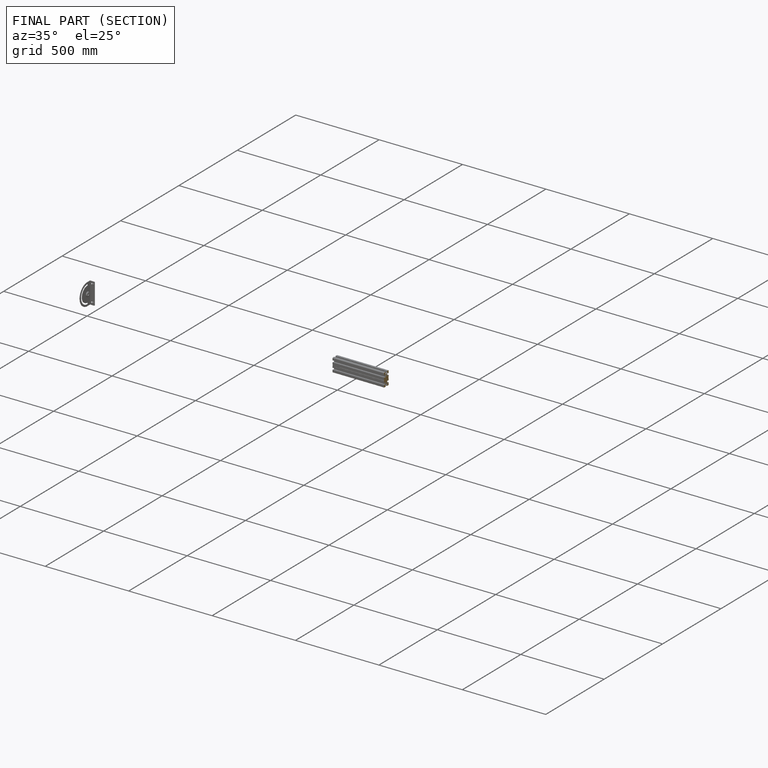
[diagram: finished part — half-section view (interior)]
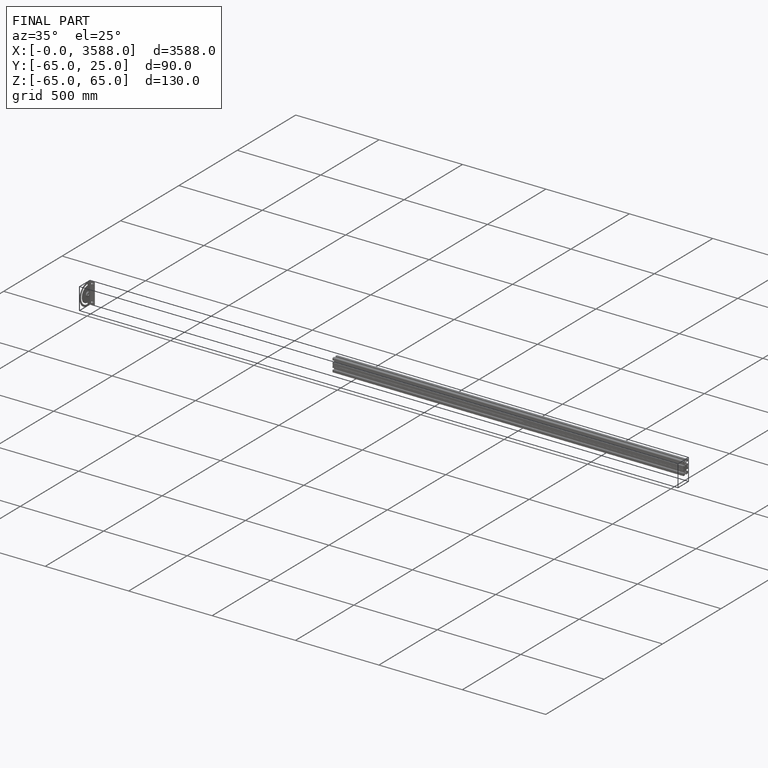
[diagram: finished part — iso view with bounding-box wireframe]
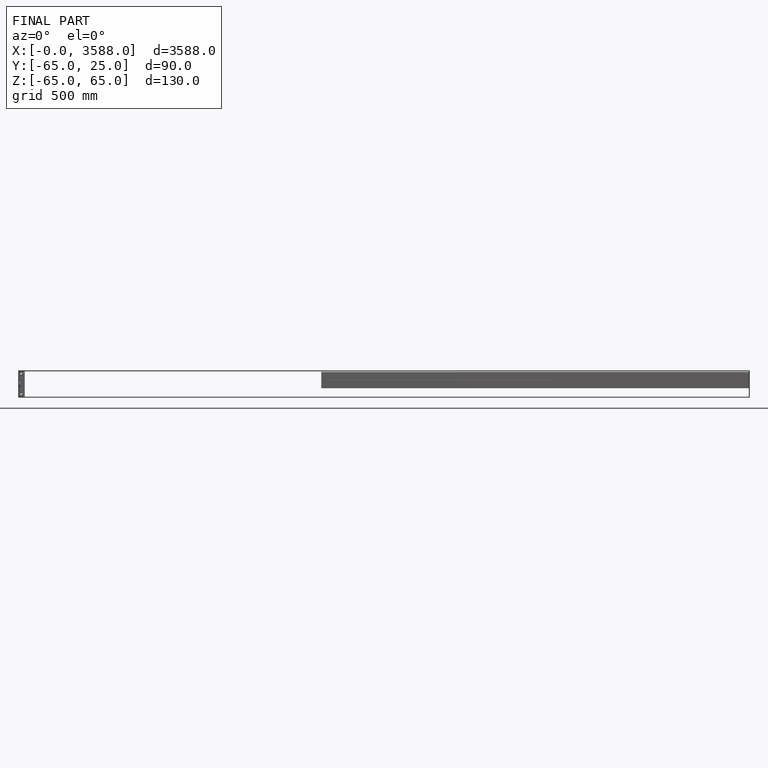
[diagram: finished part — front view with bounding-box wireframe]
